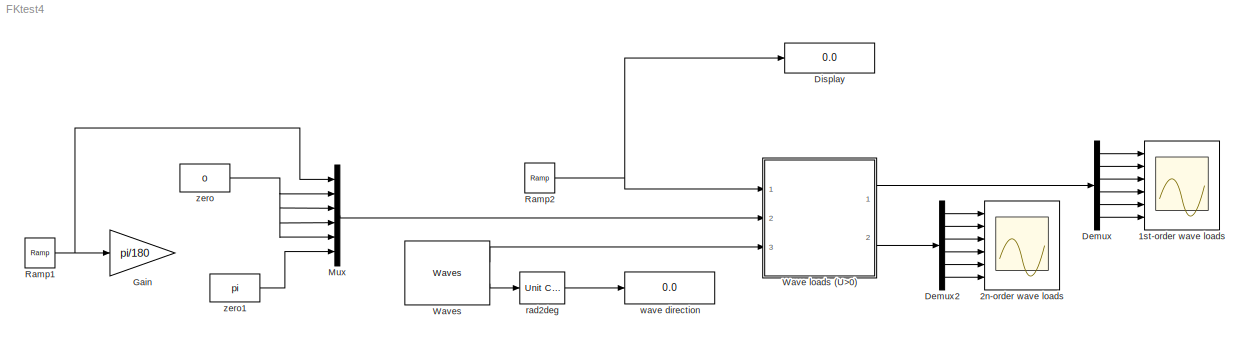
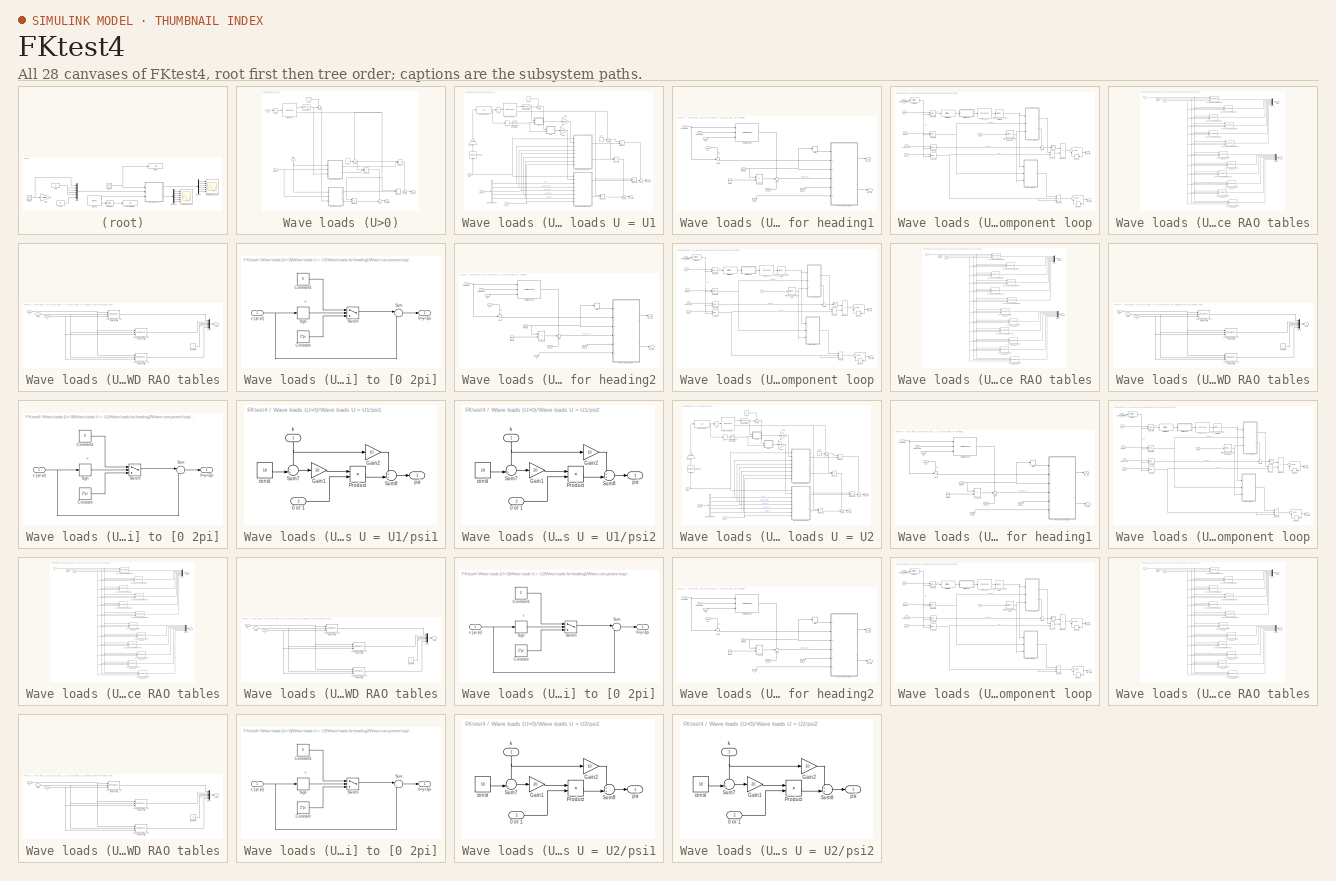
[diagram: thumbnail index - all 28 canvases of the model, root first then tree order]
MODEL FKtest4
KIND model
BLOCK [Scope] 1st-order wave loads 
  DataFormat = StructureWithTime
  Floating = off
  LimitDataPoints = off
  NumInputPorts = 6
  Ports = [6]
  SampleTime = 0
  TimeRange = 1200
  YMax = 5e+006~2.5e+007~7.5e+007~1e+008~1.25e+009~7e+008
  YMin = -5e+006~-2e+007~-7.5e+007~-1e+008~-1.25e+009~-7e+008
  ZoomMode = xonly
BLOCK [Scope] 2n-order wave loads
  DataFormat = StructureWithTime
  Floating = off
  LimitDataPoints = off
  NumInputPorts = 6
  Ports = [6]
  SampleTime = 0
  SaveName = ScopeData1
  TimeRange = 1200
  YMax = -10000~-450000~1~1~1~1.2e+007
  YMin = -65000~-515000~-1~-1~-1~5.5e+006
BLOCK [Demux] Demux
  Outputs = 6
  Ports = [1, 6]
BLOCK [Demux] Demux2
  Outputs = 6
  Ports = [1, 6]
BLOCK [Display] Display
  Decimation = 1
  Lockdown = off
  Ports = [1]
BLOCK [Gain] Gain
  Gain = pi/180
  OutDataTypeMode = Inherit via internal rule
  ParameterDataTypeMode = Inherit via internal rule
  SaturateOnIntegerOverflow = off
BLOCK [Mux] Mux
  DisplayOption = bar
  Inputs = 6
  Ports = [6, 1]
BLOCK [Reference] Ramp1  REF=simulink/Sources/Ramp
  FunctionWithSeparateData = off
  Ports = [0, 1]
  RTWMemSecDataConstants = Inherit from model
  RTWMemSecDataInternal = Inherit from model
  RTWMemSecDataParameters = Inherit from model
  RTWMemSecFuncExecute = Inherit from model
  RTWMemSecFuncInitTerm = Inherit from model
  ShowPortLabels = FromPortIcon
  SourceBlock = simulink/Sources/Ramp
  SourceType = Ramp
  SystemSampleTime = -1
  VectorParams1D = on
  X0 = 0
  slope = 1
  start = 0
BLOCK [Reference] Ramp2  REF=simulink/Sources/Ramp
  FunctionWithSeparateData = off
  Ports = [0, 1]
  RTWMemSecDataConstants = Inherit from model
  RTWMemSecDataInternal = Inherit from model
  RTWMemSecDataParameters = Inherit from model
  RTWMemSecFuncExecute = Inherit from model
  RTWMemSecFuncInitTerm = Inherit from model
  ShowPortLabels = FromPortIcon
  SourceBlock = simulink/Sources/Ramp
  SourceType = Ramp
  SystemSampleTime = -1
  VectorParams1D = on
  X0 = 0
  slope = 0.01
  start = 0
BLOCK [SubSystem] Wave loads (U>0)
  FunctionWithSeparateData = off
  MaskHideContents = off
  MinAlgLoopOccurrences = off
  Ports = [3, 2]
  RTWSystemCode = Auto
BLOCK [Abs] Wave loads (U>0)/Abs
BLOCK [DataTypeConversion] Wave loads (U>0)/Conversion
  OutDataTypeMode = double
  RndMeth = Floor
  SaturateOnIntegerOverflow = off
BLOCK [PreLookup] Wave loads (U>0)/Prelookup
  BeginIndexSearchUsingPreviousIndexResult = on
  BreakpointsData = vessel.velocities
  IndexSearchMethod = Linear search
  Ports = [1, 2]
BLOCK [Product] Wave loads (U>0)/Product
  CollapseMode = All dimensions
  InputSameDT = off
  OutDataTypeMode = Inherit via internal rule
  Ports = [2, 1]
  SaturateOnIntegerOverflow = off
BLOCK [Product] Wave loads (U>0)/Product1
  CollapseMode = All dimensions
  InputSameDT = off
  OutDataTypeMode = Inherit via internal rule
  Ports = [2, 1]
  SaturateOnIntegerOverflow = off
BLOCK [Product] Wave loads (U>0)/Product2
  CollapseMode = All dimensions
  InputSameDT = off
  OutDataTypeMode = Inherit via internal rule
  Ports = [2, 1]
  SaturateOnIntegerOverflow = off
BLOCK [Product] Wave loads (U>0)/Product3
  CollapseMode = All dimensions
  InputSameDT = off
  OutDataTypeMode = Inherit via internal rule
  Ports = [2, 1]
  SaturateOnIntegerOverflow = off
BLOCK [Sum] Wave loads (U>0)/Sum1
  CollapseMode = All dimensions
  IconShape = round
  InputSameDT = off
  Inputs = ++|
  OutDataTypeMode = Inherit via internal rule
  Ports = [2, 1]
  SaturateOnIntegerOverflow = off
BLOCK [Sum] Wave loads (U>0)/Sum2
  CollapseMode = All dimensions
  IconShape = round
  InputSameDT = off
  Inputs = ++|
  OutDataTypeMode = Inherit via internal rule
  Ports = [2, 1]
  SaturateOnIntegerOverflow = off
BLOCK [Sum] Wave loads (U>0)/Sum4
  CollapseMode = All dimensions
  IconShape = round
  InputSameDT = off
  Inputs = -+|
  OutDataTypeMode = Inherit via internal rule
  Ports = [2, 1]
  SaturateOnIntegerOverflow = off
BLOCK [Sum] Wave loads (U>0)/Sum5
  CollapseMode = All dimensions
  IconShape = round
  InputSameDT = off
  Inputs = ++|
  OutDataTypeMode = Inherit via internal rule
  Ports = [2, 1]
  SaturateOnIntegerOverflow = off
BLOCK [Inport] Wave loads (U>0)/U
  IconDisplay = Port number
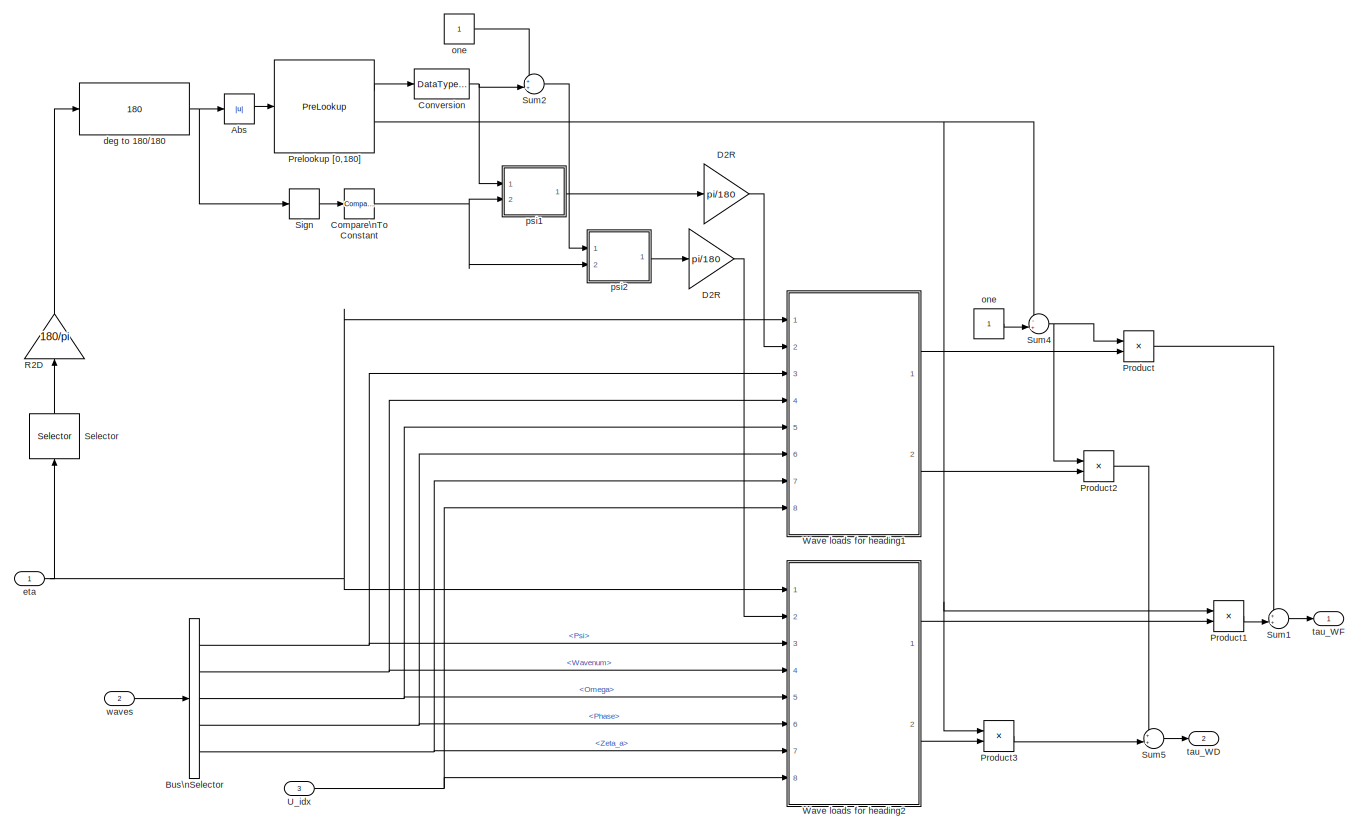
[diagram: Wave loads (U>0)/Wave loads U = U1 - part 1/1, most of the canvas]
BLOCK [SubSystem] Wave loads (U>0)/Wave loads U = U1
  FunctionWithSeparateData = off
  MaskHideContents = off
  MinAlgLoopOccurrences = off
  Ports = [3, 2]
  RTWSystemCode = Auto
BLOCK [Abs] Wave loads (U>0)/Wave loads U = U1/Abs
BLOCK [BusSelector] Wave loads (U>0)/Wave loads U = U1/Bus\nSelector
  OutputSignals = Psi,Wavenum,Omega,Phase,Zeta_a
  Ports = [1, 5]
BLOCK [Reference] Wave loads (U>0)/Wave loads U = U1/Compare\nTo Constant  REF=simulink/Logic and Bit\nOperations/Compare\nTo Constant
  FunctionWithSeparateData = off
  LogicOutDataTypeMode = uint8
  Ports = [1, 1]
  RTWMemSecDataConstants = Inherit from model
  RTWMemSecDataInternal = Inherit from model
  RTWMemSecDataParameters = Inherit from model
  RTWMemSecFuncExecute = Inherit from model
  RTWMemSecFuncInitTerm = Inherit from model
  ShowPortLabels = FromPortIcon
  SourceBlock = simulink/Logic and Bit\nOperations/Compare\nTo Constant
  SourceType = Compare To Constant
  SystemSampleTime = -1
  ZeroCross = off
  const = 0
  relop = <
BLOCK [DataTypeConversion] Wave loads (U>0)/Wave loads U = U1/Conversion
  OutDataTypeMode = double
  RndMeth = Floor
  SaturateOnIntegerOverflow = off
BLOCK [Gain] Wave loads (U>0)/Wave loads U = U1/D2R
  Gain = pi/180
  OutDataTypeMode = Inherit via internal rule
  ParameterDataTypeMode = Inherit via internal rule
  SaturateOnIntegerOverflow = off
BLOCK [Gain] Wave loads (U>0)/Wave loads U = U1/D2R 
  Gain = pi/180
  OutDataTypeMode = Inherit via internal rule
  ParameterDataTypeMode = Inherit via internal rule
  SaturateOnIntegerOverflow = off
BLOCK [PreLookup] Wave loads (U>0)/Wave loads U = U1/Prelookup [0,180]
  BeginIndexSearchUsingPreviousIndexResult = on
  BreakpointsData = [0:10:180]
  IndexSearchMethod = Evenly spaced points
  Ports = [1, 2]
BLOCK [Product] Wave loads (U>0)/Wave loads U = U1/Product
  CollapseMode = All dimensions
  InputSameDT = off
  OutDataTypeMode = Inherit via internal rule
  Ports = [2, 1]
  SaturateOnIntegerOverflow = off
BLOCK [Product] Wave loads (U>0)/Wave loads U = U1/Product1
  CollapseMode = All dimensions
  InputSameDT = off
  OutDataTypeMode = Inherit via internal rule
  Ports = [2, 1]
  SaturateOnIntegerOverflow = off
BLOCK [Product] Wave loads (U>0)/Wave loads U = U1/Product2
  CollapseMode = All dimensions
  InputSameDT = off
  OutDataTypeMode = Inherit via internal rule
  Ports = [2, 1]
  SaturateOnIntegerOverflow = off
BLOCK [Product] Wave loads (U>0)/Wave loads U = U1/Product3
  CollapseMode = All dimensions
  InputSameDT = off
  OutDataTypeMode = Inherit via internal rule
  Ports = [2, 1]
  SaturateOnIntegerOverflow = off
BLOCK [Gain] Wave loads (U>0)/Wave loads U = U1/R2D
  Gain = 180/pi
  OutDataTypeMode = Inherit via internal rule
  ParameterDataTypeMode = Inherit via internal rule
  SaturateOnIntegerOverflow = off
BLOCK [Selector] Wave loads (U>0)/Wave loads U = U1/Selector
  IndexOptions = Index vector (dialog)
  Indices = [6]
  InputPortWidth = 6
  OutputSizes = 1
  Ports = [1, 1]
BLOCK [Signum] Wave loads (U>0)/Wave loads U = U1/Sign
BLOCK [Sum] Wave loads (U>0)/Wave loads U = U1/Sum1
  CollapseMode = All dimensions
  IconShape = round
  InputSameDT = off
  Inputs = ++|
  OutDataTypeMode = Inherit via internal rule
  Ports = [2, 1]
  SaturateOnIntegerOverflow = off
BLOCK [Sum] Wave loads (U>0)/Wave loads U = U1/Sum2
  CollapseMode = All dimensions
  IconShape = round
  InputSameDT = off
  Inputs = ++|
  OutDataTypeMode = Inherit via internal rule
  Ports = [2, 1]
  SaturateOnIntegerOverflow = off
BLOCK [Sum] Wave loads (U>0)/Wave loads U = U1/Sum4
  CollapseMode = All dimensions
  IconShape = round
  InputSameDT = off
  Inputs = -+|
  OutDataTypeMode = Inherit via internal rule
  Ports = [2, 1]
  SaturateOnIntegerOverflow = off
BLOCK [Sum] Wave loads (U>0)/Wave loads U = U1/Sum5
  CollapseMode = All dimensions
  IconShape = round
  InputSameDT = off
  Inputs = ++|
  OutDataTypeMode = Inherit via internal rule
  Ports = [2, 1]
  SaturateOnIntegerOverflow = off
BLOCK [Inport] Wave loads (U>0)/Wave loads U = U1/U_idx
  IconDisplay = Port number
  Port = 3
BLOCK [SubSystem] Wave loads (U>0)/Wave loads U = U1/Wave loads for heading1
  AncestorBlock = marine_gnc/Models/Environmental\nLoads/Force RAO
  FunctionWithSeparateData = off
  MaskCallbackString = |||||||
  MaskDescription = Calculate the 6 degrees-of-freedom (DOF) wave-frequency excitation forces tau_WF for a vessel from its Force Response Amplitude Operators (Force RAOs) and a sea state defined by a set of harmonic waves. The block takes the \"Waves\" bus from the MSS Waves block as input, as well as the vessel low-frequency (LF) motion in terms of the generalized position vector eta and mean surge velocity U. See h...<+77ch>
  MaskEnableString = on,on,on,on,on,on,on,on
  MaskHelp = <b>Part of the Marine Systems Simulator: MSS</b><br>\n<br>\nCalculate the 6 degrees-of-freedom (DOF) wave-frequency excitation forces tau_WF \nfor a vessel from its Force Response Amplitude Operators (Force RAOs) and a sea \nstate defined by a set of harmonic waves. The block takes the &quot;Waves&quot; bus from \nthe MSS Waves block as input, as well as the vessel low-frequency (LF) motion in \nt...<+6973ch>
  MaskHideContents = off
  MaskIconFrame = on
  MaskIconOpaque = on
  MaskIconRotate = none
  MaskIconUnits = autoscale
  MaskInitialization = % use only nonzero increasing velocities, if zero element add eps\nNvel = length(RAO_Vel);\n\nif Nvel == 1\n    RAO_Vel = [0 1e10];   % use one data set for U=0 and one dummy set for u=1e10\n    Nvel = 2;\nend\n\nfor dof = 1:6\n    TempFA{dof}  = ForceRAO_Amp{dof}(:,:,1:Nvel);\n    TempFP{dof}  = ForceRAO_Phase{dof}(:,:,1:Nvel);\nend\n\nfor dof = 1:3\n    TempWA{dof}  = WD_Amp{dof}(:,:,1:Nvel);\ne...<+1426ch>  <repeated x4 — deduplicated; at blocks: Wave loads for heading1, Wave loads for heading2>
  MaskPromptString = Vector of frequencies ForceRAO_Freq (rad/s)|Vector of frequencies WD_Freq (rad/s)|Vector of velocities RAO_Vel (m/s)|6DOF Cell array with tables of Amplitudes ForceRAO_Amp|6DOF Cell array with tables of Phases ForceRAO_Phase (rad)|6DOF Cell array with tables of Amplitudes WD_Amp|Add asymptotic RAO values for omega = 0|Add asymptotic RAO values for omega = inf  <repeated x4 — deduplicated; at blocks: Wave loads for heading1, Wave loads for heading2>
  MaskStyleString = edit,edit,edit,edit,edit,edit,checkbox,checkbox
  MaskTabNameString = ,,,,,,,
  MaskToolTipString = on,on,on,on,on,on,on,on
  MaskTunableValueString = on,on,on,on,on,on,on,on
  MaskType = Force RAO
  MaskValueString = vessel.forceRAO.w|vessel.driftfrc.w|vessel.velocities|vessel.forceRAO.amp|vessel.forceRAO.phase|vessel.driftfrc.amp|on|on
  MaskVarAliasString = ,,,,,,,
  MaskVariables = ForceRAO_Freq=@1;WD_Freq=@2;RAO_Vel=@3;ForceRAO_Amp=@4;ForceRAO_Phase=@5;WD_Amp=@6;RAO_add_omega_0=@7;RAO_add_omega_inf=@8;
  MaskVisibilityString = on,on,on,on,on,on,on,on
  MinAlgLoopOccurrences = off
  Ports = [8, 2]
  RTWSystemCode = Auto
BLOCK [Clock] Wave loads (U>0)/Wave loads U = U1/Wave loads for heading1/Clock
  Decimation = 10
BLOCK [Inport] Wave loads (U>0)/Wave loads U = U1/Wave loads for heading1/Omega
  IconDisplay = Port number
  Port = 5
BLOCK [Inport] Wave loads (U>0)/Wave loads U = U1/Wave loads for heading1/Phase
  IconDisplay = Port number
  Port = 6
BLOCK [Reference] Wave loads (U>0)/Wave loads U = U1/Wave loads for heading1/Position phase  REF=marine_gnc/Models/Environmental\nLoads/Utilities/Position phase  (lib defined in mdl_10d96c221ba8, mdl_45f1105420c6)
  FunctionWithSeparateData = off
  Ports = [3, 1]
  RTWMemSecDataConstants = Inherit from model
  RTWMemSecDataInternal = Inherit from model
  RTWMemSecDataParameters = Inherit from model
  RTWMemSecFuncExecute = Inherit from model
  RTWMemSecFuncInitTerm = Inherit from model
  ShowPortLabels = FromPortIcon
  SourceBlock = marine_gnc/Models/Environmental\nLoads/Utilities/Position phase
  SourceType = Position Phase
  SystemSampleTime = -1
BLOCK [Product] Wave loads (U>0)/Wave loads U = U1/Wave loads for heading1/Product1
  CollapseMode = All dimensions
  InputSameDT = off
  Inputs = **
  Ports = [2, 1]
  RndMeth = Floor
BLOCK [Sum] Wave loads (U>0)/Wave loads U = U1/Wave loads for heading1/Sum
  CollapseMode = All dimensions
  IconShape = round
  InputSameDT = off
  Inputs = -++
  OutDataTypeMode = Inherit via internal rule
  Ports = [3, 1]
BLOCK [Sum] Wave loads (U>0)/Wave loads U = U1/Wave loads for heading1/Sum1
  CollapseMode = All dimensions
  IconShape = round
  InputSameDT = off
  Inputs = -+|
  OutDataTypeMode = Inherit via internal rule
  Ports = [2, 1]
  SaturateOnIntegerOverflow = off
BLOCK [Inport] Wave loads (U>0)/Wave loads U = U1/Wave loads for heading1/U_idx
  IconDisplay = Port number
  Port = 8
BLOCK [SubSystem] Wave loads (U>0)/Wave loads U = U1/Wave loads for heading1/Wave component loop
  FunctionWithSeparateData = off
  MaskHideContents = off
  MinAlgLoopOccurrences = off
  Ports = [6, 2]
  RTWSystemCode = Auto
  TreatAsAtomicUnit = on
BLOCK [Trigonometry] Wave loads (U>0)/Wave loads U = U1/Wave loads for heading1/Wave component loop/                
  Ports = [1, 1]
BLOCK [Reference] Wave loads (U>0)/Wave loads U = U1/Wave loads for heading1/Wave component loop/Direct Lookup\nTable (n-D) Beta  REF=simulink/Lookup\nTables/Direct Lookup\nTable (n-D)
  Ports = [1, 1]
  SourceBlock = simulink/Lookup\nTables/Direct Lookup\nTable (n-D)
  SourceType = LookupNDDirect
  clipFlag = Warning
  explicitNumDims = 1
  maskTabDims = 1
  mxTable = vessel.headings
  outDims = Element
  samptime = -1
  tabIsInput = off
BLOCK [Reference] Wave loads (U>0)/Wave loads U = U1/Wave loads for heading1/Wave component loop/Direct Lookup\nTable (n-D) Velocity  REF=simulink/Lookup\nTables/Direct Lookup\nTable (n-D)
  Ports = [1, 1]
  SourceBlock = simulink/Lookup\nTables/Direct Lookup\nTable (n-D)
  SourceType = LookupNDDirect
  clipFlag = Warning
  explicitNumDims = 1
  maskTabDims = 1
  mxTable = RAO_Vel
  outDims = Element
  samptime = -1
  tabIsInput = off
BLOCK [ForIterator] Wave loads (U>0)/Wave loads U = U1/Wave loads for heading1/Wave component loop/For Iterator
  IterationSource = external
  IterationVariableDataType = double
  Ports = [1, 1]
  ResetStates = reset
BLOCK [SubSystem] Wave loads (U>0)/Wave loads U = U1/Wave loads for heading1/Wave component loop/Force RAO tables
  AncestorBlock = marine_gnc/Models/Environmental\nLoads/Utilities/RAO tables
  FunctionWithSeparateData = off
  MaskDescription = Perform 3D table lookup in 6DOF RAO amplitudes and phases, using the relative wave heading psi_r, wave frequency omega and vessel velocity vel as inputs. See documentation of the Motion RAO block or Force RAO block for details. A warning is issued if the input is outside the range spanned by the RAOs.\n\nAuthor: Oyvind N. Smogeli and Thor I. Fossen, 2005-05-03  <repeated x4 — deduplicated; at blocks: Force RAO tables, WD RAO tables>
  MaskHideContents = off
  MaskIconFrame = on
  MaskIconOpaque = on
  MaskIconRotate = none
  MaskIconUnits = autoscale
  MaskType = RAO table lookup
  MinAlgLoopOccurrences = off
  Ports = [3, 2]
  RTWSystemCode = Auto
BLOCK [Reference] Wave loads (U>0)/Wave loads U = U1/Wave loads for heading1/Wave component loop/Force RAO tables/Lookup\nTable (n-D) Amp1  REF=simulink/Lookup\nTables/Lookup\nTable (n-D)
  Ports = [3, 1]
  SourceBlock = simulink/Lookup\nTables/Lookup\nTable (n-D)
  SourceType = LookupNDInterp
  bp1 = ForceRAO_Freq
  bp2 = vessel.headings
  bp3 = RAO_Vel
  bp4 = [1:3]
  bpcell = { [1:3], [1:3] }
  cacheBpFlag = on
  explicitNumDims = 2
  extrapMethod = None - Clip
  interpMethod = Linear
  numDimsPopupSelect = 3
  rangeErrorMode = Warning
  searchMode = Linear Search
  tableData = ForceRAO_Amp{1}
  vectorInputFlag = off
BLOCK [Reference] Wave loads (U>0)/Wave loads U = U1/Wave loads for heading1/Wave component loop/Force RAO tables/Lookup\nTable (n-D) Amp2  REF=simulink/Lookup\nTables/Lookup\nTable (n-D)
  Ports = [3, 1]
  SourceBlock = simulink/Lookup\nTables/Lookup\nTable (n-D)
  SourceType = LookupNDInterp
  bp1 = ForceRAO_Freq
  bp2 = vessel.headings
  bp3 = RAO_Vel
  bp4 = [1:3]
  bpcell = { [1:3], [1:3] }
  cacheBpFlag = on
  explicitNumDims = 2
  extrapMethod = None - Clip
  interpMethod = Linear
  numDimsPopupSelect = 3
  rangeErrorMode = Warning
  searchMode = Linear Search
  tableData = ForceRAO_Amp{2}
  vectorInputFlag = off
BLOCK [Reference] Wave loads (U>0)/Wave loads U = U1/Wave loads for heading1/Wave component loop/Force RAO tables/Lookup\nTable (n-D) Amp3  REF=simulink/Lookup\nTables/Lookup\nTable (n-D)
  Ports = [3, 1]
  SourceBlock = simulink/Lookup\nTables/Lookup\nTable (n-D)
  SourceType = LookupNDInterp
  bp1 = ForceRAO_Freq
  bp2 = vessel.headings
  bp3 = RAO_Vel
  bp4 = [1:3]
  bpcell = { [1:3], [1:3] }
  cacheBpFlag = on
  explicitNumDims = 2
  extrapMethod = None - Clip
  interpMethod = Linear
  numDimsPopupSelect = 3
  rangeErrorMode = Warning
  searchMode = Linear Search
  tableData = ForceRAO_Amp{3}
  vectorInputFlag = off
BLOCK [Reference] Wave loads (U>0)/Wave loads U = U1/Wave loads for heading1/Wave component loop/Force RAO tables/Lookup\nTable (n-D) Amp4  REF=simulink/Lookup\nTables/Lookup\nTable (n-D)
  Ports = [3, 1]
  SourceBlock = simulink/Lookup\nTables/Lookup\nTable (n-D)
  SourceType = LookupNDInterp
  bp1 = ForceRAO_Freq
  bp2 = vessel.headings
  bp3 = RAO_Vel
  bp4 = [1:3]
  bpcell = { [1:3], [1:3] }
  cacheBpFlag = on
  explicitNumDims = 2
  extrapMethod = None - Clip
  interpMethod = Linear
  numDimsPopupSelect = 3
  rangeErrorMode = Warning
  searchMode = Linear Search
  tableData = ForceRAO_Amp{4}
  vectorInputFlag = off
BLOCK [Reference] Wave loads (U>0)/Wave loads U = U1/Wave loads for heading1/Wave component loop/Force RAO tables/Lookup\nTable (n-D) Amp5  REF=simulink/Lookup\nTables/Lookup\nTable (n-D)
  Ports = [3, 1]
  SourceBlock = simulink/Lookup\nTables/Lookup\nTable (n-D)
  SourceType = LookupNDInterp
  bp1 = ForceRAO_Freq
  bp2 = vessel.headings
  bp3 = RAO_Vel
  bp4 = [1:3]
  bpcell = { [1:3], [1:3] }
  cacheBpFlag = on
  explicitNumDims = 2
  extrapMethod = None - Clip
  interpMethod = Linear
  numDimsPopupSelect = 3
  rangeErrorMode = Warning
  searchMode = Linear Search
  tableData = ForceRAO_Amp{5}
  vectorInputFlag = off
BLOCK [Reference] Wave loads (U>0)/Wave loads U = U1/Wave loads for heading1/Wave component loop/Force RAO tables/Lookup\nTable (n-D) Amp6  REF=simulink/Lookup\nTables/Lookup\nTable (n-D)
  Ports = [3, 1]
  SourceBlock = simulink/Lookup\nTables/Lookup\nTable (n-D)
  SourceType = LookupNDInterp
  bp1 = ForceRAO_Freq
  bp2 = vessel.headings
  bp3 = RAO_Vel
  bp4 = [1:3]
  bpcell = { [1:3], [1:3] }
  cacheBpFlag = on
  explicitNumDims = 2
  extrapMethod = None - Clip
  interpMethod = Linear
  numDimsPopupSelect = 3
  rangeErrorMode = Warning
  searchMode = Linear Search
  tableData = ForceRAO_Amp{6}
  vectorInputFlag = off
BLOCK [Reference] Wave loads (U>0)/Wave loads U = U1/Wave loads for heading1/Wave component loop/Force RAO tables/Lookup\nTable (n-D) Phase  REF=simulink/Lookup\nTables/Lookup\nTable (n-D)
  Ports = [3, 1]
  SourceBlock = simulink/Lookup\nTables/Lookup\nTable (n-D)
  SourceType = LookupNDInterp
  bp1 = ForceRAO_Freq
  bp2 = vessel.headings
  bp3 = RAO_Vel
  bp4 = [1:3]
  bpcell = { [1:3], [1:3] }
  cacheBpFlag = on
  explicitNumDims = 2
  extrapMethod = None - Clip
  interpMethod = Linear
  numDimsPopupSelect = 3
  rangeErrorMode = Warning
  searchMode = Linear Search
  tableData = ForceRAO_Phase{3}
  vectorInputFlag = off
BLOCK [Reference] Wave loads (U>0)/Wave loads U = U1/Wave loads for heading1/Wave component loop/Force RAO tables/Lookup\nTable (n-D) Phase1  REF=simulink/Lookup\nTables/Lookup\nTable (n-D)
  Ports = [3, 1]
  SourceBlock = simulink/Lookup\nTables/Lookup\nTable (n-D)
  SourceType = LookupNDInterp
  bp1 = ForceRAO_Freq
  bp2 = vessel.headings
  bp3 = RAO_Vel
  bp4 = [1:3]
  bpcell = { [1:3], [1:3] }
  cacheBpFlag = on
  explicitNumDims = 2
  extrapMethod = None - Clip
  interpMethod = Linear
  numDimsPopupSelect = 3
  rangeErrorMode = Warning
  searchMode = Linear Search
  tableData = ForceRAO_Phase{1}
  vectorInputFlag = off
BLOCK [Reference] Wave loads (U>0)/Wave loads U = U1/Wave loads for heading1/Wave component loop/Force RAO tables/Lookup\nTable (n-D) Phase2  REF=simulink/Lookup\nTables/Lookup\nTable (n-D)
  Ports = [3, 1]
  SourceBlock = simulink/Lookup\nTables/Lookup\nTable (n-D)
  SourceType = LookupNDInterp
  bp1 = ForceRAO_Freq
  bp2 = vessel.headings
  bp3 = RAO_Vel
  bp4 = [1:3]
  bpcell = { [1:3], [1:3] }
  cacheBpFlag = on
  explicitNumDims = 2
  extrapMethod = None - Clip
  interpMethod = Linear
  numDimsPopupSelect = 3
  rangeErrorMode = Warning
  searchMode = Linear Search
  tableData = ForceRAO_Phase{2}
  vectorInputFlag = off
BLOCK [Reference] Wave loads (U>0)/Wave loads U = U1/Wave loads for heading1/Wave component loop/Force RAO tables/Lookup\nTable (n-D) Phase4  REF=simulink/Lookup\nTables/Lookup\nTable (n-D)
  Ports = [3, 1]
  SourceBlock = simulink/Lookup\nTables/Lookup\nTable (n-D)
  SourceType = LookupNDInterp
  bp1 = ForceRAO_Freq
  bp2 = vessel.headings
  bp3 = RAO_Vel
  bp4 = [1:3]
  bpcell = { [1:3], [1:3] }
  cacheBpFlag = on
  explicitNumDims = 2
  extrapMethod = None - Clip
  interpMethod = Linear
  numDimsPopupSelect = 3
  rangeErrorMode = Warning
  searchMode = Linear Search
  tableData = ForceRAO_Phase{4}
  vectorInputFlag = off
BLOCK [Reference] Wave loads (U>0)/Wave loads U = U1/Wave loads for heading1/Wave component loop/Force RAO tables/Lookup\nTable (n-D) Phase5  REF=simulink/Lookup\nTables/Lookup\nTable (n-D)
  Ports = [3, 1]
  SourceBlock = simulink/Lookup\nTables/Lookup\nTable (n-D)
  SourceType = LookupNDInterp
  bp1 = ForceRAO_Freq
  bp2 = vessel.headings
  bp3 = RAO_Vel
  bp4 = [1:3]
  bpcell = { [1:3], [1:3] }
  cacheBpFlag = on
  explicitNumDims = 2
  extrapMethod = None - Clip
  interpMethod = Linear
  numDimsPopupSelect = 3
  rangeErrorMode = Warning
  searchMode = Linear Search
  tableData = ForceRAO_Phase{5}
  vectorInputFlag = off
BLOCK [Reference] Wave loads (U>0)/Wave loads U = U1/Wave loads for heading1/Wave component loop/Force RAO tables/Lookup\nTable (n-D) Phase6  REF=simulink/Lookup\nTables/Lookup\nTable (n-D)
  Ports = [3, 1]
  SourceBlock = simulink/Lookup\nTables/Lookup\nTable (n-D)
  SourceType = LookupNDInterp
  bp1 = ForceRAO_Freq
  bp2 = vessel.headings
  bp3 = RAO_Vel
  bp4 = [1:3]
  bpcell = { [1:3], [1:3] }
  cacheBpFlag = on
  explicitNumDims = 2
  extrapMethod = None - Clip
  interpMethod = Linear
  numDimsPopupSelect = 3
  rangeErrorMode = Warning
  searchMode = Linear Search
  tableData = ForceRAO_Phase{6}
  vectorInputFlag = off
BLOCK [Mux] Wave loads (U>0)/Wave loads U = U1/Wave loads for heading1/Wave component loop/Force RAO tables/Mux1
  DisplayOption = bar
  Inputs = 6
  Ports = [6, 1]
BLOCK [Mux] Wave loads (U>0)/Wave loads U = U1/Wave loads for heading1/Wave component loop/Force RAO tables/Mux2
  DisplayOption = bar
  Inputs = 6
  Ports = [6, 1]
BLOCK [Inport] Wave loads (U>0)/Wave loads U = U1/Wave loads for heading1/Wave component loop/Force RAO tables/U
  IconDisplay = Port number
  Port = 3
BLOCK [Outport] Wave loads (U>0)/Wave loads U = U1/Wave loads for heading1/Wave component loop/Force RAO tables/amp
  BusOutputAsStruct = off
  IconDisplay = Port number
BLOCK [Inport] Wave loads (U>0)/Wave loads U = U1/Wave loads for heading1/Wave component loop/Force RAO tables/beta
  IconDisplay = Port number
BLOCK [Outport] Wave loads (U>0)/Wave loads U = U1/Wave loads for heading1/Wave component loop/Force RAO tables/phase
  BusOutputAsStruct = off
  IconDisplay = Port number
  Port = 2
BLOCK [Inport] Wave loads (U>0)/Wave loads U = U1/Wave loads for heading1/Wave component loop/Force RAO tables/w
  IconDisplay = Port number
  Port = 2
BLOCK [Memory] Wave loads (U>0)/Wave loads U = U1/Wave loads for heading1/Wave component loop/Memory1
  InheritSampleTime = on
  X0 = [0 0 0 0 0 0]'
BLOCK [Memory] Wave loads (U>0)/Wave loads U = U1/Wave loads for heading1/Wave component loop/Memory2
  InheritSampleTime = on
  X0 = [0 0 0 0 0 0]'
BLOCK [Inport] Wave loads (U>0)/Wave loads U = U1/Wave loads for heading1/Wave component loop/Omega
  IconDisplay = Port number
  Port = 3
BLOCK [Inport] Wave loads (U>0)/Wave loads U = U1/Wave loads for heading1/Wave component loop/Phase_tot
  IconDisplay = Port number
  Port = 4
BLOCK [PreLookup] Wave loads (U>0)/Wave loads U = U1/Wave loads for heading1/Wave component loop/Prelookup1
  BeginIndexSearchUsingPreviousIndexResult = on
  BreakpointsData = vessel.headings
  IndexSearchMethod = Evenly spaced points
  OutputOnlyTheIndex = on
  Ports = [1, 1]
BLOCK [Product] Wave loads (U>0)/Wave loads U = U1/Wave loads for heading1/Wave component loop/Product1
  CollapseMode = All dimensions
  InputSameDT = off
  Ports = [2, 1]
  RndMeth = Floor
BLOCK [Product] Wave loads (U>0)/Wave loads U = U1/Wave loads for heading1/Wave component loop/Product3
  CollapseMode = All dimensions
  InputSameDT = off
  Inputs = 3
  Ports = [3, 1]
  RndMeth = Floor
BLOCK [Product] Wave loads (U>0)/Wave loads U = U1/Wave loads for heading1/Wave component loop/Product4
  CollapseMode = All dimensions
  InputSameDT = off
  Ports = [2, 1]
  RndMeth = Floor
BLOCK [Inport] Wave loads (U>0)/Wave loads U = U1/Wave loads for heading1/Wave component loop/Psi_r
  IconDisplay = Port number
  Port = 2
BLOCK [Selector] Wave loads (U>0)/Wave loads U = U1/Wave loads for heading1/Wave component loop/Selector2
  IndexOptions = Index vector (port)
  Indices = [1 3]
  OutputSizes = 1
  Ports = [2, 1]
BLOCK [Selector] Wave loads (U>0)/Wave loads U = U1/Wave loads for heading1/Wave component loop/Selector3
  IndexOptions = Index vector (port)
  Indices = [1 3]
  OutputSizes = 1
  Ports = [2, 1]
BLOCK [Selector] Wave loads (U>0)/Wave loads U = U1/Wave loads for heading1/Wave component loop/Selector4
  IndexOptions = Index vector (port)
  Indices = [1 3]
  OutputSizes = 1
  Ports = [2, 1]
BLOCK [Selector] Wave loads (U>0)/Wave loads U = U1/Wave loads for heading1/Wave component loop/Selector5
  IndexOptions = Index vector (port)
  Indices = [1 3]
  OutputSizes = 1
  Ports = [2, 1]
BLOCK [Sum] Wave loads (U>0)/Wave loads U = U1/Wave loads for heading1/Wave component loop/Sum1
  CollapseMode = All dimensions
  IconShape = round
  InputSameDT = off
  Inputs = ++|
  OutDataTypeMode = Inherit via internal rule
  Ports = [2, 1]
BLOCK [Sum] Wave loads (U>0)/Wave loads U = U1/Wave loads for heading1/Wave component loop/Sum4
  CollapseMode = All dimensions
  IconShape = round
  InputSameDT = off
  Inputs = ++|
  OutDataTypeMode = Inherit via internal rule
  Ports = [2, 1]
BLOCK [Sum] Wave loads (U>0)/Wave loads U = U1/Wave loads for heading1/Wave component loop/Sum5
  CollapseMode = All dimensions
  IconShape = round
  InputSameDT = off
  Inputs = ++|
  OutDataTypeMode = Inherit via internal rule
  Ports = [2, 1]
BLOCK [Inport] Wave loads (U>0)/Wave loads U = U1/Wave loads for heading1/Wave component loop/U_idx
  IconDisplay = Port number
  Port = 6
BLOCK [SubSystem] Wave loads (U>0)/Wave loads U = U1/Wave loads for heading1/Wave component loop/WD RAO tables
  AncestorBlock = marine_gnc/Models/Environmental\nLoads/Utilities/RAO tables
  FunctionWithSeparateData = off
  MaskHideContents = off
  MaskIconFrame = on
  MaskIconOpaque = on
  MaskIconRotate = none
  MaskIconUnits = autoscale
  MaskType = RAO table lookup
  MinAlgLoopOccurrences = off
  Ports = [3, 1]
  RTWSystemCode = Auto
BLOCK [Constant] Wave loads (U>0)/Wave loads U = U1/Wave loads for heading1/Wave component loop/WD RAO tables/Constant
  Value = 0
BLOCK [Reference] Wave loads (U>0)/Wave loads U = U1/Wave loads for heading1/Wave component loop/WD RAO tables/Lookup\nTable (n-D) \nWavedrift 1  REF=simulink/Lookup\nTables/Lookup\nTable (n-D)
  Ports = [3, 1]
  SourceBlock = simulink/Lookup\nTables/Lookup\nTable (n-D)
  SourceType = LookupNDInterp
  bp1 = WD_Freq
  bp2 = vessel.headings
  bp3 = RAO_Vel
  bp4 = [1:3]
  bpcell = { [1:3], [1:3] }
  cacheBpFlag = on
  explicitNumDims = 2
  extrapMethod = None - Clip
  interpMethod = Linear
  numDimsPopupSelect = 3
  rangeErrorMode = Warning
  searchMode = Linear Search
  tableData = WD_Amp{1}
  vectorInputFlag = off
BLOCK [Reference] Wave loads (U>0)/Wave loads U = U1/Wave loads for heading1/Wave component loop/WD RAO tables/Lookup\nTable (n-D) \nWavedrift 2  REF=simulink/Lookup\nTables/Lookup\nTable (n-D)
  Ports = [3, 1]
  SourceBlock = simulink/Lookup\nTables/Lookup\nTable (n-D)
  SourceType = LookupNDInterp
  bp1 = WD_Freq
  bp2 = vessel.headings
  bp3 = RAO_Vel
  bp4 = [1:3]
  bpcell = { [1:3], [1:3] }
  cacheBpFlag = on
  explicitNumDims = 2
  extrapMethod = None - Clip
  interpMethod = Linear
  numDimsPopupSelect = 3
  rangeErrorMode = Warning
  searchMode = Linear Search
  tableData = WD_Amp{2}
  vectorInputFlag = off
BLOCK [Reference] Wave loads (U>0)/Wave loads U = U1/Wave loads for heading1/Wave component loop/WD RAO tables/Lookup\nTable (n-D) \nWavedrift 3  REF=simulink/Lookup\nTables/Lookup\nTable (n-D)
  Ports = [3, 1]
  SourceBlock = simulink/Lookup\nTables/Lookup\nTable (n-D)
  SourceType = LookupNDInterp
  bp1 = WD_Freq
  bp2 = vessel.headings
  bp3 = RAO_Vel
  bp4 = [1:3]
  bpcell = { [1:3], [1:3] }
  cacheBpFlag = on
  explicitNumDims = 2
  extrapMethod = None - Clip
  interpMethod = Linear
  numDimsPopupSelect = 3
  rangeErrorMode = Warning
  searchMode = Linear Search
  tableData = WD_Amp{3}
  vectorInputFlag = off
BLOCK [Mux] Wave loads (U>0)/Wave loads U = U1/Wave loads for heading1/Wave component loop/WD RAO tables/Mux1
  DisplayOption = bar
  Inputs = 6
  Ports = [6, 1]
BLOCK [Inport] Wave loads (U>0)/Wave loads U = U1/Wave loads for heading1/Wave component loop/WD RAO tables/U
  IconDisplay = Port number
  Port = 3
BLOCK [Outport] Wave loads (U>0)/Wave loads U = U1/Wave loads for heading1/Wave component loop/WD RAO tables/amp
  BusOutputAsStruct = off
  IconDisplay = Port number
BLOCK [Inport] Wave loads (U>0)/Wave loads U = U1/Wave loads for heading1/Wave component loop/WD RAO tables/beta
  IconDisplay = Port number
BLOCK [Inport] Wave loads (U>0)/Wave loads U = U1/Wave loads for heading1/Wave component loop/WD RAO tables/w
  IconDisplay = Port number
  Port = 2
BLOCK [Inport] Wave loads (U>0)/Wave loads U = U1/Wave loads for heading1/Wave component loop/Zeta_a
  IconDisplay = Port number
  Port = 5
BLOCK [Reference] Wave loads (U>0)/Wave loads U = U1/Wave loads for heading1/Wave component loop/[-inf inf] to [-pi pi]  REF=marine_gnc/Utilities/Math Operations/[-inf inf] to [-pi pi]  (lib defined in mdl_10d96c221ba8, mdl_45f1105420c6)
  FunctionWithSeparateData = off
  Ports = [1, 1]
  RTWMemSecDataConstants = Inherit from model
  RTWMemSecDataInternal = Inherit from model
  RTWMemSecDataParameters = Inherit from model
  RTWMemSecFuncExecute = Inherit from model
  RTWMemSecFuncInitTerm = Inherit from model
  ShowPortLabels = FromPortIcon
  SourceBlock = marine_gnc/Utilities/Math Operations/[-inf inf] to [-pi pi]
  SourceType = [-inf inf] to [-pi pi]
  SystemSampleTime = -1
BLOCK [SubSystem] Wave loads (U>0)/Wave loads U = U1/Wave loads for heading1/Wave component loop/[-pi pi] to [0 2pi]
  FunctionWithSeparateData = off
  MaskDescription = Converts an angle in rad to (-pi pi)
  MaskHideContents = off
  MaskIconFrame = on
  MaskIconOpaque = on
  MaskIconRotate = none
  MaskIconUnits = autoscale
  MaskType = [-inf inf] to [-pi pi]
  MinAlgLoopOccurrences = off
  Ports = [1, 1]
  RTWSystemCode = Auto
BLOCK [Outport] Wave loads (U>0)/Wave loads U = U1/Wave loads for heading1/Wave component loop/[-pi pi] to [0 2pi]/0<y<2pi
  BusOutputAsStruct = off
  IconDisplay = Port number
BLOCK [Constant] Wave loads (U>0)/Wave loads U = U1/Wave loads for heading1/Wave component loop/[-pi pi] to [0 2pi]/Constant
  Value = 2*pi
BLOCK [Constant] Wave loads (U>0)/Wave loads U = U1/Wave loads for heading1/Wave component loop/[-pi pi] to [0 2pi]/Constant1
  Value = 0
BLOCK [Signum] Wave loads (U>0)/Wave loads U = U1/Wave loads for heading1/Wave component loop/[-pi pi] to [0 2pi]/Sign
BLOCK [Sum] Wave loads (U>0)/Wave loads U = U1/Wave loads for heading1/Wave component loop/[-pi pi] to [0 2pi]/Sum
  CollapseMode = All dimensions
  IconShape = round
  InputSameDT = off
  Inputs = |++
  OutDataTypeMode = Inherit via internal rule
  Ports = [2, 1]
BLOCK [Switch] Wave loads (U>0)/Wave loads U = U1/Wave loads for heading1/Wave component loop/[-pi pi] to [0 2pi]/Switch
  InputSameDT = off
  SaturateOnIntegerOverflow = off
BLOCK [Inport] Wave loads (U>0)/Wave loads U = U1/Wave loads for heading1/Wave component loop/[-pi pi] to [0 2pi]/x [-pi pi]
  IconDisplay = Port number
BLOCK [Inport] Wave loads (U>0)/Wave loads U = U1/Wave loads for heading1/Wave component loop/number of \niterations
  IconDisplay = Port number
BLOCK [Outport] Wave loads (U>0)/Wave loads U = U1/Wave loads for heading1/Wave component loop/tau_WD
  BusOutputAsStruct = off
  IconDisplay = Port number
  Port = 2
BLOCK [Outport] Wave loads (U>0)/Wave loads U = U1/Wave loads for heading1/Wave component loop/tau_WF
  BusOutputAsStruct = off
  IconDisplay = Port number
BLOCK [Width] Wave loads (U>0)/Wave loads U = U1/Wave loads for heading1/Width
  DataType = int32
BLOCK [Inport] Wave loads (U>0)/Wave loads U = U1/Wave loads for heading1/Zeta_a
  IconDisplay = Port number
  Port = 7
BLOCK [Inport] Wave loads (U>0)/Wave loads U = U1/Wave loads for heading1/eta
  IconDisplay = Port number
BLOCK [Inport] Wave loads (U>0)/Wave loads U = U1/Wave loads for heading1/psi
  IconDisplay = Port number
  Port = 2
BLOCK [Inport] Wave loads (U>0)/Wave loads U = U1/Wave loads for heading1/psi_wave
  IconDisplay = Port number
  Port = 3
BLOCK [Outport] Wave loads (U>0)/Wave loads U = U1/Wave loads for heading1/tau_WD
  BusOutputAsStruct = off
  IconDisplay = Port number
  Port = 2
BLOCK [Outport] Wave loads (U>0)/Wave loads U = U1/Wave loads for heading1/tau_WF
  BusOutputAsStruct = off
  IconDisplay = Port number
BLOCK [Inport] Wave loads (U>0)/Wave loads U = U1/Wave loads for heading1/wavenum
  IconDisplay = Port number
  Port = 4
BLOCK [SubSystem] Wave loads (U>0)/Wave loads U = U1/Wave loads for heading2
  AncestorBlock = marine_gnc/Models/Environmental\nLoads/Force RAO
  FunctionWithSeparateData = off
  MaskCallbackString = |||||||
  MaskDescription = Calculate the 6 degrees-of-freedom (DOF) wave-frequency excitation forces Tau_WF for a vessel from its Force Response Amplitude Operators (Force RAOs) and a sea state defined by a set of harmonic waves. The block takes the \"Waves\" bus from the MSS Waves block as input, as well as the vessel low-frequency (LF) motion in terms of the generalized position vector eta_LF and mean surge velocity U. Se...<+85ch>
  MaskEnableString = on,on,on,on,on,on,on,on
  MaskHelp = <b>Part of the Marine Systems Simulator: MSS</b><br>\n<br>\nCalculate the 6 degrees-of-freedom (DOF) wave-frequency excitation forces Tau_WF \nfor a vessel from its Force Response Amplitude Operators (Force RAOs) and a sea \nstate defined by a set of harmonic waves. The block takes the &quot;Waves&quot; bus from \nthe MSS Waves block as input, as well as the vessel low-frequency (LF) motion in \nt...<+6976ch>
  MaskHideContents = off
  MaskIconFrame = on
  MaskIconOpaque = on
  MaskIconRotate = none
  MaskIconUnits = autoscale
  MaskStyleString = edit,edit,edit,edit,edit,edit,checkbox,checkbox
  MaskTabNameString = ,,,,,,,
  MaskToolTipString = on,on,on,on,on,on,on,on
  MaskTunableValueString = on,on,on,on,on,on,on,on
  MaskType = Force RAO
  MaskValueString = vessel.forceRAO.w|vessel.driftfrc.w|vessel.velocities|vessel.forceRAO.amp|vessel.forceRAO.phase|vessel.driftfrc.amp|on|on
  MaskVarAliasString = ,,,,,,,
  MaskVariables = ForceRAO_Freq=@1;WD_Freq=@2;RAO_Vel=@3;ForceRAO_Amp=@4;ForceRAO_Phase=@5;WD_Amp=@6;RAO_add_omega_0=@7;RAO_add_omega_inf=@8;
  MaskVisibilityString = on,on,on,on,on,on,on,on
  MinAlgLoopOccurrences = off
  Ports = [8, 2]
  RTWSystemCode = Auto
BLOCK [Clock] Wave loads (U>0)/Wave loads U = U1/Wave loads for heading2/Clock
  Decimation = 10
BLOCK [Inport] Wave loads (U>0)/Wave loads U = U1/Wave loads for heading2/Omega
  IconDisplay = Port number
  Port = 5
BLOCK [Inport] Wave loads (U>0)/Wave loads U = U1/Wave loads for heading2/Phase
  IconDisplay = Port number
  Port = 6
BLOCK [Reference] Wave loads (U>0)/Wave loads U = U1/Wave loads for heading2/Position phase  REF=marine_gnc/Models/Environmental\nLoads/Utilities/Position phase  (lib defined in mdl_10d96c221ba8, mdl_45f1105420c6)
  FunctionWithSeparateData = off
  Ports = [3, 1]
  RTWMemSecDataConstants = Inherit from model
  RTWMemSecDataInternal = Inherit from model
  RTWMemSecDataParameters = Inherit from model
  RTWMemSecFuncExecute = Inherit from model
  RTWMemSecFuncInitTerm = Inherit from model
  ShowPortLabels = FromPortIcon
  SourceBlock = marine_gnc/Models/Environmental\nLoads/Utilities/Position phase
  SourceType = Position Phase
  SystemSampleTime = -1
BLOCK [Product] Wave loads (U>0)/Wave loads U = U1/Wave loads for heading2/Product1
  CollapseMode = All dimensions
  InputSameDT = off
  Inputs = **
  Ports = [2, 1]
  RndMeth = Floor
BLOCK [Sum] Wave loads (U>0)/Wave loads U = U1/Wave loads for heading2/Sum
  CollapseMode = All dimensions
  IconShape = round
  InputSameDT = off
  Inputs = -++
  OutDataTypeMode = Inherit via internal rule
  Ports = [3, 1]
BLOCK [Sum] Wave loads (U>0)/Wave loads U = U1/Wave loads for heading2/Sum1
  CollapseMode = All dimensions
  IconShape = round
  InputSameDT = off
  Inputs = -+|
  OutDataTypeMode = Inherit via internal rule
  Ports = [2, 1]
  SaturateOnIntegerOverflow = off
BLOCK [Inport] Wave loads (U>0)/Wave loads U = U1/Wave loads for heading2/U
  IconDisplay = Port number
  Port = 8
BLOCK [SubSystem] Wave loads (U>0)/Wave loads U = U1/Wave loads for heading2/Wave component loop
  FunctionWithSeparateData = off
  MaskHideContents = off
  MinAlgLoopOccurrences = off
  Ports = [6, 2]
  RTWSystemCode = Auto
  TreatAsAtomicUnit = on
BLOCK [Trigonometry] Wave loads (U>0)/Wave loads U = U1/Wave loads for heading2/Wave component loop/                
  Ports = [1, 1]
BLOCK [Reference] Wave loads (U>0)/Wave loads U = U1/Wave loads for heading2/Wave component loop/Direct Lookup\nTable (n-D)  REF=simulink/Lookup\nTables/Direct Lookup\nTable (n-D)
  Ports = [1, 1]
  SourceBlock = simulink/Lookup\nTables/Direct Lookup\nTable (n-D)
  SourceType = LookupNDDirect
  clipFlag = Warning
  explicitNumDims = 1
  maskTabDims = 1
  mxTable = vessel.headings
  outDims = Element
  samptime = -1
  tabIsInput = off
BLOCK [Reference] Wave loads (U>0)/Wave loads U = U1/Wave loads for heading2/Wave component loop/Direct Lookup\nTable (n-D)1  REF=simulink/Lookup\nTables/Direct Lookup\nTable (n-D)
  Ports = [1, 1]
  SourceBlock = simulink/Lookup\nTables/Direct Lookup\nTable (n-D)
  SourceType = LookupNDDirect
  clipFlag = Warning
  explicitNumDims = 1
  maskTabDims = 1
  mxTable = RAO_Vel
  outDims = Element
  samptime = -1
  tabIsInput = off
BLOCK [ForIterator] Wave loads (U>0)/Wave loads U = U1/Wave loads for heading2/Wave component loop/For Iterator
  IterationSource = external
  IterationVariableDataType = double
  Ports = [1, 1]
  ResetStates = reset
BLOCK [SubSystem] Wave loads (U>0)/Wave loads U = U1/Wave loads for heading2/Wave component loop/Force RAO tables
  AncestorBlock = marine_gnc/Models/Environmental\nLoads/Utilities/RAO tables
  FunctionWithSeparateData = off
  MaskDescription = Perform 3D table lookup in 6DOF RAO amplitudes and phases, using the relative wave heading psi_r, wave frequency omega and vessel velocity vel as inputs. See documentation of the Motion RAO block or Force RAO block for details. A warning is issued if the input is outside the range spanned by the RAOs.\n\nCopyright (C) NTNU 2005\n\nAuthor: Oyvind N. Smogeli, 2005-05-03  <repeated x4 — deduplicated; at blocks: Force RAO tables, WD RAO tables>
  MaskHideContents = off
  MaskIconFrame = on
  MaskIconOpaque = on
  MaskIconRotate = none
  MaskIconUnits = autoscale
  MaskType = RAO table lookup
  MinAlgLoopOccurrences = off
  Ports = [3, 2]
  RTWSystemCode = Auto
BLOCK [Reference] Wave loads (U>0)/Wave loads U = U1/Wave loads for heading2/Wave component loop/Force RAO tables/Lookup\nTable (n-D) Amp1  REF=simulink/Lookup\nTables/Lookup\nTable (n-D)
  Ports = [3, 1]
  SourceBlock = simulink/Lookup\nTables/Lookup\nTable (n-D)
  SourceType = LookupNDInterp
  bp1 = ForceRAO_Freq
  bp2 = vessel.headings
  bp3 = RAO_Vel
  bp4 = [1:3]
  bpcell = { [1:3], [1:3] }
  cacheBpFlag = on
  explicitNumDims = 2
  extrapMethod = None - Clip
  interpMethod = Linear
  numDimsPopupSelect = 3
  rangeErrorMode = Warning
  searchMode = Linear Search
  tableData = ForceRAO_Amp{1}
  vectorInputFlag = off
BLOCK [Reference] Wave loads (U>0)/Wave loads U = U1/Wave loads for heading2/Wave component loop/Force RAO tables/Lookup\nTable (n-D) Amp2  REF=simulink/Lookup\nTables/Lookup\nTable (n-D)
  Ports = [3, 1]
  SourceBlock = simulink/Lookup\nTables/Lookup\nTable (n-D)
  SourceType = LookupNDInterp
  bp1 = ForceRAO_Freq
  bp2 = vessel.headings
  bp3 = RAO_Vel
  bp4 = [1:3]
  bpcell = { [1:3], [1:3] }
  cacheBpFlag = on
  explicitNumDims = 2
  extrapMethod = None - Clip
  interpMethod = Linear
  numDimsPopupSelect = 3
  rangeErrorMode = Warning
  searchMode = Linear Search
  tableData = ForceRAO_Amp{2}
  vectorInputFlag = off
BLOCK [Reference] Wave loads (U>0)/Wave loads U = U1/Wave loads for heading2/Wave component loop/Force RAO tables/Lookup\nTable (n-D) Amp3  REF=simulink/Lookup\nTables/Lookup\nTable (n-D)
  Ports = [3, 1]
  SourceBlock = simulink/Lookup\nTables/Lookup\nTable (n-D)
  SourceType = LookupNDInterp
  bp1 = ForceRAO_Freq
  bp2 = vessel.headings
  bp3 = RAO_Vel
  bp4 = [1:3]
  bpcell = { [1:3], [1:3] }
  cacheBpFlag = on
  explicitNumDims = 2
  extrapMethod = None - Clip
  interpMethod = Linear
  numDimsPopupSelect = 3
  rangeErrorMode = Warning
  searchMode = Linear Search
  tableData = ForceRAO_Amp{3}
  vectorInputFlag = off
BLOCK [Reference] Wave loads (U>0)/Wave loads U = U1/Wave loads for heading2/Wave component loop/Force RAO tables/Lookup\nTable (n-D) Amp4  REF=simulink/Lookup\nTables/Lookup\nTable (n-D)
  Ports = [3, 1]
  SourceBlock = simulink/Lookup\nTables/Lookup\nTable (n-D)
  SourceType = LookupNDInterp
  bp1 = ForceRAO_Freq
  bp2 = vessel.headings
  bp3 = RAO_Vel
  bp4 = [1:3]
  bpcell = { [1:3], [1:3] }
  cacheBpFlag = on
  explicitNumDims = 2
  extrapMethod = None - Clip
  interpMethod = Linear
  numDimsPopupSelect = 3
  rangeErrorMode = Warning
  searchMode = Linear Search
  tableData = ForceRAO_Amp{4}
  vectorInputFlag = off
BLOCK [Reference] Wave loads (U>0)/Wave loads U = U1/Wave loads for heading2/Wave component loop/Force RAO tables/Lookup\nTable (n-D) Amp5  REF=simulink/Lookup\nTables/Lookup\nTable (n-D)
  Ports = [3, 1]
  SourceBlock = simulink/Lookup\nTables/Lookup\nTable (n-D)
  SourceType = LookupNDInterp
  bp1 = ForceRAO_Freq
  bp2 = vessel.headings
  bp3 = RAO_Vel
  bp4 = [1:3]
  bpcell = { [1:3], [1:3] }
  cacheBpFlag = on
  explicitNumDims = 2
  extrapMethod = None - Clip
  interpMethod = Linear
  numDimsPopupSelect = 3
  rangeErrorMode = Warning
  searchMode = Linear Search
  tableData = ForceRAO_Amp{5}
  vectorInputFlag = off
BLOCK [Reference] Wave loads (U>0)/Wave loads U = U1/Wave loads for heading2/Wave component loop/Force RAO tables/Lookup\nTable (n-D) Amp6  REF=simulink/Lookup\nTables/Lookup\nTable (n-D)
  Ports = [3, 1]
  SourceBlock = simulink/Lookup\nTables/Lookup\nTable (n-D)
  SourceType = LookupNDInterp
  bp1 = ForceRAO_Freq
  bp2 = vessel.headings
  bp3 = RAO_Vel
  bp4 = [1:3]
  bpcell = { [1:3], [1:3] }
  cacheBpFlag = on
  explicitNumDims = 2
  extrapMethod = None - Clip
  interpMethod = Linear
  numDimsPopupSelect = 3
  rangeErrorMode = Warning
  searchMode = Linear Search
  tableData = ForceRAO_Amp{6}
  vectorInputFlag = off
BLOCK [Reference] Wave loads (U>0)/Wave loads U = U1/Wave loads for heading2/Wave component loop/Force RAO tables/Lookup\nTable (n-D) Phase  REF=simulink/Lookup\nTables/Lookup\nTable (n-D)
  Ports = [3, 1]
  SourceBlock = simulink/Lookup\nTables/Lookup\nTable (n-D)
  SourceType = LookupNDInterp
  bp1 = ForceRAO_Freq
  bp2 = vessel.headings
  bp3 = RAO_Vel
  bp4 = [1:3]
  bpcell = { [1:3], [1:3] }
  cacheBpFlag = on
  explicitNumDims = 2
  extrapMethod = None - Clip
  interpMethod = Linear
  numDimsPopupSelect = 3
  rangeErrorMode = Warning
  searchMode = Linear Search
  tableData = ForceRAO_Phase{3}
  vectorInputFlag = off
BLOCK [Reference] Wave loads (U>0)/Wave loads U = U1/Wave loads for heading2/Wave component loop/Force RAO tables/Lookup\nTable (n-D) Phase1  REF=simulink/Lookup\nTables/Lookup\nTable (n-D)
  Ports = [3, 1]
  SourceBlock = simulink/Lookup\nTables/Lookup\nTable (n-D)
  SourceType = LookupNDInterp
  bp1 = ForceRAO_Freq
  bp2 = vessel.headings
  bp3 = RAO_Vel
  bp4 = [1:3]
  bpcell = { [1:3], [1:3] }
  cacheBpFlag = on
  explicitNumDims = 2
  extrapMethod = None - Clip
  interpMethod = Linear
  numDimsPopupSelect = 3
  rangeErrorMode = Warning
  searchMode = Linear Search
  tableData = ForceRAO_Phase{1}
  vectorInputFlag = off
BLOCK [Reference] Wave loads (U>0)/Wave loads U = U1/Wave loads for heading2/Wave component loop/Force RAO tables/Lookup\nTable (n-D) Phase2  REF=simulink/Lookup\nTables/Lookup\nTable (n-D)
  Ports = [3, 1]
  SourceBlock = simulink/Lookup\nTables/Lookup\nTable (n-D)
  SourceType = LookupNDInterp
  bp1 = ForceRAO_Freq
  bp2 = vessel.headings
  bp3 = RAO_Vel
  bp4 = [1:3]
  bpcell = { [1:3], [1:3] }
  cacheBpFlag = on
  explicitNumDims = 2
  extrapMethod = None - Clip
  interpMethod = Linear
  numDimsPopupSelect = 3
  rangeErrorMode = Warning
  searchMode = Linear Search
  tableData = ForceRAO_Phase{2}
  vectorInputFlag = off
BLOCK [Reference] Wave loads (U>0)/Wave loads U = U1/Wave loads for heading2/Wave component loop/Force RAO tables/Lookup\nTable (n-D) Phase4  REF=simulink/Lookup\nTables/Lookup\nTable (n-D)
  Ports = [3, 1]
  SourceBlock = simulink/Lookup\nTables/Lookup\nTable (n-D)
  SourceType = LookupNDInterp
  bp1 = ForceRAO_Freq
  bp2 = vessel.headings
  bp3 = RAO_Vel
  bp4 = [1:3]
  bpcell = { [1:3], [1:3] }
  cacheBpFlag = on
  explicitNumDims = 2
  extrapMethod = None - Clip
  interpMethod = Linear
  numDimsPopupSelect = 3
  rangeErrorMode = Warning
  searchMode = Linear Search
  tableData = ForceRAO_Phase{4}
  vectorInputFlag = off
BLOCK [Reference] Wave loads (U>0)/Wave loads U = U1/Wave loads for heading2/Wave component loop/Force RAO tables/Lookup\nTable (n-D) Phase5  REF=simulink/Lookup\nTables/Lookup\nTable (n-D)
  Ports = [3, 1]
  SourceBlock = simulink/Lookup\nTables/Lookup\nTable (n-D)
  SourceType = LookupNDInterp
  bp1 = ForceRAO_Freq
  bp2 = vessel.headings
  bp3 = RAO_Vel
  bp4 = [1:3]
  bpcell = { [1:3], [1:3] }
  cacheBpFlag = on
  explicitNumDims = 2
  extrapMethod = None - Clip
  interpMethod = Linear
  numDimsPopupSelect = 3
  rangeErrorMode = Warning
  searchMode = Linear Search
  tableData = ForceRAO_Phase{5}
  vectorInputFlag = off
BLOCK [Reference] Wave loads (U>0)/Wave loads U = U1/Wave loads for heading2/Wave component loop/Force RAO tables/Lookup\nTable (n-D) Phase6  REF=simulink/Lookup\nTables/Lookup\nTable (n-D)
  Ports = [3, 1]
  SourceBlock = simulink/Lookup\nTables/Lookup\nTable (n-D)
  SourceType = LookupNDInterp
  bp1 = ForceRAO_Freq
  bp2 = vessel.headings
  bp3 = RAO_Vel
  bp4 = [1:3]
  bpcell = { [1:3], [1:3] }
  cacheBpFlag = on
  explicitNumDims = 2
  extrapMethod = None - Clip
  interpMethod = Linear
  numDimsPopupSelect = 3
  rangeErrorMode = Warning
  searchMode = Linear Search
  tableData = ForceRAO_Phase{6}
  vectorInputFlag = off
BLOCK [Mux] Wave loads (U>0)/Wave loads U = U1/Wave loads for heading2/Wave component loop/Force RAO tables/Mux1
  DisplayOption = bar
  Inputs = 6
  Ports = [6, 1]
BLOCK [Mux] Wave loads (U>0)/Wave loads U = U1/Wave loads for heading2/Wave component loop/Force RAO tables/Mux2
  DisplayOption = bar
  Inputs = 6
  Ports = [6, 1]
BLOCK [Inport] Wave loads (U>0)/Wave loads U = U1/Wave loads for heading2/Wave component loop/Force RAO tables/U
  IconDisplay = Port number
  Port = 3
BLOCK [Outport] Wave loads (U>0)/Wave loads U = U1/Wave loads for heading2/Wave component loop/Force RAO tables/amp
  BusOutputAsStruct = off
  IconDisplay = Port number
BLOCK [Inport] Wave loads (U>0)/Wave loads U = U1/Wave loads for heading2/Wave component loop/Force RAO tables/beta
  IconDisplay = Port number
BLOCK [Outport] Wave loads (U>0)/Wave loads U = U1/Wave loads for heading2/Wave component loop/Force RAO tables/phase
  BusOutputAsStruct = off
  IconDisplay = Port number
  Port = 2
BLOCK [Inport] Wave loads (U>0)/Wave loads U = U1/Wave loads for heading2/Wave component loop/Force RAO tables/w
  IconDisplay = Port number
  Port = 2
BLOCK [Memory] Wave loads (U>0)/Wave loads U = U1/Wave loads for heading2/Wave component loop/Memory1
  InheritSampleTime = on
  X0 = [0 0 0 0 0 0]'
BLOCK [Memory] Wave loads (U>0)/Wave loads U = U1/Wave loads for heading2/Wave component loop/Memory2
  InheritSampleTime = on
  X0 = [0 0 0 0 0 0]'
BLOCK [Inport] Wave loads (U>0)/Wave loads U = U1/Wave loads for heading2/Wave component loop/Omega
  IconDisplay = Port number
  Port = 3
BLOCK [Inport] Wave loads (U>0)/Wave loads U = U1/Wave loads for heading2/Wave component loop/Phase_tot
  IconDisplay = Port number
  Port = 4
BLOCK [PreLookup] Wave loads (U>0)/Wave loads U = U1/Wave loads for heading2/Wave component loop/Prelookup
  BeginIndexSearchUsingPreviousIndexResult = on
  BreakpointsData = vessel.headings
  IndexSearchMethod = Evenly spaced points
  OutputOnlyTheIndex = on
  Ports = [1, 1]
BLOCK [Product] Wave loads (U>0)/Wave loads U = U1/Wave loads for heading2/Wave component loop/Product1
  CollapseMode = All dimensions
  InputSameDT = off
  Ports = [2, 1]
  RndMeth = Floor
BLOCK [Product] Wave loads (U>0)/Wave loads U = U1/Wave loads for heading2/Wave component loop/Product3
  CollapseMode = All dimensions
  InputSameDT = off
  Inputs = 3
  Ports = [3, 1]
  RndMeth = Floor
BLOCK [Product] Wave loads (U>0)/Wave loads U = U1/Wave loads for heading2/Wave component loop/Product4
  CollapseMode = All dimensions
  InputSameDT = off
  Ports = [2, 1]
  RndMeth = Floor
BLOCK [Inport] Wave loads (U>0)/Wave loads U = U1/Wave loads for heading2/Wave component loop/Psi_r
  IconDisplay = Port number
  Port = 2
BLOCK [Selector] Wave loads (U>0)/Wave loads U = U1/Wave loads for heading2/Wave component loop/Selector2
  IndexOptions = Index vector (port)
  Indices = [1 3]
  OutputSizes = 1
  Ports = [2, 1]
BLOCK [Selector] Wave loads (U>0)/Wave loads U = U1/Wave loads for heading2/Wave component loop/Selector3
  IndexOptions = Index vector (port)
  Indices = [1 3]
  OutputSizes = 1
  Ports = [2, 1]
BLOCK [Selector] Wave loads (U>0)/Wave loads U = U1/Wave loads for heading2/Wave component loop/Selector4
  IndexOptions = Index vector (port)
  Indices = [1 3]
  OutputSizes = 1
  Ports = [2, 1]
BLOCK [Selector] Wave loads (U>0)/Wave loads U = U1/Wave loads for heading2/Wave component loop/Selector5
  IndexOptions = Index vector (port)
  Indices = [1 3]
  OutputSizes = 1
  Ports = [2, 1]
BLOCK [Sum] Wave loads (U>0)/Wave loads U = U1/Wave loads for heading2/Wave component loop/Sum1
  CollapseMode = All dimensions
  IconShape = round
  InputSameDT = off
  Inputs = ++|
  OutDataTypeMode = Inherit via internal rule
  Ports = [2, 1]
BLOCK [Sum] Wave loads (U>0)/Wave loads U = U1/Wave loads for heading2/Wave component loop/Sum4
  CollapseMode = All dimensions
  IconShape = round
  InputSameDT = off
  Inputs = ++|
  OutDataTypeMode = Inherit via internal rule
  Ports = [2, 1]
BLOCK [Sum] Wave loads (U>0)/Wave loads U = U1/Wave loads for heading2/Wave component loop/Sum5
  CollapseMode = All dimensions
  IconShape = round
  InputSameDT = off
  Inputs = ++|
  OutDataTypeMode = Inherit via internal rule
  Ports = [2, 1]
BLOCK [Inport] Wave loads (U>0)/Wave loads U = U1/Wave loads for heading2/Wave component loop/U
  IconDisplay = Port number
  Port = 6
BLOCK [SubSystem] Wave loads (U>0)/Wave loads U = U1/Wave loads for heading2/Wave component loop/WD RAO tables
  AncestorBlock = marine_gnc/Models/Environmental\nLoads/Utilities/RAO tables
  FunctionWithSeparateData = off
  MaskHideContents = off
  MaskIconFrame = on
  MaskIconOpaque = on
  MaskIconRotate = none
  MaskIconUnits = autoscale
  MaskType = RAO table lookup
  MinAlgLoopOccurrences = off
  Ports = [3, 1]
  RTWSystemCode = Auto
BLOCK [Constant] Wave loads (U>0)/Wave loads U = U1/Wave loads for heading2/Wave component loop/WD RAO tables/Constant
  Value = 0
BLOCK [Reference] Wave loads (U>0)/Wave loads U = U1/Wave loads for heading2/Wave component loop/WD RAO tables/Lookup\nTable (n-D) \nWavedrift 1  REF=simulink/Lookup\nTables/Lookup\nTable (n-D)
  Ports = [3, 1]
  SourceBlock = simulink/Lookup\nTables/Lookup\nTable (n-D)
  SourceType = LookupNDInterp
  bp1 = WD_Freq
  bp2 = vessel.headings
  bp3 = RAO_Vel
  bp4 = [1:3]
  bpcell = { [1:3], [1:3] }
  cacheBpFlag = on
  explicitNumDims = 2
  extrapMethod = None - Clip
  interpMethod = Linear
  numDimsPopupSelect = 3
  rangeErrorMode = Warning
  searchMode = Linear Search
  tableData = WD_Amp{1}
  vectorInputFlag = off
BLOCK [Reference] Wave loads (U>0)/Wave loads U = U1/Wave loads for heading2/Wave component loop/WD RAO tables/Lookup\nTable (n-D) \nWavedrift 2  REF=simulink/Lookup\nTables/Lookup\nTable (n-D)
  Ports = [3, 1]
  SourceBlock = simulink/Lookup\nTables/Lookup\nTable (n-D)
  SourceType = LookupNDInterp
  bp1 = WD_Freq
  bp2 = vessel.headings
  bp3 = RAO_Vel
  bp4 = [1:3]
  bpcell = { [1:3], [1:3] }
  cacheBpFlag = on
  explicitNumDims = 2
  extrapMethod = None - Clip
  interpMethod = Linear
  numDimsPopupSelect = 3
  rangeErrorMode = Warning
  searchMode = Linear Search
  tableData = WD_Amp{2}
  vectorInputFlag = off
BLOCK [Reference] Wave loads (U>0)/Wave loads U = U1/Wave loads for heading2/Wave component loop/WD RAO tables/Lookup\nTable (n-D) \nWavedrift 3  REF=simulink/Lookup\nTables/Lookup\nTable (n-D)
  Ports = [3, 1]
  SourceBlock = simulink/Lookup\nTables/Lookup\nTable (n-D)
  SourceType = LookupNDInterp
  bp1 = WD_Freq
  bp2 = vessel.headings
  bp3 = RAO_Vel
  bp4 = [1:3]
  bpcell = { [1:3], [1:3] }
  cacheBpFlag = on
  explicitNumDims = 2
  extrapMethod = None - Clip
  interpMethod = Linear
  numDimsPopupSelect = 3
  rangeErrorMode = Warning
  searchMode = Linear Search
  tableData = WD_Amp{3}
  vectorInputFlag = off
BLOCK [Mux] Wave loads (U>0)/Wave loads U = U1/Wave loads for heading2/Wave component loop/WD RAO tables/Mux1
  DisplayOption = bar
  Inputs = 6
  Ports = [6, 1]
BLOCK [Inport] Wave loads (U>0)/Wave loads U = U1/Wave loads for heading2/Wave component loop/WD RAO tables/U
  IconDisplay = Port number
  Port = 3
BLOCK [Outport] Wave loads (U>0)/Wave loads U = U1/Wave loads for heading2/Wave component loop/WD RAO tables/amp
  BusOutputAsStruct = off
  IconDisplay = Port number
BLOCK [Inport] Wave loads (U>0)/Wave loads U = U1/Wave loads for heading2/Wave component loop/WD RAO tables/beta
  IconDisplay = Port number
BLOCK [Inport] Wave loads (U>0)/Wave loads U = U1/Wave loads for heading2/Wave component loop/WD RAO tables/w
  IconDisplay = Port number
  Port = 2
BLOCK [Inport] Wave loads (U>0)/Wave loads U = U1/Wave loads for heading2/Wave component loop/Zeta_a
  IconDisplay = Port number
  Port = 5
BLOCK [Reference] Wave loads (U>0)/Wave loads U = U1/Wave loads for heading2/Wave component loop/[-inf inf] to [-pi pi]  REF=marine_gnc/Utilities/Math Operations/[-inf inf] to [-pi pi]  (lib defined in mdl_10d96c221ba8, mdl_45f1105420c6)
  FunctionWithSeparateData = off
  Ports = [1, 1]
  RTWMemSecDataConstants = Inherit from model
  RTWMemSecDataInternal = Inherit from model
  RTWMemSecDataParameters = Inherit from model
  RTWMemSecFuncExecute = Inherit from model
  RTWMemSecFuncInitTerm = Inherit from model
  ShowPortLabels = FromPortIcon
  SourceBlock = marine_gnc/Utilities/Math Operations/[-inf inf] to [-pi pi]
  SourceType = [-inf inf] to [-pi pi]
  SystemSampleTime = -1
BLOCK [SubSystem] Wave loads (U>0)/Wave loads U = U1/Wave loads for heading2/Wave component loop/[-pi pi] to [0 2pi]
  FunctionWithSeparateData = off
  MaskDescription = Converts an angle in rad to (-pi pi)
  MaskHideContents = off
  MaskIconFrame = on
  MaskIconOpaque = on
  MaskIconRotate = none
  MaskIconUnits = autoscale
  MaskType = [-inf inf] to [-pi pi]
  MinAlgLoopOccurrences = off
  Ports = [1, 1]
  RTWSystemCode = Auto
BLOCK [Outport] Wave loads (U>0)/Wave loads U = U1/Wave loads for heading2/Wave component loop/[-pi pi] to [0 2pi]/0<y<2pi
  BusOutputAsStruct = off
  IconDisplay = Port number
BLOCK [Constant] Wave loads (U>0)/Wave loads U = U1/Wave loads for heading2/Wave component loop/[-pi pi] to [0 2pi]/Constant
  Value = 2*pi
BLOCK [Constant] Wave loads (U>0)/Wave loads U = U1/Wave loads for heading2/Wave component loop/[-pi pi] to [0 2pi]/Constant1
  Value = 0
BLOCK [Signum] Wave loads (U>0)/Wave loads U = U1/Wave loads for heading2/Wave component loop/[-pi pi] to [0 2pi]/Sign
BLOCK [Sum] Wave loads (U>0)/Wave loads U = U1/Wave loads for heading2/Wave component loop/[-pi pi] to [0 2pi]/Sum
  CollapseMode = All dimensions
  IconShape = round
  InputSameDT = off
  Inputs = |++
  OutDataTypeMode = Inherit via internal rule
  Ports = [2, 1]
BLOCK [Switch] Wave loads (U>0)/Wave loads U = U1/Wave loads for heading2/Wave component loop/[-pi pi] to [0 2pi]/Switch
  InputSameDT = off
  SaturateOnIntegerOverflow = off
BLOCK [Inport] Wave loads (U>0)/Wave loads U = U1/Wave loads for heading2/Wave component loop/[-pi pi] to [0 2pi]/x [-pi pi]
  IconDisplay = Port number
BLOCK [Inport] Wave loads (U>0)/Wave loads U = U1/Wave loads for heading2/Wave component loop/number of \niterations
  IconDisplay = Port number
BLOCK [Outport] Wave loads (U>0)/Wave loads U = U1/Wave loads for heading2/Wave component loop/tau_WD
  BusOutputAsStruct = off
  IconDisplay = Port number
  Port = 2
BLOCK [Outport] Wave loads (U>0)/Wave loads U = U1/Wave loads for heading2/Wave component loop/tau_WF
  BusOutputAsStruct = off
  IconDisplay = Port number
BLOCK [Width] Wave loads (U>0)/Wave loads U = U1/Wave loads for heading2/Width
  DataType = int32
BLOCK [Inport] Wave loads (U>0)/Wave loads U = U1/Wave loads for heading2/Zeta_a
  IconDisplay = Port number
  Port = 7
BLOCK [Inport] Wave loads (U>0)/Wave loads U = U1/Wave loads for heading2/eta
  IconDisplay = Port number
BLOCK [Inport] Wave loads (U>0)/Wave loads U = U1/Wave loads for heading2/psi
  IconDisplay = Port number
  Port = 2
BLOCK [Inport] Wave loads (U>0)/Wave loads U = U1/Wave loads for heading2/psi_wave
  IconDisplay = Port number
  Port = 3
BLOCK [Outport] Wave loads (U>0)/Wave loads U = U1/Wave loads for heading2/tau_WD
  BusOutputAsStruct = off
  IconDisplay = Port number
  Port = 2
BLOCK [Outport] Wave loads (U>0)/Wave loads U = U1/Wave loads for heading2/tau_WF
  BusOutputAsStruct = off
  IconDisplay = Port number
BLOCK [Inport] Wave loads (U>0)/Wave loads U = U1/Wave loads for heading2/wavenum
  IconDisplay = Port number
  Port = 4
BLOCK [Reference] Wave loads (U>0)/Wave loads U = U1/deg to 180//180  REF=marine_gnc/Utilities/Math Operations/deg to 180//180  (lib defined in mdl_10d96c221ba8, mdl_45f1105420c6)
  FunctionWithSeparateData = off
  Ports = [1, 1]
  RTWMemSecDataConstants = Inherit from model
  RTWMemSecDataInternal = Inherit from model
  RTWMemSecDataParameters = Inherit from model
  RTWMemSecFuncExecute = Inherit from model
  RTWMemSecFuncInitTerm = Inherit from model
  ShowPortLabels = FromPortIcon
  SourceBlock = marine_gnc/Utilities/Math Operations/deg to 180//180
  SourceType = deg to 180/180
  SystemSampleTime = -1
BLOCK [Inport] Wave loads (U>0)/Wave loads U = U1/eta
  IconDisplay = Port number
BLOCK [Constant] Wave loads (U>0)/Wave loads U = U1/one
BLOCK [Constant] Wave loads (U>0)/Wave loads U = U1/one 
BLOCK [SubSystem] Wave loads (U>0)/Wave loads U = U1/psi1
  FunctionWithSeparateData = off
  MaskHideContents = off
  MinAlgLoopOccurrences = off
  Ports = [2, 1]
  RTWSystemCode = Auto
BLOCK [Inport] Wave loads (U>0)/Wave loads U = U1/psi1/0 or 1
  IconDisplay = Port number
  Port = 2
BLOCK [Gain] Wave loads (U>0)/Wave loads U = U1/psi1/Gain1
  Gain = 20
  OutDataTypeMode = Inherit via internal rule
  ParameterDataTypeMode = Inherit via internal rule
  SaturateOnIntegerOverflow = off
BLOCK [Gain] Wave loads (U>0)/Wave loads U = U1/psi1/Gain2
  Gain = 10
  OutDataTypeMode = Inherit via internal rule
  ParameterDataTypeMode = Inherit via internal rule
  SaturateOnIntegerOverflow = off
BLOCK [Product] Wave loads (U>0)/Wave loads U = U1/psi1/Product
  CollapseMode = All dimensions
  InputSameDT = off
  OutDataTypeMode = Inherit via internal rule
  Ports = [2, 1]
  SaturateOnIntegerOverflow = off
BLOCK [Sum] Wave loads (U>0)/Wave loads U = U1/psi1/Sum7
  CollapseMode = All dimensions
  IconShape = round
  InputSameDT = off
  Inputs = -+|
  OutDataTypeMode = Inherit via internal rule
  Ports = [2, 1]
  SaturateOnIntegerOverflow = off
BLOCK [Sum] Wave loads (U>0)/Wave loads U = U1/psi1/Sum8
  CollapseMode = All dimensions
  IconShape = round
  InputSameDT = off
  Inputs = ++|
  OutDataTypeMode = Inherit via internal rule
  Ports = [2, 1]
  SaturateOnIntegerOverflow = off
BLOCK [Constant] Wave loads (U>0)/Wave loads U = U1/psi1/const
  Value = 18
BLOCK [Inport] Wave loads (U>0)/Wave loads U = U1/psi1/k
  IconDisplay = Port number
BLOCK [Outport] Wave loads (U>0)/Wave loads U = U1/psi1/psi
  BusOutputAsStruct = off
  IconDisplay = Port number
BLOCK [SubSystem] Wave loads (U>0)/Wave loads U = U1/psi2
  FunctionWithSeparateData = off
  MaskHideContents = off
  MinAlgLoopOccurrences = off
  Ports = [2, 1]
  RTWSystemCode = Auto
BLOCK [Inport] Wave loads (U>0)/Wave loads U = U1/psi2/0 or 1
  IconDisplay = Port number
  Port = 2
BLOCK [Gain] Wave loads (U>0)/Wave loads U = U1/psi2/Gain1
  Gain = 20
  OutDataTypeMode = Inherit via internal rule
  ParameterDataTypeMode = Inherit via internal rule
  SaturateOnIntegerOverflow = off
BLOCK [Gain] Wave loads (U>0)/Wave loads U = U1/psi2/Gain2
  Gain = 10
  OutDataTypeMode = Inherit via internal rule
  ParameterDataTypeMode = Inherit via internal rule
  SaturateOnIntegerOverflow = off
BLOCK [Product] Wave loads (U>0)/Wave loads U = U1/psi2/Product
  CollapseMode = All dimensions
  InputSameDT = off
  OutDataTypeMode = Inherit via internal rule
  Ports = [2, 1]
  SaturateOnIntegerOverflow = off
BLOCK [Sum] Wave loads (U>0)/Wave loads U = U1/psi2/Sum7
  CollapseMode = All dimensions
  IconShape = round
  InputSameDT = off
  Inputs = -+|
  OutDataTypeMode = Inherit via internal rule
  Ports = [2, 1]
  SaturateOnIntegerOverflow = off
BLOCK [Sum] Wave loads (U>0)/Wave loads U = U1/psi2/Sum8
  CollapseMode = All dimensions
  IconShape = round
  InputSameDT = off
  Inputs = ++|
  OutDataTypeMode = Inherit via internal rule
  Ports = [2, 1]
  SaturateOnIntegerOverflow = off
BLOCK [Constant] Wave loads (U>0)/Wave loads U = U1/psi2/const
  Value = 18
BLOCK [Inport] Wave loads (U>0)/Wave loads U = U1/psi2/k
  IconDisplay = Port number
BLOCK [Outport] Wave loads (U>0)/Wave loads U = U1/psi2/psi
  BusOutputAsStruct = off
  IconDisplay = Port number
BLOCK [Outport] Wave loads (U>0)/Wave loads U = U1/tau_WD
  BusOutputAsStruct = off
  IconDisplay = Port number
  Port = 2
BLOCK [Outport] Wave loads (U>0)/Wave loads U = U1/tau_WF
  BusOutputAsStruct = off
  IconDisplay = Port number
BLOCK [Inport] Wave loads (U>0)/Wave loads U = U1/waves
  IconDisplay = Port number
  Port = 2
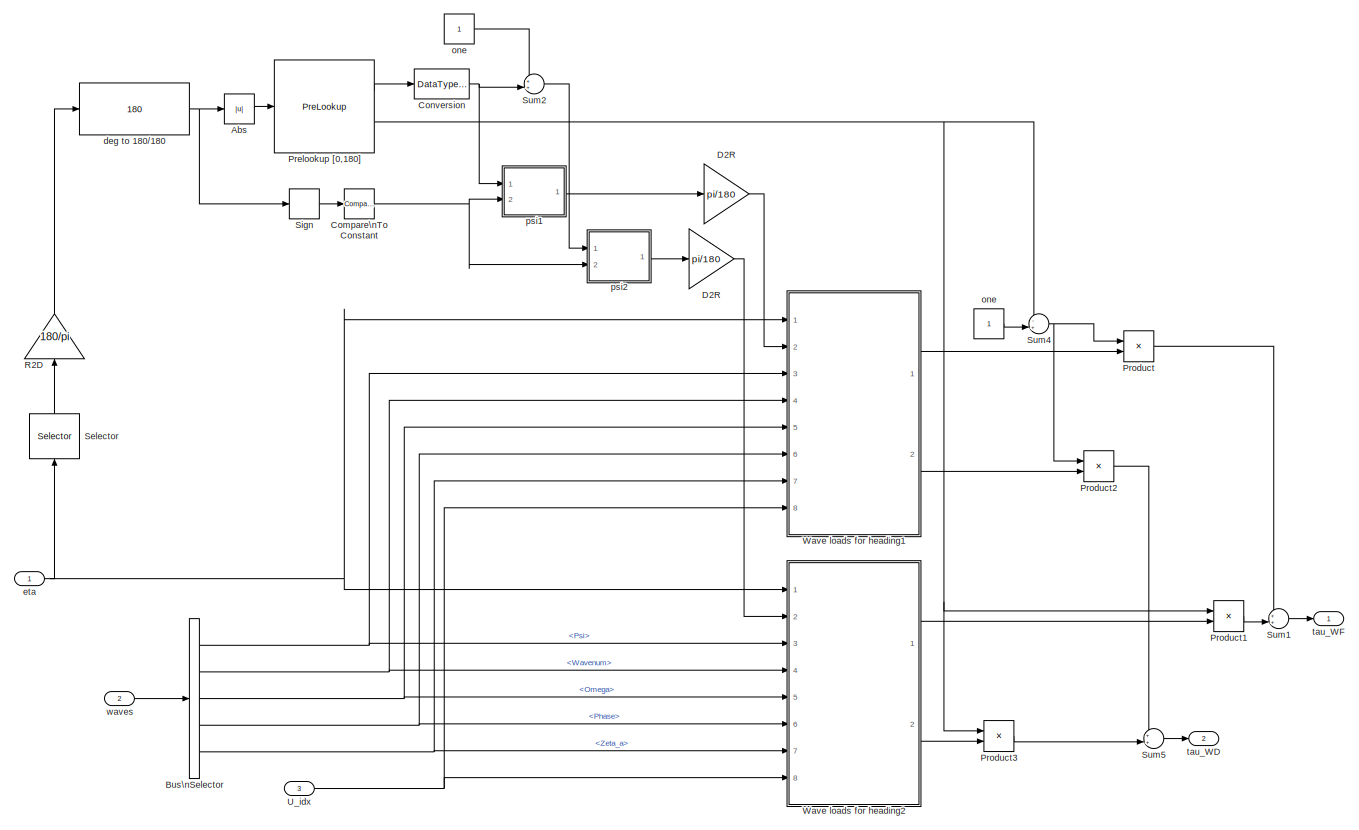
[diagram: Wave loads (U>0)/Wave loads U = U2 - part 1/1, most of the canvas]
BLOCK [SubSystem] Wave loads (U>0)/Wave loads U = U2
  FunctionWithSeparateData = off
  MaskHideContents = off
  MinAlgLoopOccurrences = off
  Ports = [3, 2]
  RTWSystemCode = Auto
BLOCK [Abs] Wave loads (U>0)/Wave loads U = U2/Abs
BLOCK [BusSelector] Wave loads (U>0)/Wave loads U = U2/Bus\nSelector
  OutputSignals = Psi,Wavenum,Omega,Phase,Zeta_a
  Ports = [1, 5]
BLOCK [Reference] Wave loads (U>0)/Wave loads U = U2/Compare\nTo Constant  REF=simulink/Logic and Bit\nOperations/Compare\nTo Constant
  FunctionWithSeparateData = off
  LogicOutDataTypeMode = uint8
  Ports = [1, 1]
  RTWMemSecDataConstants = Inherit from model
  RTWMemSecDataInternal = Inherit from model
  RTWMemSecDataParameters = Inherit from model
  RTWMemSecFuncExecute = Inherit from model
  RTWMemSecFuncInitTerm = Inherit from model
  ShowPortLabels = FromPortIcon
  SourceBlock = simulink/Logic and Bit\nOperations/Compare\nTo Constant
  SourceType = Compare To Constant
  SystemSampleTime = -1
  ZeroCross = off
  const = 0
  relop = <
BLOCK [DataTypeConversion] Wave loads (U>0)/Wave loads U = U2/Conversion
  OutDataTypeMode = double
  RndMeth = Floor
  SaturateOnIntegerOverflow = off
BLOCK [Gain] Wave loads (U>0)/Wave loads U = U2/D2R
  Gain = pi/180
  OutDataTypeMode = Inherit via internal rule
  ParameterDataTypeMode = Inherit via internal rule
  SaturateOnIntegerOverflow = off
BLOCK [Gain] Wave loads (U>0)/Wave loads U = U2/D2R 
  Gain = pi/180
  OutDataTypeMode = Inherit via internal rule
  ParameterDataTypeMode = Inherit via internal rule
  SaturateOnIntegerOverflow = off
BLOCK [PreLookup] Wave loads (U>0)/Wave loads U = U2/Prelookup [0,180]
  BeginIndexSearchUsingPreviousIndexResult = on
  BreakpointsData = [0:10:180]
  IndexSearchMethod = Evenly spaced points
  Ports = [1, 2]
BLOCK [Product] Wave loads (U>0)/Wave loads U = U2/Product
  CollapseMode = All dimensions
  InputSameDT = off
  OutDataTypeMode = Inherit via internal rule
  Ports = [2, 1]
  SaturateOnIntegerOverflow = off
BLOCK [Product] Wave loads (U>0)/Wave loads U = U2/Product1
  CollapseMode = All dimensions
  InputSameDT = off
  OutDataTypeMode = Inherit via internal rule
  Ports = [2, 1]
  SaturateOnIntegerOverflow = off
BLOCK [Product] Wave loads (U>0)/Wave loads U = U2/Product2
  CollapseMode = All dimensions
  InputSameDT = off
  OutDataTypeMode = Inherit via internal rule
  Ports = [2, 1]
  SaturateOnIntegerOverflow = off
BLOCK [Product] Wave loads (U>0)/Wave loads U = U2/Product3
  CollapseMode = All dimensions
  InputSameDT = off
  OutDataTypeMode = Inherit via internal rule
  Ports = [2, 1]
  SaturateOnIntegerOverflow = off
BLOCK [Gain] Wave loads (U>0)/Wave loads U = U2/R2D
  Gain = 180/pi
  OutDataTypeMode = Inherit via internal rule
  ParameterDataTypeMode = Inherit via internal rule
  SaturateOnIntegerOverflow = off
BLOCK [Selector] Wave loads (U>0)/Wave loads U = U2/Selector
  IndexOptions = Index vector (dialog)
  Indices = [6]
  InputPortWidth = 6
  OutputSizes = 1
  Ports = [1, 1]
BLOCK [Signum] Wave loads (U>0)/Wave loads U = U2/Sign
BLOCK [Sum] Wave loads (U>0)/Wave loads U = U2/Sum1
  CollapseMode = All dimensions
  IconShape = round
  InputSameDT = off
  Inputs = ++|
  OutDataTypeMode = Inherit via internal rule
  Ports = [2, 1]
  SaturateOnIntegerOverflow = off
BLOCK [Sum] Wave loads (U>0)/Wave loads U = U2/Sum2
  CollapseMode = All dimensions
  IconShape = round
  InputSameDT = off
  Inputs = ++|
  OutDataTypeMode = Inherit via internal rule
  Ports = [2, 1]
  SaturateOnIntegerOverflow = off
BLOCK [Sum] Wave loads (U>0)/Wave loads U = U2/Sum4
  CollapseMode = All dimensions
  IconShape = round
  InputSameDT = off
  Inputs = -+|
  OutDataTypeMode = Inherit via internal rule
  Ports = [2, 1]
  SaturateOnIntegerOverflow = off
BLOCK [Sum] Wave loads (U>0)/Wave loads U = U2/Sum5
  CollapseMode = All dimensions
  IconShape = round
  InputSameDT = off
  Inputs = ++|
  OutDataTypeMode = Inherit via internal rule
  Ports = [2, 1]
  SaturateOnIntegerOverflow = off
BLOCK [Inport] Wave loads (U>0)/Wave loads U = U2/U_idx
  IconDisplay = Port number
  Port = 3
BLOCK [SubSystem] Wave loads (U>0)/Wave loads U = U2/Wave loads for heading1
  AncestorBlock = marine_gnc/Models/Environmental\nLoads/Force RAO
  FunctionWithSeparateData = off
  MaskCallbackString = |||||||
  MaskDescription = Calculate the 6 degrees-of-freedom (DOF) wave-frequency excitation forces tau_WF for a vessel from its Force Response Amplitude Operators (Force RAOs) and a sea state defined by a set of harmonic waves. The block takes the \"Waves\" bus from the MSS Waves block as input, as well as the vessel low-frequency (LF) motion in terms of the generalized position vector eta and mean surge velocity U. See h...<+77ch>
  MaskEnableString = on,on,on,on,on,on,on,on
  MaskHelp = <b>Part of the Marine Systems Simulator: MSS</b><br>\n<br>\nCalculate the 6 degrees-of-freedom (DOF) wave-frequency excitation forces tau_WF \nfor a vessel from its Force Response Amplitude Operators (Force RAOs) and a sea \nstate defined by a set of harmonic waves. The block takes the &quot;Waves&quot; bus from \nthe MSS Waves block as input, as well as the vessel low-frequency (LF) motion in \nt...<+6973ch>
  MaskHideContents = off
  MaskIconFrame = on
  MaskIconOpaque = on
  MaskIconRotate = none
  MaskIconUnits = autoscale
  MaskStyleString = edit,edit,edit,edit,edit,edit,checkbox,checkbox
  MaskTabNameString = ,,,,,,,
  MaskToolTipString = on,on,on,on,on,on,on,on
  MaskTunableValueString = on,on,on,on,on,on,on,on
  MaskType = Force RAO
  MaskValueString = vessel.forceRAO.w|vessel.driftfrc.w|vessel.velocities|vessel.forceRAO.amp|vessel.forceRAO.phase|vessel.driftfrc.amp|on|on
  MaskVarAliasString = ,,,,,,,
  MaskVariables = ForceRAO_Freq=@1;WD_Freq=@2;RAO_Vel=@3;ForceRAO_Amp=@4;ForceRAO_Phase=@5;WD_Amp=@6;RAO_add_omega_0=@7;RAO_add_omega_inf=@8;
  MaskVisibilityString = on,on,on,on,on,on,on,on
  MinAlgLoopOccurrences = off
  Ports = [8, 2]
  RTWSystemCode = Auto
BLOCK [Clock] Wave loads (U>0)/Wave loads U = U2/Wave loads for heading1/Clock
  Decimation = 10
BLOCK [Inport] Wave loads (U>0)/Wave loads U = U2/Wave loads for heading1/Omega
  IconDisplay = Port number
  Port = 5
BLOCK [Inport] Wave loads (U>0)/Wave loads U = U2/Wave loads for heading1/Phase
  IconDisplay = Port number
  Port = 6
BLOCK [Reference] Wave loads (U>0)/Wave loads U = U2/Wave loads for heading1/Position phase  REF=marine_gnc/Models/Environmental\nLoads/Utilities/Position phase  (lib defined in mdl_10d96c221ba8, mdl_45f1105420c6)
  FunctionWithSeparateData = off
  Ports = [3, 1]
  RTWMemSecDataConstants = Inherit from model
  RTWMemSecDataInternal = Inherit from model
  RTWMemSecDataParameters = Inherit from model
  RTWMemSecFuncExecute = Inherit from model
  RTWMemSecFuncInitTerm = Inherit from model
  ShowPortLabels = FromPortIcon
  SourceBlock = marine_gnc/Models/Environmental\nLoads/Utilities/Position phase
  SourceType = Position Phase
  SystemSampleTime = -1
BLOCK [Product] Wave loads (U>0)/Wave loads U = U2/Wave loads for heading1/Product1
  CollapseMode = All dimensions
  InputSameDT = off
  Inputs = **
  Ports = [2, 1]
  RndMeth = Floor
BLOCK [Sum] Wave loads (U>0)/Wave loads U = U2/Wave loads for heading1/Sum
  CollapseMode = All dimensions
  IconShape = round
  InputSameDT = off
  Inputs = -++
  OutDataTypeMode = Inherit via internal rule
  Ports = [3, 1]
BLOCK [Sum] Wave loads (U>0)/Wave loads U = U2/Wave loads for heading1/Sum1
  CollapseMode = All dimensions
  IconShape = round
  InputSameDT = off
  Inputs = -+|
  OutDataTypeMode = Inherit via internal rule
  Ports = [2, 1]
  SaturateOnIntegerOverflow = off
BLOCK [Inport] Wave loads (U>0)/Wave loads U = U2/Wave loads for heading1/U_idx
  IconDisplay = Port number
  Port = 8
BLOCK [SubSystem] Wave loads (U>0)/Wave loads U = U2/Wave loads for heading1/Wave component loop
  FunctionWithSeparateData = off
  MaskHideContents = off
  MinAlgLoopOccurrences = off
  Ports = [6, 2]
  RTWSystemCode = Auto
  TreatAsAtomicUnit = on
BLOCK [Trigonometry] Wave loads (U>0)/Wave loads U = U2/Wave loads for heading1/Wave component loop/                
  Ports = [1, 1]
BLOCK [Reference] Wave loads (U>0)/Wave loads U = U2/Wave loads for heading1/Wave component loop/Direct Lookup\nTable (n-D) Beta  REF=simulink/Lookup\nTables/Direct Lookup\nTable (n-D)
  Ports = [1, 1]
  SourceBlock = simulink/Lookup\nTables/Direct Lookup\nTable (n-D)
  SourceType = LookupNDDirect
  clipFlag = Warning
  explicitNumDims = 1
  maskTabDims = 1
  mxTable = vessel.headings
  outDims = Element
  samptime = -1
  tabIsInput = off
BLOCK [Reference] Wave loads (U>0)/Wave loads U = U2/Wave loads for heading1/Wave component loop/Direct Lookup\nTable (n-D) Velocity  REF=simulink/Lookup\nTables/Direct Lookup\nTable (n-D)
  Ports = [1, 1]
  SourceBlock = simulink/Lookup\nTables/Direct Lookup\nTable (n-D)
  SourceType = LookupNDDirect
  clipFlag = Warning
  explicitNumDims = 1
  maskTabDims = 1
  mxTable = RAO_Vel
  outDims = Element
  samptime = -1
  tabIsInput = off
BLOCK [ForIterator] Wave loads (U>0)/Wave loads U = U2/Wave loads for heading1/Wave component loop/For Iterator
  IterationSource = external
  IterationVariableDataType = double
  Ports = [1, 1]
  ResetStates = reset
BLOCK [SubSystem] Wave loads (U>0)/Wave loads U = U2/Wave loads for heading1/Wave component loop/Force RAO tables
  AncestorBlock = marine_gnc/Models/Environmental\nLoads/Utilities/RAO tables
  FunctionWithSeparateData = off
  MaskHideContents = off
  MaskIconFrame = on
  MaskIconOpaque = on
  MaskIconRotate = none
  MaskIconUnits = autoscale
  MaskType = RAO table lookup
  MinAlgLoopOccurrences = off
  Ports = [3, 2]
  RTWSystemCode = Auto
BLOCK [Reference] Wave loads (U>0)/Wave loads U = U2/Wave loads for heading1/Wave component loop/Force RAO tables/Lookup\nTable (n-D) Amp1  REF=simulink/Lookup\nTables/Lookup\nTable (n-D)
  Ports = [3, 1]
  SourceBlock = simulink/Lookup\nTables/Lookup\nTable (n-D)
  SourceType = LookupNDInterp
  bp1 = ForceRAO_Freq
  bp2 = vessel.headings
  bp3 = RAO_Vel
  bp4 = [1:3]
  bpcell = { [1:3], [1:3] }
  cacheBpFlag = on
  explicitNumDims = 2
  extrapMethod = None - Clip
  interpMethod = Linear
  numDimsPopupSelect = 3
  rangeErrorMode = Warning
  searchMode = Linear Search
  tableData = ForceRAO_Amp{1}
  vectorInputFlag = off
BLOCK [Reference] Wave loads (U>0)/Wave loads U = U2/Wave loads for heading1/Wave component loop/Force RAO tables/Lookup\nTable (n-D) Amp2  REF=simulink/Lookup\nTables/Lookup\nTable (n-D)
  Ports = [3, 1]
  SourceBlock = simulink/Lookup\nTables/Lookup\nTable (n-D)
  SourceType = LookupNDInterp
  bp1 = ForceRAO_Freq
  bp2 = vessel.headings
  bp3 = RAO_Vel
  bp4 = [1:3]
  bpcell = { [1:3], [1:3] }
  cacheBpFlag = on
  explicitNumDims = 2
  extrapMethod = None - Clip
  interpMethod = Linear
  numDimsPopupSelect = 3
  rangeErrorMode = Warning
  searchMode = Linear Search
  tableData = ForceRAO_Amp{2}
  vectorInputFlag = off
BLOCK [Reference] Wave loads (U>0)/Wave loads U = U2/Wave loads for heading1/Wave component loop/Force RAO tables/Lookup\nTable (n-D) Amp3  REF=simulink/Lookup\nTables/Lookup\nTable (n-D)
  Ports = [3, 1]
  SourceBlock = simulink/Lookup\nTables/Lookup\nTable (n-D)
  SourceType = LookupNDInterp
  bp1 = ForceRAO_Freq
  bp2 = vessel.headings
  bp3 = RAO_Vel
  bp4 = [1:3]
  bpcell = { [1:3], [1:3] }
  cacheBpFlag = on
  explicitNumDims = 2
  extrapMethod = None - Clip
  interpMethod = Linear
  numDimsPopupSelect = 3
  rangeErrorMode = Warning
  searchMode = Linear Search
  tableData = ForceRAO_Amp{3}
  vectorInputFlag = off
BLOCK [Reference] Wave loads (U>0)/Wave loads U = U2/Wave loads for heading1/Wave component loop/Force RAO tables/Lookup\nTable (n-D) Amp4  REF=simulink/Lookup\nTables/Lookup\nTable (n-D)
  Ports = [3, 1]
  SourceBlock = simulink/Lookup\nTables/Lookup\nTable (n-D)
  SourceType = LookupNDInterp
  bp1 = ForceRAO_Freq
  bp2 = vessel.headings
  bp3 = RAO_Vel
  bp4 = [1:3]
  bpcell = { [1:3], [1:3] }
  cacheBpFlag = on
  explicitNumDims = 2
  extrapMethod = None - Clip
  interpMethod = Linear
  numDimsPopupSelect = 3
  rangeErrorMode = Warning
  searchMode = Linear Search
  tableData = ForceRAO_Amp{4}
  vectorInputFlag = off
BLOCK [Reference] Wave loads (U>0)/Wave loads U = U2/Wave loads for heading1/Wave component loop/Force RAO tables/Lookup\nTable (n-D) Amp5  REF=simulink/Lookup\nTables/Lookup\nTable (n-D)
  Ports = [3, 1]
  SourceBlock = simulink/Lookup\nTables/Lookup\nTable (n-D)
  SourceType = LookupNDInterp
  bp1 = ForceRAO_Freq
  bp2 = vessel.headings
  bp3 = RAO_Vel
  bp4 = [1:3]
  bpcell = { [1:3], [1:3] }
  cacheBpFlag = on
  explicitNumDims = 2
  extrapMethod = None - Clip
  interpMethod = Linear
  numDimsPopupSelect = 3
  rangeErrorMode = Warning
  searchMode = Linear Search
  tableData = ForceRAO_Amp{5}
  vectorInputFlag = off
BLOCK [Reference] Wave loads (U>0)/Wave loads U = U2/Wave loads for heading1/Wave component loop/Force RAO tables/Lookup\nTable (n-D) Amp6  REF=simulink/Lookup\nTables/Lookup\nTable (n-D)
  Ports = [3, 1]
  SourceBlock = simulink/Lookup\nTables/Lookup\nTable (n-D)
  SourceType = LookupNDInterp
  bp1 = ForceRAO_Freq
  bp2 = vessel.headings
  bp3 = RAO_Vel
  bp4 = [1:3]
  bpcell = { [1:3], [1:3] }
  cacheBpFlag = on
  explicitNumDims = 2
  extrapMethod = None - Clip
  interpMethod = Linear
  numDimsPopupSelect = 3
  rangeErrorMode = Warning
  searchMode = Linear Search
  tableData = ForceRAO_Amp{6}
  vectorInputFlag = off
BLOCK [Reference] Wave loads (U>0)/Wave loads U = U2/Wave loads for heading1/Wave component loop/Force RAO tables/Lookup\nTable (n-D) Phase  REF=simulink/Lookup\nTables/Lookup\nTable (n-D)
  Ports = [3, 1]
  SourceBlock = simulink/Lookup\nTables/Lookup\nTable (n-D)
  SourceType = LookupNDInterp
  bp1 = ForceRAO_Freq
  bp2 = vessel.headings
  bp3 = RAO_Vel
  bp4 = [1:3]
  bpcell = { [1:3], [1:3] }
  cacheBpFlag = on
  explicitNumDims = 2
  extrapMethod = None - Clip
  interpMethod = Linear
  numDimsPopupSelect = 3
  rangeErrorMode = Warning
  searchMode = Linear Search
  tableData = ForceRAO_Phase{3}
  vectorInputFlag = off
BLOCK [Reference] Wave loads (U>0)/Wave loads U = U2/Wave loads for heading1/Wave component loop/Force RAO tables/Lookup\nTable (n-D) Phase1  REF=simulink/Lookup\nTables/Lookup\nTable (n-D)
  Ports = [3, 1]
  SourceBlock = simulink/Lookup\nTables/Lookup\nTable (n-D)
  SourceType = LookupNDInterp
  bp1 = ForceRAO_Freq
  bp2 = vessel.headings
  bp3 = RAO_Vel
  bp4 = [1:3]
  bpcell = { [1:3], [1:3] }
  cacheBpFlag = on
  explicitNumDims = 2
  extrapMethod = None - Clip
  interpMethod = Linear
  numDimsPopupSelect = 3
  rangeErrorMode = Warning
  searchMode = Linear Search
  tableData = ForceRAO_Phase{1}
  vectorInputFlag = off
BLOCK [Reference] Wave loads (U>0)/Wave loads U = U2/Wave loads for heading1/Wave component loop/Force RAO tables/Lookup\nTable (n-D) Phase2  REF=simulink/Lookup\nTables/Lookup\nTable (n-D)
  Ports = [3, 1]
  SourceBlock = simulink/Lookup\nTables/Lookup\nTable (n-D)
  SourceType = LookupNDInterp
  bp1 = ForceRAO_Freq
  bp2 = vessel.headings
  bp3 = RAO_Vel
  bp4 = [1:3]
  bpcell = { [1:3], [1:3] }
  cacheBpFlag = on
  explicitNumDims = 2
  extrapMethod = None - Clip
  interpMethod = Linear
  numDimsPopupSelect = 3
  rangeErrorMode = Warning
  searchMode = Linear Search
  tableData = ForceRAO_Phase{2}
  vectorInputFlag = off
BLOCK [Reference] Wave loads (U>0)/Wave loads U = U2/Wave loads for heading1/Wave component loop/Force RAO tables/Lookup\nTable (n-D) Phase4  REF=simulink/Lookup\nTables/Lookup\nTable (n-D)
  Ports = [3, 1]
  SourceBlock = simulink/Lookup\nTables/Lookup\nTable (n-D)
  SourceType = LookupNDInterp
  bp1 = ForceRAO_Freq
  bp2 = vessel.headings
  bp3 = RAO_Vel
  bp4 = [1:3]
  bpcell = { [1:3], [1:3] }
  cacheBpFlag = on
  explicitNumDims = 2
  extrapMethod = None - Clip
  interpMethod = Linear
  numDimsPopupSelect = 3
  rangeErrorMode = Warning
  searchMode = Linear Search
  tableData = ForceRAO_Phase{4}
  vectorInputFlag = off
BLOCK [Reference] Wave loads (U>0)/Wave loads U = U2/Wave loads for heading1/Wave component loop/Force RAO tables/Lookup\nTable (n-D) Phase5  REF=simulink/Lookup\nTables/Lookup\nTable (n-D)
  Ports = [3, 1]
  SourceBlock = simulink/Lookup\nTables/Lookup\nTable (n-D)
  SourceType = LookupNDInterp
  bp1 = ForceRAO_Freq
  bp2 = vessel.headings
  bp3 = RAO_Vel
  bp4 = [1:3]
  bpcell = { [1:3], [1:3] }
  cacheBpFlag = on
  explicitNumDims = 2
  extrapMethod = None - Clip
  interpMethod = Linear
  numDimsPopupSelect = 3
  rangeErrorMode = Warning
  searchMode = Linear Search
  tableData = ForceRAO_Phase{5}
  vectorInputFlag = off
BLOCK [Reference] Wave loads (U>0)/Wave loads U = U2/Wave loads for heading1/Wave component loop/Force RAO tables/Lookup\nTable (n-D) Phase6  REF=simulink/Lookup\nTables/Lookup\nTable (n-D)
  Ports = [3, 1]
  SourceBlock = simulink/Lookup\nTables/Lookup\nTable (n-D)
  SourceType = LookupNDInterp
  bp1 = ForceRAO_Freq
  bp2 = vessel.headings
  bp3 = RAO_Vel
  bp4 = [1:3]
  bpcell = { [1:3], [1:3] }
  cacheBpFlag = on
  explicitNumDims = 2
  extrapMethod = None - Clip
  interpMethod = Linear
  numDimsPopupSelect = 3
  rangeErrorMode = Warning
  searchMode = Linear Search
  tableData = ForceRAO_Phase{6}
  vectorInputFlag = off
BLOCK [Mux] Wave loads (U>0)/Wave loads U = U2/Wave loads for heading1/Wave component loop/Force RAO tables/Mux1
  DisplayOption = bar
  Inputs = 6
  Ports = [6, 1]
BLOCK [Mux] Wave loads (U>0)/Wave loads U = U2/Wave loads for heading1/Wave component loop/Force RAO tables/Mux2
  DisplayOption = bar
  Inputs = 6
  Ports = [6, 1]
BLOCK [Inport] Wave loads (U>0)/Wave loads U = U2/Wave loads for heading1/Wave component loop/Force RAO tables/U
  IconDisplay = Port number
  Port = 3
BLOCK [Outport] Wave loads (U>0)/Wave loads U = U2/Wave loads for heading1/Wave component loop/Force RAO tables/amp
  BusOutputAsStruct = off
  IconDisplay = Port number
BLOCK [Inport] Wave loads (U>0)/Wave loads U = U2/Wave loads for heading1/Wave component loop/Force RAO tables/beta
  IconDisplay = Port number
BLOCK [Outport] Wave loads (U>0)/Wave loads U = U2/Wave loads for heading1/Wave component loop/Force RAO tables/phase
  BusOutputAsStruct = off
  IconDisplay = Port number
  Port = 2
BLOCK [Inport] Wave loads (U>0)/Wave loads U = U2/Wave loads for heading1/Wave component loop/Force RAO tables/w
  IconDisplay = Port number
  Port = 2
BLOCK [Memory] Wave loads (U>0)/Wave loads U = U2/Wave loads for heading1/Wave component loop/Memory1
  InheritSampleTime = on
  X0 = [0 0 0 0 0 0]'
BLOCK [Memory] Wave loads (U>0)/Wave loads U = U2/Wave loads for heading1/Wave component loop/Memory2
  InheritSampleTime = on
  X0 = [0 0 0 0 0 0]'
BLOCK [Inport] Wave loads (U>0)/Wave loads U = U2/Wave loads for heading1/Wave component loop/Omega
  IconDisplay = Port number
  Port = 3
BLOCK [Inport] Wave loads (U>0)/Wave loads U = U2/Wave loads for heading1/Wave component loop/Phase_tot
  IconDisplay = Port number
  Port = 4
BLOCK [PreLookup] Wave loads (U>0)/Wave loads U = U2/Wave loads for heading1/Wave component loop/Prelookup1
  BeginIndexSearchUsingPreviousIndexResult = on
  BreakpointsData = vessel.headings
  IndexSearchMethod = Evenly spaced points
  OutputOnlyTheIndex = on
  Ports = [1, 1]
BLOCK [Product] Wave loads (U>0)/Wave loads U = U2/Wave loads for heading1/Wave component loop/Product1
  CollapseMode = All dimensions
  InputSameDT = off
  Ports = [2, 1]
  RndMeth = Floor
BLOCK [Product] Wave loads (U>0)/Wave loads U = U2/Wave loads for heading1/Wave component loop/Product3
  CollapseMode = All dimensions
  InputSameDT = off
  Inputs = 3
  Ports = [3, 1]
  RndMeth = Floor
BLOCK [Product] Wave loads (U>0)/Wave loads U = U2/Wave loads for heading1/Wave component loop/Product4
  CollapseMode = All dimensions
  InputSameDT = off
  Ports = [2, 1]
  RndMeth = Floor
BLOCK [Inport] Wave loads (U>0)/Wave loads U = U2/Wave loads for heading1/Wave component loop/Psi_r
  IconDisplay = Port number
  Port = 2
BLOCK [Selector] Wave loads (U>0)/Wave loads U = U2/Wave loads for heading1/Wave component loop/Selector2
  IndexOptions = Index vector (port)
  Indices = [1 3]
  OutputSizes = 1
  Ports = [2, 1]
BLOCK [Selector] Wave loads (U>0)/Wave loads U = U2/Wave loads for heading1/Wave component loop/Selector3
  IndexOptions = Index vector (port)
  Indices = [1 3]
  OutputSizes = 1
  Ports = [2, 1]
BLOCK [Selector] Wave loads (U>0)/Wave loads U = U2/Wave loads for heading1/Wave component loop/Selector4
  IndexOptions = Index vector (port)
  Indices = [1 3]
  OutputSizes = 1
  Ports = [2, 1]
BLOCK [Selector] Wave loads (U>0)/Wave loads U = U2/Wave loads for heading1/Wave component loop/Selector5
  IndexOptions = Index vector (port)
  Indices = [1 3]
  OutputSizes = 1
  Ports = [2, 1]
BLOCK [Sum] Wave loads (U>0)/Wave loads U = U2/Wave loads for heading1/Wave component loop/Sum1
  CollapseMode = All dimensions
  IconShape = round
  InputSameDT = off
  Inputs = ++|
  OutDataTypeMode = Inherit via internal rule
  Ports = [2, 1]
BLOCK [Sum] Wave loads (U>0)/Wave loads U = U2/Wave loads for heading1/Wave component loop/Sum4
  CollapseMode = All dimensions
  IconShape = round
  InputSameDT = off
  Inputs = ++|
  OutDataTypeMode = Inherit via internal rule
  Ports = [2, 1]
BLOCK [Sum] Wave loads (U>0)/Wave loads U = U2/Wave loads for heading1/Wave component loop/Sum5
  CollapseMode = All dimensions
  IconShape = round
  InputSameDT = off
  Inputs = ++|
  OutDataTypeMode = Inherit via internal rule
  Ports = [2, 1]
BLOCK [Inport] Wave loads (U>0)/Wave loads U = U2/Wave loads for heading1/Wave component loop/U_idx
  IconDisplay = Port number
  Port = 6
BLOCK [SubSystem] Wave loads (U>0)/Wave loads U = U2/Wave loads for heading1/Wave component loop/WD RAO tables
  AncestorBlock = marine_gnc/Models/Environmental\nLoads/Utilities/RAO tables
  FunctionWithSeparateData = off
  MaskHideContents = off
  MaskIconFrame = on
  MaskIconOpaque = on
  MaskIconRotate = none
  MaskIconUnits = autoscale
  MaskType = RAO table lookup
  MinAlgLoopOccurrences = off
  Ports = [3, 1]
  RTWSystemCode = Auto
BLOCK [Constant] Wave loads (U>0)/Wave loads U = U2/Wave loads for heading1/Wave component loop/WD RAO tables/Constant
  Value = 0
BLOCK [Reference] Wave loads (U>0)/Wave loads U = U2/Wave loads for heading1/Wave component loop/WD RAO tables/Lookup\nTable (n-D) \nWavedrift 1  REF=simulink/Lookup\nTables/Lookup\nTable (n-D)
  Ports = [3, 1]
  SourceBlock = simulink/Lookup\nTables/Lookup\nTable (n-D)
  SourceType = LookupNDInterp
  bp1 = WD_Freq
  bp2 = vessel.headings
  bp3 = RAO_Vel
  bp4 = [1:3]
  bpcell = { [1:3], [1:3] }
  cacheBpFlag = on
  explicitNumDims = 2
  extrapMethod = None - Clip
  interpMethod = Linear
  numDimsPopupSelect = 3
  rangeErrorMode = Warning
  searchMode = Linear Search
  tableData = WD_Amp{1}
  vectorInputFlag = off
BLOCK [Reference] Wave loads (U>0)/Wave loads U = U2/Wave loads for heading1/Wave component loop/WD RAO tables/Lookup\nTable (n-D) \nWavedrift 2  REF=simulink/Lookup\nTables/Lookup\nTable (n-D)
  Ports = [3, 1]
  SourceBlock = simulink/Lookup\nTables/Lookup\nTable (n-D)
  SourceType = LookupNDInterp
  bp1 = WD_Freq
  bp2 = vessel.headings
  bp3 = RAO_Vel
  bp4 = [1:3]
  bpcell = { [1:3], [1:3] }
  cacheBpFlag = on
  explicitNumDims = 2
  extrapMethod = None - Clip
  interpMethod = Linear
  numDimsPopupSelect = 3
  rangeErrorMode = Warning
  searchMode = Linear Search
  tableData = WD_Amp{2}
  vectorInputFlag = off
BLOCK [Reference] Wave loads (U>0)/Wave loads U = U2/Wave loads for heading1/Wave component loop/WD RAO tables/Lookup\nTable (n-D) \nWavedrift 3  REF=simulink/Lookup\nTables/Lookup\nTable (n-D)
  Ports = [3, 1]
  SourceBlock = simulink/Lookup\nTables/Lookup\nTable (n-D)
  SourceType = LookupNDInterp
  bp1 = WD_Freq
  bp2 = vessel.headings
  bp3 = RAO_Vel
  bp4 = [1:3]
  bpcell = { [1:3], [1:3] }
  cacheBpFlag = on
  explicitNumDims = 2
  extrapMethod = None - Clip
  interpMethod = Linear
  numDimsPopupSelect = 3
  rangeErrorMode = Warning
  searchMode = Linear Search
  tableData = WD_Amp{3}
  vectorInputFlag = off
BLOCK [Mux] Wave loads (U>0)/Wave loads U = U2/Wave loads for heading1/Wave component loop/WD RAO tables/Mux1
  DisplayOption = bar
  Inputs = 6
  Ports = [6, 1]
BLOCK [Inport] Wave loads (U>0)/Wave loads U = U2/Wave loads for heading1/Wave component loop/WD RAO tables/U
  IconDisplay = Port number
  Port = 3
BLOCK [Outport] Wave loads (U>0)/Wave loads U = U2/Wave loads for heading1/Wave component loop/WD RAO tables/amp
  BusOutputAsStruct = off
  IconDisplay = Port number
BLOCK [Inport] Wave loads (U>0)/Wave loads U = U2/Wave loads for heading1/Wave component loop/WD RAO tables/beta
  IconDisplay = Port number
BLOCK [Inport] Wave loads (U>0)/Wave loads U = U2/Wave loads for heading1/Wave component loop/WD RAO tables/w
  IconDisplay = Port number
  Port = 2
BLOCK [Inport] Wave loads (U>0)/Wave loads U = U2/Wave loads for heading1/Wave component loop/Zeta_a
  IconDisplay = Port number
  Port = 5
BLOCK [Reference] Wave loads (U>0)/Wave loads U = U2/Wave loads for heading1/Wave component loop/[-inf inf] to [-pi pi]  REF=marine_gnc/Utilities/Math Operations/[-inf inf] to [-pi pi]  (lib defined in mdl_10d96c221ba8, mdl_45f1105420c6)
  FunctionWithSeparateData = off
  Ports = [1, 1]
  RTWMemSecDataConstants = Inherit from model
  RTWMemSecDataInternal = Inherit from model
  RTWMemSecDataParameters = Inherit from model
  RTWMemSecFuncExecute = Inherit from model
  RTWMemSecFuncInitTerm = Inherit from model
  ShowPortLabels = FromPortIcon
  SourceBlock = marine_gnc/Utilities/Math Operations/[-inf inf] to [-pi pi]
  SourceType = [-inf inf] to [-pi pi]
  SystemSampleTime = -1
BLOCK [SubSystem] Wave loads (U>0)/Wave loads U = U2/Wave loads for heading1/Wave component loop/[-pi pi] to [0 2pi]
  FunctionWithSeparateData = off
  MaskDescription = Converts an angle in rad to (-pi pi)
  MaskHideContents = off
  MaskIconFrame = on
  MaskIconOpaque = on
  MaskIconRotate = none
  MaskIconUnits = autoscale
  MaskType = [-inf inf] to [-pi pi]
  MinAlgLoopOccurrences = off
  Ports = [1, 1]
  RTWSystemCode = Auto
BLOCK [Outport] Wave loads (U>0)/Wave loads U = U2/Wave loads for heading1/Wave component loop/[-pi pi] to [0 2pi]/0<y<2pi
  BusOutputAsStruct = off
  IconDisplay = Port number
BLOCK [Constant] Wave loads (U>0)/Wave loads U = U2/Wave loads for heading1/Wave component loop/[-pi pi] to [0 2pi]/Constant
  Value = 2*pi
BLOCK [Constant] Wave loads (U>0)/Wave loads U = U2/Wave loads for heading1/Wave component loop/[-pi pi] to [0 2pi]/Constant1
  Value = 0
BLOCK [Signum] Wave loads (U>0)/Wave loads U = U2/Wave loads for heading1/Wave component loop/[-pi pi] to [0 2pi]/Sign
BLOCK [Sum] Wave loads (U>0)/Wave loads U = U2/Wave loads for heading1/Wave component loop/[-pi pi] to [0 2pi]/Sum
  CollapseMode = All dimensions
  IconShape = round
  InputSameDT = off
  Inputs = |++
  OutDataTypeMode = Inherit via internal rule
  Ports = [2, 1]
BLOCK [Switch] Wave loads (U>0)/Wave loads U = U2/Wave loads for heading1/Wave component loop/[-pi pi] to [0 2pi]/Switch
  InputSameDT = off
  SaturateOnIntegerOverflow = off
BLOCK [Inport] Wave loads (U>0)/Wave loads U = U2/Wave loads for heading1/Wave component loop/[-pi pi] to [0 2pi]/x [-pi pi]
  IconDisplay = Port number
BLOCK [Inport] Wave loads (U>0)/Wave loads U = U2/Wave loads for heading1/Wave component loop/number of \niterations
  IconDisplay = Port number
BLOCK [Outport] Wave loads (U>0)/Wave loads U = U2/Wave loads for heading1/Wave component loop/tau_WD
  BusOutputAsStruct = off
  IconDisplay = Port number
  Port = 2
BLOCK [Outport] Wave loads (U>0)/Wave loads U = U2/Wave loads for heading1/Wave component loop/tau_WF
  BusOutputAsStruct = off
  IconDisplay = Port number
BLOCK [Width] Wave loads (U>0)/Wave loads U = U2/Wave loads for heading1/Width
  DataType = int32
BLOCK [Inport] Wave loads (U>0)/Wave loads U = U2/Wave loads for heading1/Zeta_a
  IconDisplay = Port number
  Port = 7
BLOCK [Inport] Wave loads (U>0)/Wave loads U = U2/Wave loads for heading1/eta
  IconDisplay = Port number
BLOCK [Inport] Wave loads (U>0)/Wave loads U = U2/Wave loads for heading1/psi
  IconDisplay = Port number
  Port = 2
BLOCK [Inport] Wave loads (U>0)/Wave loads U = U2/Wave loads for heading1/psi_wave
  IconDisplay = Port number
  Port = 3
BLOCK [Outport] Wave loads (U>0)/Wave loads U = U2/Wave loads for heading1/tau_WD
  BusOutputAsStruct = off
  IconDisplay = Port number
  Port = 2
BLOCK [Outport] Wave loads (U>0)/Wave loads U = U2/Wave loads for heading1/tau_WF
  BusOutputAsStruct = off
  IconDisplay = Port number
BLOCK [Inport] Wave loads (U>0)/Wave loads U = U2/Wave loads for heading1/wavenum
  IconDisplay = Port number
  Port = 4
BLOCK [SubSystem] Wave loads (U>0)/Wave loads U = U2/Wave loads for heading2
  AncestorBlock = marine_gnc/Models/Environmental\nLoads/Force RAO
  FunctionWithSeparateData = off
  MaskCallbackString = |||||||
  MaskDescription = Calculate the 6 degrees-of-freedom (DOF) wave-frequency excitation forces Tau_WF for a vessel from its Force Response Amplitude Operators (Force RAOs) and a sea state defined by a set of harmonic waves. The block takes the \"Waves\" bus from the MSS Waves block as input, as well as the vessel low-frequency (LF) motion in terms of the generalized position vector eta_LF and mean surge velocity U. Se...<+85ch>
  MaskEnableString = on,on,on,on,on,on,on,on
  MaskHelp = <b>Part of the Marine Systems Simulator: MSS</b><br>\n<br>\nCalculate the 6 degrees-of-freedom (DOF) wave-frequency excitation forces Tau_WF \nfor a vessel from its Force Response Amplitude Operators (Force RAOs) and a sea \nstate defined by a set of harmonic waves. The block takes the &quot;Waves&quot; bus from \nthe MSS Waves block as input, as well as the vessel low-frequency (LF) motion in \nt...<+6976ch>
  MaskHideContents = off
  MaskIconFrame = on
  MaskIconOpaque = on
  MaskIconRotate = none
  MaskIconUnits = autoscale
  MaskStyleString = edit,edit,edit,edit,edit,edit,checkbox,checkbox
  MaskTabNameString = ,,,,,,,
  MaskToolTipString = on,on,on,on,on,on,on,on
  MaskTunableValueString = on,on,on,on,on,on,on,on
  MaskType = Force RAO
  MaskValueString = vessel.forceRAO.w|vessel.driftfrc.w|vessel.velocities|vessel.forceRAO.amp|vessel.forceRAO.phase|vessel.driftfrc.amp|on|on
  MaskVarAliasString = ,,,,,,,
  MaskVariables = ForceRAO_Freq=@1;WD_Freq=@2;RAO_Vel=@3;ForceRAO_Amp=@4;ForceRAO_Phase=@5;WD_Amp=@6;RAO_add_omega_0=@7;RAO_add_omega_inf=@8;
  MaskVisibilityString = on,on,on,on,on,on,on,on
  MinAlgLoopOccurrences = off
  Ports = [8, 2]
  RTWSystemCode = Auto
BLOCK [Clock] Wave loads (U>0)/Wave loads U = U2/Wave loads for heading2/Clock
  Decimation = 10
BLOCK [Inport] Wave loads (U>0)/Wave loads U = U2/Wave loads for heading2/Omega
  IconDisplay = Port number
  Port = 5
BLOCK [Inport] Wave loads (U>0)/Wave loads U = U2/Wave loads for heading2/Phase
  IconDisplay = Port number
  Port = 6
BLOCK [Reference] Wave loads (U>0)/Wave loads U = U2/Wave loads for heading2/Position phase  REF=marine_gnc/Models/Environmental\nLoads/Utilities/Position phase  (lib defined in mdl_10d96c221ba8, mdl_45f1105420c6)
  FunctionWithSeparateData = off
  Ports = [3, 1]
  RTWMemSecDataConstants = Inherit from model
  RTWMemSecDataInternal = Inherit from model
  RTWMemSecDataParameters = Inherit from model
  RTWMemSecFuncExecute = Inherit from model
  RTWMemSecFuncInitTerm = Inherit from model
  ShowPortLabels = FromPortIcon
  SourceBlock = marine_gnc/Models/Environmental\nLoads/Utilities/Position phase
  SourceType = Position Phase
  SystemSampleTime = -1
BLOCK [Product] Wave loads (U>0)/Wave loads U = U2/Wave loads for heading2/Product1
  CollapseMode = All dimensions
  InputSameDT = off
  Inputs = **
  Ports = [2, 1]
  RndMeth = Floor
BLOCK [Sum] Wave loads (U>0)/Wave loads U = U2/Wave loads for heading2/Sum
  CollapseMode = All dimensions
  IconShape = round
  InputSameDT = off
  Inputs = -++
  OutDataTypeMode = Inherit via internal rule
  Ports = [3, 1]
BLOCK [Sum] Wave loads (U>0)/Wave loads U = U2/Wave loads for heading2/Sum1
  CollapseMode = All dimensions
  IconShape = round
  InputSameDT = off
  Inputs = -+|
  OutDataTypeMode = Inherit via internal rule
  Ports = [2, 1]
  SaturateOnIntegerOverflow = off
BLOCK [Inport] Wave loads (U>0)/Wave loads U = U2/Wave loads for heading2/U
  IconDisplay = Port number
  Port = 8
BLOCK [SubSystem] Wave loads (U>0)/Wave loads U = U2/Wave loads for heading2/Wave component loop
  FunctionWithSeparateData = off
  MaskHideContents = off
  MinAlgLoopOccurrences = off
  Ports = [6, 2]
  RTWSystemCode = Auto
  TreatAsAtomicUnit = on
BLOCK [Trigonometry] Wave loads (U>0)/Wave loads U = U2/Wave loads for heading2/Wave component loop/                
  Ports = [1, 1]
BLOCK [Reference] Wave loads (U>0)/Wave loads U = U2/Wave loads for heading2/Wave component loop/Direct Lookup\nTable (n-D)  REF=simulink/Lookup\nTables/Direct Lookup\nTable (n-D)
  Ports = [1, 1]
  SourceBlock = simulink/Lookup\nTables/Direct Lookup\nTable (n-D)
  SourceType = LookupNDDirect
  clipFlag = Warning
  explicitNumDims = 1
  maskTabDims = 1
  mxTable = vessel.headings
  outDims = Element
  samptime = -1
  tabIsInput = off
BLOCK [Reference] Wave loads (U>0)/Wave loads U = U2/Wave loads for heading2/Wave component loop/Direct Lookup\nTable (n-D)1  REF=simulink/Lookup\nTables/Direct Lookup\nTable (n-D)
  Ports = [1, 1]
  SourceBlock = simulink/Lookup\nTables/Direct Lookup\nTable (n-D)
  SourceType = LookupNDDirect
  clipFlag = Warning
  explicitNumDims = 1
  maskTabDims = 1
  mxTable = RAO_Vel
  outDims = Element
  samptime = -1
  tabIsInput = off
BLOCK [ForIterator] Wave loads (U>0)/Wave loads U = U2/Wave loads for heading2/Wave component loop/For Iterator
  IterationSource = external
  IterationVariableDataType = double
  Ports = [1, 1]
  ResetStates = reset
BLOCK [SubSystem] Wave loads (U>0)/Wave loads U = U2/Wave loads for heading2/Wave component loop/Force RAO tables
  AncestorBlock = marine_gnc/Models/Environmental\nLoads/Utilities/RAO tables
  FunctionWithSeparateData = off
  MaskHideContents = off
  MaskIconFrame = on
  MaskIconOpaque = on
  MaskIconRotate = none
  MaskIconUnits = autoscale
  MaskType = RAO table lookup
  MinAlgLoopOccurrences = off
  Ports = [3, 2]
  RTWSystemCode = Auto
BLOCK [Reference] Wave loads (U>0)/Wave loads U = U2/Wave loads for heading2/Wave component loop/Force RAO tables/Lookup\nTable (n-D) Amp1  REF=simulink/Lookup\nTables/Lookup\nTable (n-D)
  Ports = [3, 1]
  SourceBlock = simulink/Lookup\nTables/Lookup\nTable (n-D)
  SourceType = LookupNDInterp
  bp1 = ForceRAO_Freq
  bp2 = vessel.headings
  bp3 = RAO_Vel
  bp4 = [1:3]
  bpcell = { [1:3], [1:3] }
  cacheBpFlag = on
  explicitNumDims = 2
  extrapMethod = None - Clip
  interpMethod = Linear
  numDimsPopupSelect = 3
  rangeErrorMode = Warning
  searchMode = Linear Search
  tableData = ForceRAO_Amp{1}
  vectorInputFlag = off
BLOCK [Reference] Wave loads (U>0)/Wave loads U = U2/Wave loads for heading2/Wave component loop/Force RAO tables/Lookup\nTable (n-D) Amp2  REF=simulink/Lookup\nTables/Lookup\nTable (n-D)
  Ports = [3, 1]
  SourceBlock = simulink/Lookup\nTables/Lookup\nTable (n-D)
  SourceType = LookupNDInterp
  bp1 = ForceRAO_Freq
  bp2 = vessel.headings
  bp3 = RAO_Vel
  bp4 = [1:3]
  bpcell = { [1:3], [1:3] }
  cacheBpFlag = on
  explicitNumDims = 2
  extrapMethod = None - Clip
  interpMethod = Linear
  numDimsPopupSelect = 3
  rangeErrorMode = Warning
  searchMode = Linear Search
  tableData = ForceRAO_Amp{2}
  vectorInputFlag = off
BLOCK [Reference] Wave loads (U>0)/Wave loads U = U2/Wave loads for heading2/Wave component loop/Force RAO tables/Lookup\nTable (n-D) Amp3  REF=simulink/Lookup\nTables/Lookup\nTable (n-D)
  Ports = [3, 1]
  SourceBlock = simulink/Lookup\nTables/Lookup\nTable (n-D)
  SourceType = LookupNDInterp
  bp1 = ForceRAO_Freq
  bp2 = vessel.headings
  bp3 = RAO_Vel
  bp4 = [1:3]
  bpcell = { [1:3], [1:3] }
  cacheBpFlag = on
  explicitNumDims = 2
  extrapMethod = None - Clip
  interpMethod = Linear
  numDimsPopupSelect = 3
  rangeErrorMode = Warning
  searchMode = Linear Search
  tableData = ForceRAO_Amp{3}
  vectorInputFlag = off
BLOCK [Reference] Wave loads (U>0)/Wave loads U = U2/Wave loads for heading2/Wave component loop/Force RAO tables/Lookup\nTable (n-D) Amp4  REF=simulink/Lookup\nTables/Lookup\nTable (n-D)
  Ports = [3, 1]
  SourceBlock = simulink/Lookup\nTables/Lookup\nTable (n-D)
  SourceType = LookupNDInterp
  bp1 = ForceRAO_Freq
  bp2 = vessel.headings
  bp3 = RAO_Vel
  bp4 = [1:3]
  bpcell = { [1:3], [1:3] }
  cacheBpFlag = on
  explicitNumDims = 2
  extrapMethod = None - Clip
  interpMethod = Linear
  numDimsPopupSelect = 3
  rangeErrorMode = Warning
  searchMode = Linear Search
  tableData = ForceRAO_Amp{4}
  vectorInputFlag = off
BLOCK [Reference] Wave loads (U>0)/Wave loads U = U2/Wave loads for heading2/Wave component loop/Force RAO tables/Lookup\nTable (n-D) Amp5  REF=simulink/Lookup\nTables/Lookup\nTable (n-D)
  Ports = [3, 1]
  SourceBlock = simulink/Lookup\nTables/Lookup\nTable (n-D)
  SourceType = LookupNDInterp
  bp1 = ForceRAO_Freq
  bp2 = vessel.headings
  bp3 = RAO_Vel
  bp4 = [1:3]
  bpcell = { [1:3], [1:3] }
  cacheBpFlag = on
  explicitNumDims = 2
  extrapMethod = None - Clip
  interpMethod = Linear
  numDimsPopupSelect = 3
  rangeErrorMode = Warning
  searchMode = Linear Search
  tableData = ForceRAO_Amp{5}
  vectorInputFlag = off
BLOCK [Reference] Wave loads (U>0)/Wave loads U = U2/Wave loads for heading2/Wave component loop/Force RAO tables/Lookup\nTable (n-D) Amp6  REF=simulink/Lookup\nTables/Lookup\nTable (n-D)
  Ports = [3, 1]
  SourceBlock = simulink/Lookup\nTables/Lookup\nTable (n-D)
  SourceType = LookupNDInterp
  bp1 = ForceRAO_Freq
  bp2 = vessel.headings
  bp3 = RAO_Vel
  bp4 = [1:3]
  bpcell = { [1:3], [1:3] }
  cacheBpFlag = on
  explicitNumDims = 2
  extrapMethod = None - Clip
  interpMethod = Linear
  numDimsPopupSelect = 3
  rangeErrorMode = Warning
  searchMode = Linear Search
  tableData = ForceRAO_Amp{6}
  vectorInputFlag = off
BLOCK [Reference] Wave loads (U>0)/Wave loads U = U2/Wave loads for heading2/Wave component loop/Force RAO tables/Lookup\nTable (n-D) Phase  REF=simulink/Lookup\nTables/Lookup\nTable (n-D)
  Ports = [3, 1]
  SourceBlock = simulink/Lookup\nTables/Lookup\nTable (n-D)
  SourceType = LookupNDInterp
  bp1 = ForceRAO_Freq
  bp2 = vessel.headings
  bp3 = RAO_Vel
  bp4 = [1:3]
  bpcell = { [1:3], [1:3] }
  cacheBpFlag = on
  explicitNumDims = 2
  extrapMethod = None - Clip
  interpMethod = Linear
  numDimsPopupSelect = 3
  rangeErrorMode = Warning
  searchMode = Linear Search
  tableData = ForceRAO_Phase{3}
  vectorInputFlag = off
BLOCK [Reference] Wave loads (U>0)/Wave loads U = U2/Wave loads for heading2/Wave component loop/Force RAO tables/Lookup\nTable (n-D) Phase1  REF=simulink/Lookup\nTables/Lookup\nTable (n-D)
  Ports = [3, 1]
  SourceBlock = simulink/Lookup\nTables/Lookup\nTable (n-D)
  SourceType = LookupNDInterp
  bp1 = ForceRAO_Freq
  bp2 = vessel.headings
  bp3 = RAO_Vel
  bp4 = [1:3]
  bpcell = { [1:3], [1:3] }
  cacheBpFlag = on
  explicitNumDims = 2
  extrapMethod = None - Clip
  interpMethod = Linear
  numDimsPopupSelect = 3
  rangeErrorMode = Warning
  searchMode = Linear Search
  tableData = ForceRAO_Phase{1}
  vectorInputFlag = off
BLOCK [Reference] Wave loads (U>0)/Wave loads U = U2/Wave loads for heading2/Wave component loop/Force RAO tables/Lookup\nTable (n-D) Phase2  REF=simulink/Lookup\nTables/Lookup\nTable (n-D)
  Ports = [3, 1]
  SourceBlock = simulink/Lookup\nTables/Lookup\nTable (n-D)
  SourceType = LookupNDInterp
  bp1 = ForceRAO_Freq
  bp2 = vessel.headings
  bp3 = RAO_Vel
  bp4 = [1:3]
  bpcell = { [1:3], [1:3] }
  cacheBpFlag = on
  explicitNumDims = 2
  extrapMethod = None - Clip
  interpMethod = Linear
  numDimsPopupSelect = 3
  rangeErrorMode = Warning
  searchMode = Linear Search
  tableData = ForceRAO_Phase{2}
  vectorInputFlag = off
BLOCK [Reference] Wave loads (U>0)/Wave loads U = U2/Wave loads for heading2/Wave component loop/Force RAO tables/Lookup\nTable (n-D) Phase4  REF=simulink/Lookup\nTables/Lookup\nTable (n-D)
  Ports = [3, 1]
  SourceBlock = simulink/Lookup\nTables/Lookup\nTable (n-D)
  SourceType = LookupNDInterp
  bp1 = ForceRAO_Freq
  bp2 = vessel.headings
  bp3 = RAO_Vel
  bp4 = [1:3]
  bpcell = { [1:3], [1:3] }
  cacheBpFlag = on
  explicitNumDims = 2
  extrapMethod = None - Clip
  interpMethod = Linear
  numDimsPopupSelect = 3
  rangeErrorMode = Warning
  searchMode = Linear Search
  tableData = ForceRAO_Phase{4}
  vectorInputFlag = off
BLOCK [Reference] Wave loads (U>0)/Wave loads U = U2/Wave loads for heading2/Wave component loop/Force RAO tables/Lookup\nTable (n-D) Phase5  REF=simulink/Lookup\nTables/Lookup\nTable (n-D)
  Ports = [3, 1]
  SourceBlock = simulink/Lookup\nTables/Lookup\nTable (n-D)
  SourceType = LookupNDInterp
  bp1 = ForceRAO_Freq
  bp2 = vessel.headings
  bp3 = RAO_Vel
  bp4 = [1:3]
  bpcell = { [1:3], [1:3] }
  cacheBpFlag = on
  explicitNumDims = 2
  extrapMethod = None - Clip
  interpMethod = Linear
  numDimsPopupSelect = 3
  rangeErrorMode = Warning
  searchMode = Linear Search
  tableData = ForceRAO_Phase{5}
  vectorInputFlag = off
BLOCK [Reference] Wave loads (U>0)/Wave loads U = U2/Wave loads for heading2/Wave component loop/Force RAO tables/Lookup\nTable (n-D) Phase6  REF=simulink/Lookup\nTables/Lookup\nTable (n-D)
  Ports = [3, 1]
  SourceBlock = simulink/Lookup\nTables/Lookup\nTable (n-D)
  SourceType = LookupNDInterp
  bp1 = ForceRAO_Freq
  bp2 = vessel.headings
  bp3 = RAO_Vel
  bp4 = [1:3]
  bpcell = { [1:3], [1:3] }
  cacheBpFlag = on
  explicitNumDims = 2
  extrapMethod = None - Clip
  interpMethod = Linear
  numDimsPopupSelect = 3
  rangeErrorMode = Warning
  searchMode = Linear Search
  tableData = ForceRAO_Phase{6}
  vectorInputFlag = off
BLOCK [Mux] Wave loads (U>0)/Wave loads U = U2/Wave loads for heading2/Wave component loop/Force RAO tables/Mux1
  DisplayOption = bar
  Inputs = 6
  Ports = [6, 1]
BLOCK [Mux] Wave loads (U>0)/Wave loads U = U2/Wave loads for heading2/Wave component loop/Force RAO tables/Mux2
  DisplayOption = bar
  Inputs = 6
  Ports = [6, 1]
BLOCK [Inport] Wave loads (U>0)/Wave loads U = U2/Wave loads for heading2/Wave component loop/Force RAO tables/U
  IconDisplay = Port number
  Port = 3
BLOCK [Outport] Wave loads (U>0)/Wave loads U = U2/Wave loads for heading2/Wave component loop/Force RAO tables/amp
  BusOutputAsStruct = off
  IconDisplay = Port number
BLOCK [Inport] Wave loads (U>0)/Wave loads U = U2/Wave loads for heading2/Wave component loop/Force RAO tables/beta
  IconDisplay = Port number
BLOCK [Outport] Wave loads (U>0)/Wave loads U = U2/Wave loads for heading2/Wave component loop/Force RAO tables/phase
  BusOutputAsStruct = off
  IconDisplay = Port number
  Port = 2
BLOCK [Inport] Wave loads (U>0)/Wave loads U = U2/Wave loads for heading2/Wave component loop/Force RAO tables/w
  IconDisplay = Port number
  Port = 2
BLOCK [Memory] Wave loads (U>0)/Wave loads U = U2/Wave loads for heading2/Wave component loop/Memory1
  InheritSampleTime = on
  X0 = [0 0 0 0 0 0]'
BLOCK [Memory] Wave loads (U>0)/Wave loads U = U2/Wave loads for heading2/Wave component loop/Memory2
  InheritSampleTime = on
  X0 = [0 0 0 0 0 0]'
BLOCK [Inport] Wave loads (U>0)/Wave loads U = U2/Wave loads for heading2/Wave component loop/Omega
  IconDisplay = Port number
  Port = 3
BLOCK [Inport] Wave loads (U>0)/Wave loads U = U2/Wave loads for heading2/Wave component loop/Phase_tot
  IconDisplay = Port number
  Port = 4
BLOCK [PreLookup] Wave loads (U>0)/Wave loads U = U2/Wave loads for heading2/Wave component loop/Prelookup
  BeginIndexSearchUsingPreviousIndexResult = on
  BreakpointsData = vessel.headings
  IndexSearchMethod = Evenly spaced points
  OutputOnlyTheIndex = on
  Ports = [1, 1]
BLOCK [Product] Wave loads (U>0)/Wave loads U = U2/Wave loads for heading2/Wave component loop/Product1
  CollapseMode = All dimensions
  InputSameDT = off
  Ports = [2, 1]
  RndMeth = Floor
BLOCK [Product] Wave loads (U>0)/Wave loads U = U2/Wave loads for heading2/Wave component loop/Product3
  CollapseMode = All dimensions
  InputSameDT = off
  Inputs = 3
  Ports = [3, 1]
  RndMeth = Floor
BLOCK [Product] Wave loads (U>0)/Wave loads U = U2/Wave loads for heading2/Wave component loop/Product4
  CollapseMode = All dimensions
  InputSameDT = off
  Ports = [2, 1]
  RndMeth = Floor
BLOCK [Inport] Wave loads (U>0)/Wave loads U = U2/Wave loads for heading2/Wave component loop/Psi_r
  IconDisplay = Port number
  Port = 2
BLOCK [Selector] Wave loads (U>0)/Wave loads U = U2/Wave loads for heading2/Wave component loop/Selector2
  IndexOptions = Index vector (port)
  Indices = [1 3]
  OutputSizes = 1
  Ports = [2, 1]
BLOCK [Selector] Wave loads (U>0)/Wave loads U = U2/Wave loads for heading2/Wave component loop/Selector3
  IndexOptions = Index vector (port)
  Indices = [1 3]
  OutputSizes = 1
  Ports = [2, 1]
BLOCK [Selector] Wave loads (U>0)/Wave loads U = U2/Wave loads for heading2/Wave component loop/Selector4
  IndexOptions = Index vector (port)
  Indices = [1 3]
  OutputSizes = 1
  Ports = [2, 1]
BLOCK [Selector] Wave loads (U>0)/Wave loads U = U2/Wave loads for heading2/Wave component loop/Selector5
  IndexOptions = Index vector (port)
  Indices = [1 3]
  OutputSizes = 1
  Ports = [2, 1]
BLOCK [Sum] Wave loads (U>0)/Wave loads U = U2/Wave loads for heading2/Wave component loop/Sum1
  CollapseMode = All dimensions
  IconShape = round
  InputSameDT = off
  Inputs = ++|
  OutDataTypeMode = Inherit via internal rule
  Ports = [2, 1]
BLOCK [Sum] Wave loads (U>0)/Wave loads U = U2/Wave loads for heading2/Wave component loop/Sum4
  CollapseMode = All dimensions
  IconShape = round
  InputSameDT = off
  Inputs = ++|
  OutDataTypeMode = Inherit via internal rule
  Ports = [2, 1]
BLOCK [Sum] Wave loads (U>0)/Wave loads U = U2/Wave loads for heading2/Wave component loop/Sum5
  CollapseMode = All dimensions
  IconShape = round
  InputSameDT = off
  Inputs = ++|
  OutDataTypeMode = Inherit via internal rule
  Ports = [2, 1]
BLOCK [Inport] Wave loads (U>0)/Wave loads U = U2/Wave loads for heading2/Wave component loop/U
  IconDisplay = Port number
  Port = 6
BLOCK [SubSystem] Wave loads (U>0)/Wave loads U = U2/Wave loads for heading2/Wave component loop/WD RAO tables
  AncestorBlock = marine_gnc/Models/Environmental\nLoads/Utilities/RAO tables
  FunctionWithSeparateData = off
  MaskHideContents = off
  MaskIconFrame = on
  MaskIconOpaque = on
  MaskIconRotate = none
  MaskIconUnits = autoscale
  MaskType = RAO table lookup
  MinAlgLoopOccurrences = off
  Ports = [3, 1]
  RTWSystemCode = Auto
BLOCK [Constant] Wave loads (U>0)/Wave loads U = U2/Wave loads for heading2/Wave component loop/WD RAO tables/Constant
  Value = 0
BLOCK [Reference] Wave loads (U>0)/Wave loads U = U2/Wave loads for heading2/Wave component loop/WD RAO tables/Lookup\nTable (n-D) \nWavedrift 1  REF=simulink/Lookup\nTables/Lookup\nTable (n-D)
  Ports = [3, 1]
  SourceBlock = simulink/Lookup\nTables/Lookup\nTable (n-D)
  SourceType = LookupNDInterp
  bp1 = WD_Freq
  bp2 = vessel.headings
  bp3 = RAO_Vel
  bp4 = [1:3]
  bpcell = { [1:3], [1:3] }
  cacheBpFlag = on
  explicitNumDims = 2
  extrapMethod = None - Clip
  interpMethod = Linear
  numDimsPopupSelect = 3
  rangeErrorMode = Warning
  searchMode = Linear Search
  tableData = WD_Amp{1}
  vectorInputFlag = off
BLOCK [Reference] Wave loads (U>0)/Wave loads U = U2/Wave loads for heading2/Wave component loop/WD RAO tables/Lookup\nTable (n-D) \nWavedrift 2  REF=simulink/Lookup\nTables/Lookup\nTable (n-D)
  Ports = [3, 1]
  SourceBlock = simulink/Lookup\nTables/Lookup\nTable (n-D)
  SourceType = LookupNDInterp
  bp1 = WD_Freq
  bp2 = vessel.headings
  bp3 = RAO_Vel
  bp4 = [1:3]
  bpcell = { [1:3], [1:3] }
  cacheBpFlag = on
  explicitNumDims = 2
  extrapMethod = None - Clip
  interpMethod = Linear
  numDimsPopupSelect = 3
  rangeErrorMode = Warning
  searchMode = Linear Search
  tableData = WD_Amp{2}
  vectorInputFlag = off
BLOCK [Reference] Wave loads (U>0)/Wave loads U = U2/Wave loads for heading2/Wave component loop/WD RAO tables/Lookup\nTable (n-D) \nWavedrift 3  REF=simulink/Lookup\nTables/Lookup\nTable (n-D)
  Ports = [3, 1]
  SourceBlock = simulink/Lookup\nTables/Lookup\nTable (n-D)
  SourceType = LookupNDInterp
  bp1 = WD_Freq
  bp2 = vessel.headings
  bp3 = RAO_Vel
  bp4 = [1:3]
  bpcell = { [1:3], [1:3] }
  cacheBpFlag = on
  explicitNumDims = 2
  extrapMethod = None - Clip
  interpMethod = Linear
  numDimsPopupSelect = 3
  rangeErrorMode = Warning
  searchMode = Linear Search
  tableData = WD_Amp{3}
  vectorInputFlag = off
BLOCK [Mux] Wave loads (U>0)/Wave loads U = U2/Wave loads for heading2/Wave component loop/WD RAO tables/Mux1
  DisplayOption = bar
  Inputs = 6
  Ports = [6, 1]
BLOCK [Inport] Wave loads (U>0)/Wave loads U = U2/Wave loads for heading2/Wave component loop/WD RAO tables/U
  IconDisplay = Port number
  Port = 3
BLOCK [Outport] Wave loads (U>0)/Wave loads U = U2/Wave loads for heading2/Wave component loop/WD RAO tables/amp
  BusOutputAsStruct = off
  IconDisplay = Port number
BLOCK [Inport] Wave loads (U>0)/Wave loads U = U2/Wave loads for heading2/Wave component loop/WD RAO tables/beta
  IconDisplay = Port number
BLOCK [Inport] Wave loads (U>0)/Wave loads U = U2/Wave loads for heading2/Wave component loop/WD RAO tables/w
  IconDisplay = Port number
  Port = 2
BLOCK [Inport] Wave loads (U>0)/Wave loads U = U2/Wave loads for heading2/Wave component loop/Zeta_a
  IconDisplay = Port number
  Port = 5
BLOCK [Reference] Wave loads (U>0)/Wave loads U = U2/Wave loads for heading2/Wave component loop/[-inf inf] to [-pi pi]  REF=marine_gnc/Utilities/Math Operations/[-inf inf] to [-pi pi]  (lib defined in mdl_10d96c221ba8, mdl_45f1105420c6)
  FunctionWithSeparateData = off
  Ports = [1, 1]
  RTWMemSecDataConstants = Inherit from model
  RTWMemSecDataInternal = Inherit from model
  RTWMemSecDataParameters = Inherit from model
  RTWMemSecFuncExecute = Inherit from model
  RTWMemSecFuncInitTerm = Inherit from model
  ShowPortLabels = FromPortIcon
  SourceBlock = marine_gnc/Utilities/Math Operations/[-inf inf] to [-pi pi]
  SourceType = [-inf inf] to [-pi pi]
  SystemSampleTime = -1
BLOCK [SubSystem] Wave loads (U>0)/Wave loads U = U2/Wave loads for heading2/Wave component loop/[-pi pi] to [0 2pi]
  FunctionWithSeparateData = off
  MaskDescription = Converts an angle in rad to (-pi pi)
  MaskHideContents = off
  MaskIconFrame = on
  MaskIconOpaque = on
  MaskIconRotate = none
  MaskIconUnits = autoscale
  MaskType = [-inf inf] to [-pi pi]
  MinAlgLoopOccurrences = off
  Ports = [1, 1]
  RTWSystemCode = Auto
BLOCK [Outport] Wave loads (U>0)/Wave loads U = U2/Wave loads for heading2/Wave component loop/[-pi pi] to [0 2pi]/0<y<2pi
  BusOutputAsStruct = off
  IconDisplay = Port number
BLOCK [Constant] Wave loads (U>0)/Wave loads U = U2/Wave loads for heading2/Wave component loop/[-pi pi] to [0 2pi]/Constant
  Value = 2*pi
BLOCK [Constant] Wave loads (U>0)/Wave loads U = U2/Wave loads for heading2/Wave component loop/[-pi pi] to [0 2pi]/Constant1
  Value = 0
BLOCK [Signum] Wave loads (U>0)/Wave loads U = U2/Wave loads for heading2/Wave component loop/[-pi pi] to [0 2pi]/Sign
BLOCK [Sum] Wave loads (U>0)/Wave loads U = U2/Wave loads for heading2/Wave component loop/[-pi pi] to [0 2pi]/Sum
  CollapseMode = All dimensions
  IconShape = round
  InputSameDT = off
  Inputs = |++
  OutDataTypeMode = Inherit via internal rule
  Ports = [2, 1]
BLOCK [Switch] Wave loads (U>0)/Wave loads U = U2/Wave loads for heading2/Wave component loop/[-pi pi] to [0 2pi]/Switch
  InputSameDT = off
  SaturateOnIntegerOverflow = off
BLOCK [Inport] Wave loads (U>0)/Wave loads U = U2/Wave loads for heading2/Wave component loop/[-pi pi] to [0 2pi]/x [-pi pi]
  IconDisplay = Port number
BLOCK [Inport] Wave loads (U>0)/Wave loads U = U2/Wave loads for heading2/Wave component loop/number of \niterations
  IconDisplay = Port number
BLOCK [Outport] Wave loads (U>0)/Wave loads U = U2/Wave loads for heading2/Wave component loop/tau_WD
  BusOutputAsStruct = off
  IconDisplay = Port number
  Port = 2
BLOCK [Outport] Wave loads (U>0)/Wave loads U = U2/Wave loads for heading2/Wave component loop/tau_WF
  BusOutputAsStruct = off
  IconDisplay = Port number
BLOCK [Width] Wave loads (U>0)/Wave loads U = U2/Wave loads for heading2/Width
  DataType = int32
BLOCK [Inport] Wave loads (U>0)/Wave loads U = U2/Wave loads for heading2/Zeta_a
  IconDisplay = Port number
  Port = 7
BLOCK [Inport] Wave loads (U>0)/Wave loads U = U2/Wave loads for heading2/eta
  IconDisplay = Port number
BLOCK [Inport] Wave loads (U>0)/Wave loads U = U2/Wave loads for heading2/psi
  IconDisplay = Port number
  Port = 2
BLOCK [Inport] Wave loads (U>0)/Wave loads U = U2/Wave loads for heading2/psi_wave
  IconDisplay = Port number
  Port = 3
BLOCK [Outport] Wave loads (U>0)/Wave loads U = U2/Wave loads for heading2/tau_WD
  BusOutputAsStruct = off
  IconDisplay = Port number
  Port = 2
BLOCK [Outport] Wave loads (U>0)/Wave loads U = U2/Wave loads for heading2/tau_WF
  BusOutputAsStruct = off
  IconDisplay = Port number
BLOCK [Inport] Wave loads (U>0)/Wave loads U = U2/Wave loads for heading2/wavenum
  IconDisplay = Port number
  Port = 4
BLOCK [Reference] Wave loads (U>0)/Wave loads U = U2/deg to 180//180  REF=marine_gnc/Utilities/Math Operations/deg to 180//180  (lib defined in mdl_10d96c221ba8, mdl_45f1105420c6)
  FunctionWithSeparateData = off
  Ports = [1, 1]
  RTWMemSecDataConstants = Inherit from model
  RTWMemSecDataInternal = Inherit from model
  RTWMemSecDataParameters = Inherit from model
  RTWMemSecFuncExecute = Inherit from model
  RTWMemSecFuncInitTerm = Inherit from model
  ShowPortLabels = FromPortIcon
  SourceBlock = marine_gnc/Utilities/Math Operations/deg to 180//180
  SourceType = deg to 180/180
  SystemSampleTime = -1
BLOCK [Inport] Wave loads (U>0)/Wave loads U = U2/eta
  IconDisplay = Port number
BLOCK [Constant] Wave loads (U>0)/Wave loads U = U2/one
BLOCK [Constant] Wave loads (U>0)/Wave loads U = U2/one 
BLOCK [SubSystem] Wave loads (U>0)/Wave loads U = U2/psi1
  FunctionWithSeparateData = off
  MaskHideContents = off
  MinAlgLoopOccurrences = off
  Ports = [2, 1]
  RTWSystemCode = Auto
BLOCK [Inport] Wave loads (U>0)/Wave loads U = U2/psi1/0 or 1
  IconDisplay = Port number
  Port = 2
BLOCK [Gain] Wave loads (U>0)/Wave loads U = U2/psi1/Gain1
  Gain = 20
  OutDataTypeMode = Inherit via internal rule
  ParameterDataTypeMode = Inherit via internal rule
  SaturateOnIntegerOverflow = off
BLOCK [Gain] Wave loads (U>0)/Wave loads U = U2/psi1/Gain2
  Gain = 10
  OutDataTypeMode = Inherit via internal rule
  ParameterDataTypeMode = Inherit via internal rule
  SaturateOnIntegerOverflow = off
BLOCK [Product] Wave loads (U>0)/Wave loads U = U2/psi1/Product
  CollapseMode = All dimensions
  InputSameDT = off
  OutDataTypeMode = Inherit via internal rule
  Ports = [2, 1]
  SaturateOnIntegerOverflow = off
BLOCK [Sum] Wave loads (U>0)/Wave loads U = U2/psi1/Sum7
  CollapseMode = All dimensions
  IconShape = round
  InputSameDT = off
  Inputs = -+|
  OutDataTypeMode = Inherit via internal rule
  Ports = [2, 1]
  SaturateOnIntegerOverflow = off
BLOCK [Sum] Wave loads (U>0)/Wave loads U = U2/psi1/Sum8
  CollapseMode = All dimensions
  IconShape = round
  InputSameDT = off
  Inputs = ++|
  OutDataTypeMode = Inherit via internal rule
  Ports = [2, 1]
  SaturateOnIntegerOverflow = off
BLOCK [Constant] Wave loads (U>0)/Wave loads U = U2/psi1/const
  Value = 18
BLOCK [Inport] Wave loads (U>0)/Wave loads U = U2/psi1/k
  IconDisplay = Port number
BLOCK [Outport] Wave loads (U>0)/Wave loads U = U2/psi1/psi
  BusOutputAsStruct = off
  IconDisplay = Port number
BLOCK [SubSystem] Wave loads (U>0)/Wave loads U = U2/psi2
  FunctionWithSeparateData = off
  MaskHideContents = off
  MinAlgLoopOccurrences = off
  Ports = [2, 1]
  RTWSystemCode = Auto
BLOCK [Inport] Wave loads (U>0)/Wave loads U = U2/psi2/0 or 1
  IconDisplay = Port number
  Port = 2
BLOCK [Gain] Wave loads (U>0)/Wave loads U = U2/psi2/Gain1
  Gain = 20
  OutDataTypeMode = Inherit via internal rule
  ParameterDataTypeMode = Inherit via internal rule
  SaturateOnIntegerOverflow = off
BLOCK [Gain] Wave loads (U>0)/Wave loads U = U2/psi2/Gain2
  Gain = 10
  OutDataTypeMode = Inherit via internal rule
  ParameterDataTypeMode = Inherit via internal rule
  SaturateOnIntegerOverflow = off
BLOCK [Product] Wave loads (U>0)/Wave loads U = U2/psi2/Product
  CollapseMode = All dimensions
  InputSameDT = off
  OutDataTypeMode = Inherit via internal rule
  Ports = [2, 1]
  SaturateOnIntegerOverflow = off
BLOCK [Sum] Wave loads (U>0)/Wave loads U = U2/psi2/Sum7
  CollapseMode = All dimensions
  IconShape = round
  InputSameDT = off
  Inputs = -+|
  OutDataTypeMode = Inherit via internal rule
  Ports = [2, 1]
  SaturateOnIntegerOverflow = off
BLOCK [Sum] Wave loads (U>0)/Wave loads U = U2/psi2/Sum8
  CollapseMode = All dimensions
  IconShape = round
  InputSameDT = off
  Inputs = ++|
  OutDataTypeMode = Inherit via internal rule
  Ports = [2, 1]
  SaturateOnIntegerOverflow = off
BLOCK [Constant] Wave loads (U>0)/Wave loads U = U2/psi2/const
  Value = 18
BLOCK [Inport] Wave loads (U>0)/Wave loads U = U2/psi2/k
  IconDisplay = Port number
BLOCK [Outport] Wave loads (U>0)/Wave loads U = U2/psi2/psi
  BusOutputAsStruct = off
  IconDisplay = Port number
BLOCK [Outport] Wave loads (U>0)/Wave loads U = U2/tau_WD
  BusOutputAsStruct = off
  IconDisplay = Port number
  Port = 2
BLOCK [Outport] Wave loads (U>0)/Wave loads U = U2/tau_WF
  BusOutputAsStruct = off
  IconDisplay = Port number
BLOCK [Inport] Wave loads (U>0)/Wave loads U = U2/waves
  IconDisplay = Port number
  Port = 2
BLOCK [Inport] Wave loads (U>0)/eta
  IconDisplay = Port number
  Port = 2
BLOCK [Constant] Wave loads (U>0)/one
BLOCK [Constant] Wave loads (U>0)/one 
BLOCK [Outport] Wave loads (U>0)/tau_WD
  BusOutputAsStruct = off
  IconDisplay = Port number
  Port = 2
BLOCK [Outport] Wave loads (U>0)/tau_WF
  BusOutputAsStruct = off
  IconDisplay = Port number
BLOCK [Inport] Wave loads (U>0)/waves
  IconDisplay = Port number
  Port = 3
BLOCK [Reference] Waves  REF=marine_gnc/Environment/Waves/Waves  (lib defined in mdl_10d96c221ba8, mdl_45f1105420c6)
  FunctionWithSeparateData = off
  Omega = 0.8
  Phase = 0
  Ports = [0, 2]
  Psi = 0
  RTWMemSecDataConstants = Inherit from model
  RTWMemSecDataInternal = Inherit from model
  RTWMemSecDataParameters = Inherit from model
  RTWMemSecFuncExecute = Inherit from model
  RTWMemSecFuncInitTerm = Inherit from model
  ShowPortLabels = FromPortIcon
  SourceBlock = marine_gnc/Environment/Waves/Waves
  SourceType = Waves
  SystemSampleTime = -1
  Wavenum = 0.8*0.8/9.81
  Zeta_a = 3
  depth = inf
  dir_cutoff = 0
  disp_flag = off
  energylim = 0.005
  freq_cutoff = 3
  gamma = -1
  hs = 5
  ndir = 10
  nfreq = 20
  omega_peak = -1
  plot_realization = off
  plot_spectrum = off
  psi_mean = 0/(180/pi)
  rand_dir = on
  rand_freq = on
  rand_seed = 0
  spectrum_type = Predefined waves
  spread = 2
BLOCK [Reference] rad2deg  REF=marine_gnc/Utilities/Math Operations/Unit Conversion  (lib defined in mdl_10d96c221ba8, mdl_45f1105420c6)
  FunctionWithSeparateData = off
  Ports = [1, 1]
  RTWMemSecDataConstants = Inherit from model
  RTWMemSecDataInternal = Inherit from model
  RTWMemSecDataParameters = Inherit from model
  RTWMemSecFuncExecute = Inherit from model
  RTWMemSecFuncInitTerm = Inherit from model
  ShowPortLabels = FromPortIcon
  SourceBlock = marine_gnc/Utilities/Math Operations/Unit Conversion
  SourceType = Unit Conversion
  SystemSampleTime = -1
  in = rad2deg
BLOCK [Display] wave direction
  Decimation = 1
  Lockdown = off
  Ports = [1]
BLOCK [Constant] zero
  Value = 0
BLOCK [Constant] zero1
  Value = pi
ANNOTATION Wave loads (U>0)/Wave loads U = U1/Wave loads for heading1/Wave component loop/[-pi pi] to [0 2pi]: x
ANNOTATION Wave loads (U>0)/Wave loads U = U1/Wave loads for heading2/Wave component loop/[-pi pi] to [0 2pi]: x
ANNOTATION Wave loads (U>0)/Wave loads U = U2/Wave loads for heading1/Wave component loop/[-pi pi] to [0 2pi]: x
ANNOTATION Wave loads (U>0)/Wave loads U = U2/Wave loads for heading2/Wave component loop/[-pi pi] to [0 2pi]: x
LINE Demux2:1 -> 2n-order wave loads:1
LINE Demux2:2 -> 2n-order wave loads:2
LINE Demux2:3 -> 2n-order wave loads:3
LINE Demux2:4 -> 2n-order wave loads:4
LINE Demux2:5 -> 2n-order wave loads:5
LINE Demux2:6 -> 2n-order wave loads:6
LINE Demux:1 -> 1st-order wave loads :1
LINE Demux:2 -> 1st-order wave loads :2
LINE Demux:3 -> 1st-order wave loads :3
LINE Demux:4 -> 1st-order wave loads :4
LINE Demux:5 -> 1st-order wave loads :5
LINE Demux:6 -> 1st-order wave loads :6
LINE Mux:1 -> Wave loads (U>0):2
NET Ramp1:1 -> Gain:1, Mux:1
NET Ramp2:1 -> Display:1, Wave loads (U>0):1
LINE Wave loads (U>0)/Abs:1 -> Wave loads (U>0)/Prelookup:1
NET Wave loads (U>0)/Conversion:1 -> Wave loads (U>0)/Sum2:2, Wave loads (U>0)/Wave loads U = U1:3
LINE Wave loads (U>0)/Prelookup:1 -> Wave loads (U>0)/Conversion:1
NET Wave loads (U>0)/Prelookup:2 -> Wave loads (U>0)/Product1:1, Wave loads (U>0)/Product3:1, Wave loads (U>0)/Sum4:1
LINE Wave loads (U>0)/Product1:1 -> Wave loads (U>0)/Sum1:2
LINE Wave loads (U>0)/Product2:1 -> Wave loads (U>0)/Sum5:1
LINE Wave loads (U>0)/Product3:1 -> Wave loads (U>0)/Sum5:2
LINE Wave loads (U>0)/Product:1 -> Wave loads (U>0)/Sum1:1
LINE Wave loads (U>0)/Sum1:1 -> Wave loads (U>0)/tau_WF:1
LINE Wave loads (U>0)/Sum2:1 -> Wave loads (U>0)/Wave loads U = U2:3
NET Wave loads (U>0)/Sum4:1 -> Wave loads (U>0)/Product2:1, Wave loads (U>0)/Product:1
LINE Wave loads (U>0)/Sum5:1 -> Wave loads (U>0)/tau_WD:1
LINE Wave loads (U>0)/U:1 -> Wave loads (U>0)/Abs:1
LINE Wave loads (U>0)/Wave loads U = U1/Abs:1 -> Wave loads (U>0)/Wave loads U = U1/Prelookup [0,180]:1
NET Wave loads (U>0)/Wave loads U = U1/Bus\nSelector:1 -> Wave loads (U>0)/Wave loads U = U1/Wave loads for heading1:3, Wave loads (U>0)/Wave loads U = U1/Wave loads for heading2:3
NET Wave loads (U>0)/Wave loads U = U1/Bus\nSelector:2 -> Wave loads (U>0)/Wave loads U = U1/Wave loads for heading1:4, Wave loads (U>0)/Wave loads U = U1/Wave loads for heading2:4
NET Wave loads (U>0)/Wave loads U = U1/Bus\nSelector:3 -> Wave loads (U>0)/Wave loads U = U1/Wave loads for heading1:5, Wave loads (U>0)/Wave loads U = U1/Wave loads for heading2:5
NET Wave loads (U>0)/Wave loads U = U1/Bus\nSelector:4 -> Wave loads (U>0)/Wave loads U = U1/Wave loads for heading1:6, Wave loads (U>0)/Wave loads U = U1/Wave loads for heading2:6
NET Wave loads (U>0)/Wave loads U = U1/Bus\nSelector:5 -> Wave loads (U>0)/Wave loads U = U1/Wave loads for heading1:7, Wave loads (U>0)/Wave loads U = U1/Wave loads for heading2:7
NET Wave loads (U>0)/Wave loads U = U1/Compare\nTo Constant:1 -> Wave loads (U>0)/Wave loads U = U1/psi1:2, Wave loads (U>0)/Wave loads U = U1/psi2:2
NET Wave loads (U>0)/Wave loads U = U1/Conversion:1 -> Wave loads (U>0)/Wave loads U = U1/Sum2:2, Wave loads (U>0)/Wave loads U = U1/psi1:1
LINE Wave loads (U>0)/Wave loads U = U1/D2R :1 -> Wave loads (U>0)/Wave loads U = U1/Wave loads for heading2:2
LINE Wave loads (U>0)/Wave loads U = U1/D2R:1 -> Wave loads (U>0)/Wave loads U = U1/Wave loads for heading1:2
LINE Wave loads (U>0)/Wave loads U = U1/Prelookup [0,180]:1 -> Wave loads (U>0)/Wave loads U = U1/Conversion:1
NET Wave loads (U>0)/Wave loads U = U1/Prelookup [0,180]:2 -> Wave loads (U>0)/Wave loads U = U1/Product1:1, Wave loads (U>0)/Wave loads U = U1/Product3:1, Wave loads (U>0)/Wave loads U = U1/Sum4:1
LINE Wave loads (U>0)/Wave loads U = U1/Product1:1 -> Wave loads (U>0)/Wave loads U = U1/Sum1:2
LINE Wave loads (U>0)/Wave loads U = U1/Product2:1 -> Wave loads (U>0)/Wave loads U = U1/Sum5:1
LINE Wave loads (U>0)/Wave loads U = U1/Product3:1 -> Wave loads (U>0)/Wave loads U = U1/Sum5:2
LINE Wave loads (U>0)/Wave loads U = U1/Product:1 -> Wave loads (U>0)/Wave loads U = U1/Sum1:1
LINE Wave loads (U>0)/Wave loads U = U1/R2D:1 -> Wave loads (U>0)/Wave loads U = U1/deg to 180//180:1
LINE Wave loads (U>0)/Wave loads U = U1/Selector:1 -> Wave loads (U>0)/Wave loads U = U1/R2D:1
LINE Wave loads (U>0)/Wave loads U = U1/Sign:1 -> Wave loads (U>0)/Wave loads U = U1/Compare\nTo Constant:1
LINE Wave loads (U>0)/Wave loads U = U1/Sum1:1 -> Wave loads (U>0)/Wave loads U = U1/tau_WF:1
LINE Wave loads (U>0)/Wave loads U = U1/Sum2:1 -> Wave loads (U>0)/Wave loads U = U1/psi2:1
NET Wave loads (U>0)/Wave loads U = U1/Sum4:1 -> Wave loads (U>0)/Wave loads U = U1/Product2:1, Wave loads (U>0)/Wave loads U = U1/Product:1
LINE Wave loads (U>0)/Wave loads U = U1/Sum5:1 -> Wave loads (U>0)/Wave loads U = U1/tau_WD:1
NET Wave loads (U>0)/Wave loads U = U1/U_idx:1 -> Wave loads (U>0)/Wave loads U = U1/Wave loads for heading1:8, Wave loads (U>0)/Wave loads U = U1/Wave loads for heading2:8
LINE Wave loads (U>0)/Wave loads U = U1/Wave loads for heading1/Clock:1 -> Wave loads (U>0)/Wave loads U = U1/Wave loads for heading1/Product1:2
NET Wave loads (U>0)/Wave loads U = U1/Wave loads for heading1/Omega:1 -> Wave loads (U>0)/Wave loads U = U1/Wave loads for heading1/Product1:1, Wave loads (U>0)/Wave loads U = U1/Wave loads for heading1/Wave component loop:3, Wave loads (U>0)/Wave loads U = U1/Wave loads for heading1/Width:1
LINE Wave loads (U>0)/Wave loads U = U1/Wave loads for heading1/Phase:1 -> Wave loads (U>0)/Wave loads U = U1/Wave loads for heading1/Sum:3
LINE Wave loads (U>0)/Wave loads U = U1/Wave loads for heading1/Position phase:1 -> Wave loads (U>0)/Wave loads U = U1/Wave loads for heading1/Sum:1
LINE Wave loads (U>0)/Wave loads U = U1/Wave loads for heading1/Product1:1 -> Wave loads (U>0)/Wave loads U = U1/Wave loads for heading1/Sum:2
LINE Wave loads (U>0)/Wave loads U = U1/Wave loads for heading1/Sum1:1 -> Wave loads (U>0)/Wave loads U = U1/Wave loads for heading1/Wave component loop:2
LINE Wave loads (U>0)/Wave loads U = U1/Wave loads for heading1/Sum:1 -> Wave loads (U>0)/Wave loads U = U1/Wave loads for heading1/Wave component loop:4
LINE Wave loads (U>0)/Wave loads U = U1/Wave loads for heading1/U_idx:1 -> Wave loads (U>0)/Wave loads U = U1/Wave loads for heading1/Wave component loop:6
LINE Wave loads (U>0)/Wave loads U = U1/Wave loads for heading1/Wave component loop/                :1 -> Wave loads (U>0)/Wave loads U = U1/Wave loads for heading1/Wave component loop/Product1:1
NET Wave loads (U>0)/Wave loads U = U1/Wave loads for heading1/Wave component loop/Direct Lookup\nTable (n-D) Beta:1 -> Wave loads (U>0)/Wave loads U = U1/Wave loads for heading1/Wave component loop/Force RAO tables:1, Wave loads (U>0)/Wave loads U = U1/Wave loads for heading1/Wave component loop/WD RAO tables:1
NET Wave loads (U>0)/Wave loads U = U1/Wave loads for heading1/Wave component loop/Direct Lookup\nTable (n-D) Velocity:1 -> Wave loads (U>0)/Wave loads U = U1/Wave loads for heading1/Wave component loop/Force RAO tables:3, Wave loads (U>0)/Wave loads U = U1/Wave loads for heading1/Wave component loop/WD RAO tables:3
NET Wave loads (U>0)/Wave loads U = U1/Wave loads for heading1/Wave component loop/For Iterator:1 -> Wave loads (U>0)/Wave loads U = U1/Wave loads for heading1/Wave component loop/Selector2:2, Wave loads (U>0)/Wave loads U = U1/Wave loads for heading1/Wave component loop/Selector3:2, Wave loads (U>0)/Wave loads U = U1/Wave loads for heading1/Wave component loop/Selector4:2, Wave loads (U>0)/Wave loads U = U1/Wave loads for heading1/Wave component loop/Selector5:2
LINE Wave loads (U>0)/Wave loads U = U1/Wave loads for heading1/Wave component loop/Force RAO tables/Lookup\nTable (n-D) Amp1:1 -> Wave loads (U>0)/Wave loads U = U1/Wave loads for heading1/Wave component loop/Force RAO tables/Mux1:1
LINE Wave loads (U>0)/Wave loads U = U1/Wave loads for heading1/Wave component loop/Force RAO tables/Lookup\nTable (n-D) Amp2:1 -> Wave loads (U>0)/Wave loads U = U1/Wave loads for heading1/Wave component loop/Force RAO tables/Mux1:2
LINE Wave loads (U>0)/Wave loads U = U1/Wave loads for heading1/Wave component loop/Force RAO tables/Lookup\nTable (n-D) Amp3:1 -> Wave loads (U>0)/Wave loads U = U1/Wave loads for heading1/Wave component loop/Force RAO tables/Mux1:3
LINE Wave loads (U>0)/Wave loads U = U1/Wave loads for heading1/Wave component loop/Force RAO tables/Lookup\nTable (n-D) Amp4:1 -> Wave loads (U>0)/Wave loads U = U1/Wave loads for heading1/Wave component loop/Force RAO tables/Mux1:4
LINE Wave loads (U>0)/Wave loads U = U1/Wave loads for heading1/Wave component loop/Force RAO tables/Lookup\nTable (n-D) Amp5:1 -> Wave loads (U>0)/Wave loads U = U1/Wave loads for heading1/Wave component loop/Force RAO tables/Mux1:5
LINE Wave loads (U>0)/Wave loads U = U1/Wave loads for heading1/Wave component loop/Force RAO tables/Lookup\nTable (n-D) Amp6:1 -> Wave loads (U>0)/Wave loads U = U1/Wave loads for heading1/Wave component loop/Force RAO tables/Mux1:6
LINE Wave loads (U>0)/Wave loads U = U1/Wave loads for heading1/Wave component loop/Force RAO tables/Lookup\nTable (n-D) Phase1:1 -> Wave loads (U>0)/Wave loads U = U1/Wave loads for heading1/Wave component loop/Force RAO tables/Mux2:1
LINE Wave loads (U>0)/Wave loads U = U1/Wave loads for heading1/Wave component loop/Force RAO tables/Lookup\nTable (n-D) Phase2:1 -> Wave loads (U>0)/Wave loads U = U1/Wave loads for heading1/Wave component loop/Force RAO tables/Mux2:2
LINE Wave loads (U>0)/Wave loads U = U1/Wave loads for heading1/Wave component loop/Force RAO tables/Lookup\nTable (n-D) Phase4:1 -> Wave loads (U>0)/Wave loads U = U1/Wave loads for heading1/Wave component loop/Force RAO tables/Mux2:4
LINE Wave loads (U>0)/Wave loads U = U1/Wave loads for heading1/Wave component loop/Force RAO tables/Lookup\nTable (n-D) Phase5:1 -> Wave loads (U>0)/Wave loads U = U1/Wave loads for heading1/Wave component loop/Force RAO tables/Mux2:5
LINE Wave loads (U>0)/Wave loads U = U1/Wave loads for heading1/Wave component loop/Force RAO tables/Lookup\nTable (n-D) Phase6:1 -> Wave loads (U>0)/Wave loads U = U1/Wave loads for heading1/Wave component loop/Force RAO tables/Mux2:6
LINE Wave loads (U>0)/Wave loads U = U1/Wave loads for heading1/Wave component loop/Force RAO tables/Lookup\nTable (n-D) Phase:1 -> Wave loads (U>0)/Wave loads U = U1/Wave loads for heading1/Wave component loop/Force RAO tables/Mux2:3
LINE Wave loads (U>0)/Wave loads U = U1/Wave loads for heading1/Wave component loop/Force RAO tables/Mux1:1 -> Wave loads (U>0)/Wave loads U = U1/Wave loads for heading1/Wave component loop/Force RAO tables/amp:1
LINE Wave loads (U>0)/Wave loads U = U1/Wave loads for heading1/Wave component loop/Force RAO tables/Mux2:1 -> Wave loads (U>0)/Wave loads U = U1/Wave loads for heading1/Wave component loop/Force RAO tables/phase:1
NET Wave loads (U>0)/Wave loads U = U1/Wave loads for heading1/Wave component loop/Force RAO tables/U:1 -> Wave loads (U>0)/Wave loads U = U1/Wave loads for heading1/Wave component loop/Force RAO tables/Lookup\nTable (n-D) Amp1:3, Wave loads (U>0)/Wave loads U = U1/Wave loads for heading1/Wave component loop/Force RAO tables/Lookup\nTable (n-D) Amp2:3, Wave loads (U>0)/Wave loads U = U1/Wave loads for heading1/Wave component loop/Force RAO tables/Lookup\nTable (n-D) Amp3:3, Wave loads (U>0)/Wave loads U = U1/Wave loads for heading1/Wave component loop/Force RAO tables/Lookup\nTable (n-D) Amp4:3, Wave loads (U>0)/Wave loads U = U1/Wave loads for heading1/Wave component loop/Force RAO tables/Lookup\nTable (n-D) Amp5:3, Wave loads (U>0)/Wave loads U = U1/Wave loads for heading1/Wave component loop/Force RAO tables/Lookup\nTable (n-D) Amp6:3, Wave loads (U>0)/Wave loads U = U1/Wave loads for heading1/Wave component loop/Force RAO tables/Lookup\nTable (n-D) Phase1:3, Wave loads (U>0)/Wave loads U = U1/Wave loads for heading1/Wave component loop/Force RAO tables/Lookup\nTable (n-D) Phase2:3, Wave loads (U>0)/Wave loads U = U1/Wave loads for heading1/Wave component loop/Force RAO tables/Lookup\nTable (n-D) Phase4:3, Wave loads (U>0)/Wave loads U = U1/Wave loads for heading1/Wave component loop/Force RAO tables/Lookup\nTable (n-D) Phase5:3, Wave loads (U>0)/Wave loads U = U1/Wave loads for heading1/Wave component loop/Force RAO tables/Lookup\nTable (n-D) Phase6:3, Wave loads (U>0)/Wave loads U = U1/Wave loads for heading1/Wave component loop/Force RAO tables/Lookup\nTable (n-D) Phase:3
NET Wave loads (U>0)/Wave loads U = U1/Wave loads for heading1/Wave component loop/Force RAO tables/beta:1 -> Wave loads (U>0)/Wave loads U = U1/Wave loads for heading1/Wave component loop/Force RAO tables/Lookup\nTable (n-D) Amp1:2, Wave loads (U>0)/Wave loads U = U1/Wave loads for heading1/Wave component loop/Force RAO tables/Lookup\nTable (n-D) Amp2:2, Wave loads (U>0)/Wave loads U = U1/Wave loads for heading1/Wave component loop/Force RAO tables/Lookup\nTable (n-D) Amp3:2, Wave loads (U>0)/Wave loads U = U1/Wave loads for heading1/Wave component loop/Force RAO tables/Lookup\nTable (n-D) Amp4:2, Wave loads (U>0)/Wave loads U = U1/Wave loads for heading1/Wave component loop/Force RAO tables/Lookup\nTable (n-D) Amp5:2, Wave loads (U>0)/Wave loads U = U1/Wave loads for heading1/Wave component loop/Force RAO tables/Lookup\nTable (n-D) Amp6:2, Wave loads (U>0)/Wave loads U = U1/Wave loads for heading1/Wave component loop/Force RAO tables/Lookup\nTable (n-D) Phase1:2, Wave loads (U>0)/Wave loads U = U1/Wave loads for heading1/Wave component loop/Force RAO tables/Lookup\nTable (n-D) Phase2:2, Wave loads (U>0)/Wave loads U = U1/Wave loads for heading1/Wave component loop/Force RAO tables/Lookup\nTable (n-D) Phase4:2, Wave loads (U>0)/Wave loads U = U1/Wave loads for heading1/Wave component loop/Force RAO tables/Lookup\nTable (n-D) Phase5:2, Wave loads (U>0)/Wave loads U = U1/Wave loads for heading1/Wave component loop/Force RAO tables/Lookup\nTable (n-D) Phase6:2, Wave loads (U>0)/Wave loads U = U1/Wave loads for heading1/Wave component loop/Force RAO tables/Lookup\nTable (n-D) Phase:2
NET Wave loads (U>0)/Wave loads U = U1/Wave loads for heading1/Wave component loop/Force RAO tables/w:1 -> Wave loads (U>0)/Wave loads U = U1/Wave loads for heading1/Wave component loop/Force RAO tables/Lookup\nTable (n-D) Amp1:1, Wave loads (U>0)/Wave loads U = U1/Wave loads for heading1/Wave component loop/Force RAO tables/Lookup\nTable (n-D) Amp2:1, Wave loads (U>0)/Wave loads U = U1/Wave loads for heading1/Wave component loop/Force RAO tables/Lookup\nTable (n-D) Amp3:1, Wave loads (U>0)/Wave loads U = U1/Wave loads for heading1/Wave component loop/Force RAO tables/Lookup\nTable (n-D) Amp4:1, Wave loads (U>0)/Wave loads U = U1/Wave loads for heading1/Wave component loop/Force RAO tables/Lookup\nTable (n-D) Amp5:1, Wave loads (U>0)/Wave loads U = U1/Wave loads for heading1/Wave component loop/Force RAO tables/Lookup\nTable (n-D) Amp6:1, Wave loads (U>0)/Wave loads U = U1/Wave loads for heading1/Wave component loop/Force RAO tables/Lookup\nTable (n-D) Phase1:1, Wave loads (U>0)/Wave loads U = U1/Wave loads for heading1/Wave component loop/Force RAO tables/Lookup\nTable (n-D) Phase2:1, Wave loads (U>0)/Wave loads U = U1/Wave loads for heading1/Wave component loop/Force RAO tables/Lookup\nTable (n-D) Phase4:1, Wave loads (U>0)/Wave loads U = U1/Wave loads for heading1/Wave component loop/Force RAO tables/Lookup\nTable (n-D) Phase5:1, Wave loads (U>0)/Wave loads U = U1/Wave loads for heading1/Wave component loop/Force RAO tables/Lookup\nTable (n-D) Phase6:1, Wave loads (U>0)/Wave loads U = U1/Wave loads for heading1/Wave component loop/Force RAO tables/Lookup\nTable (n-D) Phase:1
LINE Wave loads (U>0)/Wave loads U = U1/Wave loads for heading1/Wave component loop/Force RAO tables:1 -> Wave loads (U>0)/Wave loads U = U1/Wave loads for heading1/Wave component loop/Product4:1
LINE Wave loads (U>0)/Wave loads U = U1/Wave loads for heading1/Wave component loop/Force RAO tables:2 -> Wave loads (U>0)/Wave loads U = U1/Wave loads for heading1/Wave component loop/Sum5:1
LINE Wave loads (U>0)/Wave loads U = U1/Wave loads for heading1/Wave component loop/Memory1:1 -> Wave loads (U>0)/Wave loads U = U1/Wave loads for heading1/Wave component loop/Sum1:2
LINE Wave loads (U>0)/Wave loads U = U1/Wave loads for heading1/Wave component loop/Memory2:1 -> Wave loads (U>0)/Wave loads U = U1/Wave loads for heading1/Wave component loop/Sum4:2
LINE Wave loads (U>0)/Wave loads U = U1/Wave loads for heading1/Wave component loop/Omega:1 -> Wave loads (U>0)/Wave loads U = U1/Wave loads for heading1/Wave component loop/Selector2:1
LINE Wave loads (U>0)/Wave loads U = U1/Wave loads for heading1/Wave component loop/Phase_tot:1 -> Wave loads (U>0)/Wave loads U = U1/Wave loads for heading1/Wave component loop/Selector5:1
LINE Wave loads (U>0)/Wave loads U = U1/Wave loads for heading1/Wave component loop/Prelookup1:1 -> Wave loads (U>0)/Wave loads U = U1/Wave loads for heading1/Wave component loop/Direct Lookup\nTable (n-D) Beta:1
LINE Wave loads (U>0)/Wave loads U = U1/Wave loads for heading1/Wave component loop/Product1:1 -> Wave loads (U>0)/Wave loads U = U1/Wave loads for heading1/Wave component loop/Sum4:1
LINE Wave loads (U>0)/Wave loads U = U1/Wave loads for heading1/Wave component loop/Product3:1 -> Wave loads (U>0)/Wave loads U = U1/Wave loads for heading1/Wave component loop/Sum1:1
LINE Wave loads (U>0)/Wave loads U = U1/Wave loads for heading1/Wave component loop/Product4:1 -> Wave loads (U>0)/Wave loads U = U1/Wave loads for heading1/Wave component loop/Product1:2
LINE Wave loads (U>0)/Wave loads U = U1/Wave loads for heading1/Wave component loop/Psi_r:1 -> Wave loads (U>0)/Wave loads U = U1/Wave loads for heading1/Wave component loop/Selector3:1
NET Wave loads (U>0)/Wave loads U = U1/Wave loads for heading1/Wave component loop/Selector2:1 -> Wave loads (U>0)/Wave loads U = U1/Wave loads for heading1/Wave component loop/Force RAO tables:2, Wave loads (U>0)/Wave loads U = U1/Wave loads for heading1/Wave component loop/WD RAO tables:2
LINE Wave loads (U>0)/Wave loads U = U1/Wave loads for heading1/Wave component loop/Selector3:1 -> Wave loads (U>0)/Wave loads U = U1/Wave loads for heading1/Wave component loop/[-inf inf] to [-pi pi]:1
NET Wave loads (U>0)/Wave loads U = U1/Wave loads for heading1/Wave component loop/Selector4:1 -> Wave loads (U>0)/Wave loads U = U1/Wave loads for heading1/Wave component loop/Product3:2, Wave loads (U>0)/Wave loads U = U1/Wave loads for heading1/Wave component loop/Product3:3, Wave loads (U>0)/Wave loads U = U1/Wave loads for heading1/Wave component loop/Product4:2
LINE Wave loads (U>0)/Wave loads U = U1/Wave loads for heading1/Wave component loop/Selector5:1 -> Wave loads (U>0)/Wave loads U = U1/Wave loads for heading1/Wave component loop/Sum5:2
NET Wave loads (U>0)/Wave loads U = U1/Wave loads for heading1/Wave component loop/Sum1:1 -> Wave loads (U>0)/Wave loads U = U1/Wave loads for heading1/Wave component loop/Memory1:1, Wave loads (U>0)/Wave loads U = U1/Wave loads for heading1/Wave component loop/tau_WD:1
NET Wave loads (U>0)/Wave loads U = U1/Wave loads for heading1/Wave component loop/Sum4:1 -> Wave loads (U>0)/Wave loads U = U1/Wave loads for heading1/Wave component loop/Memory2:1, Wave loads (U>0)/Wave loads U = U1/Wave loads for heading1/Wave component loop/tau_WF:1
LINE Wave loads (U>0)/Wave loads U = U1/Wave loads for heading1/Wave component loop/Sum5:1 -> Wave loads (U>0)/Wave loads U = U1/Wave loads for heading1/Wave component loop/                :1
LINE Wave loads (U>0)/Wave loads U = U1/Wave loads for heading1/Wave component loop/U_idx:1 -> Wave loads (U>0)/Wave loads U = U1/Wave loads for heading1/Wave component loop/Direct Lookup\nTable (n-D) Velocity:1
NET Wave loads (U>0)/Wave loads U = U1/Wave loads for heading1/Wave component loop/WD RAO tables/Constant:1 -> Wave loads (U>0)/Wave loads U = U1/Wave loads for heading1/Wave component loop/WD RAO tables/Mux1:3, Wave loads (U>0)/Wave loads U = U1/Wave loads for heading1/Wave component loop/WD RAO tables/Mux1:4, Wave loads (U>0)/Wave loads U = U1/Wave loads for heading1/Wave component loop/WD RAO tables/Mux1:5
LINE Wave loads (U>0)/Wave loads U = U1/Wave loads for heading1/Wave component loop/WD RAO tables/Lookup\nTable (n-D) \nWavedrift 1:1 -> Wave loads (U>0)/Wave loads U = U1/Wave loads for heading1/Wave component loop/WD RAO tables/Mux1:1
LINE Wave loads (U>0)/Wave loads U = U1/Wave loads for heading1/Wave component loop/WD RAO tables/Lookup\nTable (n-D) \nWavedrift 2:1 -> Wave loads (U>0)/Wave loads U = U1/Wave loads for heading1/Wave component loop/WD RAO tables/Mux1:2
LINE Wave loads (U>0)/Wave loads U = U1/Wave loads for heading1/Wave component loop/WD RAO tables/Lookup\nTable (n-D) \nWavedrift 3:1 -> Wave loads (U>0)/Wave loads U = U1/Wave loads for heading1/Wave component loop/WD RAO tables/Mux1:6
LINE Wave loads (U>0)/Wave loads U = U1/Wave loads for heading1/Wave component loop/WD RAO tables/Mux1:1 -> Wave loads (U>0)/Wave loads U = U1/Wave loads for heading1/Wave component loop/WD RAO tables/amp:1
NET Wave loads (U>0)/Wave loads U = U1/Wave loads for heading1/Wave component loop/WD RAO tables/U:1 -> Wave loads (U>0)/Wave loads U = U1/Wave loads for heading1/Wave component loop/WD RAO tables/Lookup\nTable (n-D) \nWavedrift 1:3, Wave loads (U>0)/Wave loads U = U1/Wave loads for heading1/Wave component loop/WD RAO tables/Lookup\nTable (n-D) \nWavedrift 2:3, Wave loads (U>0)/Wave loads U = U1/Wave loads for heading1/Wave component loop/WD RAO tables/Lookup\nTable (n-D) \nWavedrift 3:3
NET Wave loads (U>0)/Wave loads U = U1/Wave loads for heading1/Wave component loop/WD RAO tables/beta:1 -> Wave loads (U>0)/Wave loads U = U1/Wave loads for heading1/Wave component loop/WD RAO tables/Lookup\nTable (n-D) \nWavedrift 1:2, Wave loads (U>0)/Wave loads U = U1/Wave loads for heading1/Wave component loop/WD RAO tables/Lookup\nTable (n-D) \nWavedrift 2:2, Wave loads (U>0)/Wave loads U = U1/Wave loads for heading1/Wave component loop/WD RAO tables/Lookup\nTable (n-D) \nWavedrift 3:2
NET Wave loads (U>0)/Wave loads U = U1/Wave loads for heading1/Wave component loop/WD RAO tables/w:1 -> Wave loads (U>0)/Wave loads U = U1/Wave loads for heading1/Wave component loop/WD RAO tables/Lookup\nTable (n-D) \nWavedrift 1:1, Wave loads (U>0)/Wave loads U = U1/Wave loads for heading1/Wave component loop/WD RAO tables/Lookup\nTable (n-D) \nWavedrift 2:1, Wave loads (U>0)/Wave loads U = U1/Wave loads for heading1/Wave component loop/WD RAO tables/Lookup\nTable (n-D) \nWavedrift 3:1
LINE Wave loads (U>0)/Wave loads U = U1/Wave loads for heading1/Wave component loop/WD RAO tables:1 -> Wave loads (U>0)/Wave loads U = U1/Wave loads for heading1/Wave component loop/Product3:1
LINE Wave loads (U>0)/Wave loads U = U1/Wave loads for heading1/Wave component loop/Zeta_a:1 -> Wave loads (U>0)/Wave loads U = U1/Wave loads for heading1/Wave component loop/Selector4:1
LINE Wave loads (U>0)/Wave loads U = U1/Wave loads for heading1/Wave component loop/[-inf inf] to [-pi pi]:1 -> Wave loads (U>0)/Wave loads U = U1/Wave loads for heading1/Wave component loop/[-pi pi] to [0 2pi]:1
LINE Wave loads (U>0)/Wave loads U = U1/Wave loads for heading1/Wave component loop/[-pi pi] to [0 2pi]/Constant1:1 -> Wave loads (U>0)/Wave loads U = U1/Wave loads for heading1/Wave component loop/[-pi pi] to [0 2pi]/Switch:1
LINE Wave loads (U>0)/Wave loads U = U1/Wave loads for heading1/Wave component loop/[-pi pi] to [0 2pi]/Constant:1 -> Wave loads (U>0)/Wave loads U = U1/Wave loads for heading1/Wave component loop/[-pi pi] to [0 2pi]/Switch:3
LINE Wave loads (U>0)/Wave loads U = U1/Wave loads for heading1/Wave component loop/[-pi pi] to [0 2pi]/Sign:1 -> Wave loads (U>0)/Wave loads U = U1/Wave loads for heading1/Wave component loop/[-pi pi] to [0 2pi]/Switch:2
LINE Wave loads (U>0)/Wave loads U = U1/Wave loads for heading1/Wave component loop/[-pi pi] to [0 2pi]/Sum:1 -> Wave loads (U>0)/Wave loads U = U1/Wave loads for heading1/Wave component loop/[-pi pi] to [0 2pi]/0<y<2pi:1
LINE Wave loads (U>0)/Wave loads U = U1/Wave loads for heading1/Wave component loop/[-pi pi] to [0 2pi]/Switch:1 -> Wave loads (U>0)/Wave loads U = U1/Wave loads for heading1/Wave component loop/[-pi pi] to [0 2pi]/Sum:1
NET Wave loads (U>0)/Wave loads U = U1/Wave loads for heading1/Wave component loop/[-pi pi] to [0 2pi]/x [-pi pi]:1 -> Wave loads (U>0)/Wave loads U = U1/Wave loads for heading1/Wave component loop/[-pi pi] to [0 2pi]/Sign:1, Wave loads (U>0)/Wave loads U = U1/Wave loads for heading1/Wave component loop/[-pi pi] to [0 2pi]/Sum:2
LINE Wave loads (U>0)/Wave loads U = U1/Wave loads for heading1/Wave component loop/[-pi pi] to [0 2pi]:1 -> Wave loads (U>0)/Wave loads U = U1/Wave loads for heading1/Wave component loop/Prelookup1:1
LINE Wave loads (U>0)/Wave loads U = U1/Wave loads for heading1/Wave component loop/number of \niterations:1 -> Wave loads (U>0)/Wave loads U = U1/Wave loads for heading1/Wave component loop/For Iterator:1
LINE Wave loads (U>0)/Wave loads U = U1/Wave loads for heading1/Wave component loop:1 -> Wave loads (U>0)/Wave loads U = U1/Wave loads for heading1/tau_WF:1
LINE Wave loads (U>0)/Wave loads U = U1/Wave loads for heading1/Wave component loop:2 -> Wave loads (U>0)/Wave loads U = U1/Wave loads for heading1/tau_WD:1
LINE Wave loads (U>0)/Wave loads U = U1/Wave loads for heading1/Width:1 -> Wave loads (U>0)/Wave loads U = U1/Wave loads for heading1/Wave component loop:1
LINE Wave loads (U>0)/Wave loads U = U1/Wave loads for heading1/Zeta_a:1 -> Wave loads (U>0)/Wave loads U = U1/Wave loads for heading1/Wave component loop:5
LINE Wave loads (U>0)/Wave loads U = U1/Wave loads for heading1/eta:1 -> Wave loads (U>0)/Wave loads U = U1/Wave loads for heading1/Position phase:3
LINE Wave loads (U>0)/Wave loads U = U1/Wave loads for heading1/psi:1 -> Wave loads (U>0)/Wave loads U = U1/Wave loads for heading1/Sum1:1
NET Wave loads (U>0)/Wave loads U = U1/Wave loads for heading1/psi_wave:1 -> Wave loads (U>0)/Wave loads U = U1/Wave loads for heading1/Position phase:1, Wave loads (U>0)/Wave loads U = U1/Wave loads for heading1/Sum1:2
LINE Wave loads (U>0)/Wave loads U = U1/Wave loads for heading1/wavenum:1 -> Wave loads (U>0)/Wave loads U = U1/Wave loads for heading1/Position phase:2
LINE Wave loads (U>0)/Wave loads U = U1/Wave loads for heading1:1 -> Wave loads (U>0)/Wave loads U = U1/Product:2
LINE Wave loads (U>0)/Wave loads U = U1/Wave loads for heading1:2 -> Wave loads (U>0)/Wave loads U = U1/Product2:2
LINE Wave loads (U>0)/Wave loads U = U1/Wave loads for heading2/Clock:1 -> Wave loads (U>0)/Wave loads U = U1/Wave loads for heading2/Product1:2
NET Wave loads (U>0)/Wave loads U = U1/Wave loads for heading2/Omega:1 -> Wave loads (U>0)/Wave loads U = U1/Wave loads for heading2/Product1:1, Wave loads (U>0)/Wave loads U = U1/Wave loads for heading2/Wave component loop:3, Wave loads (U>0)/Wave loads U = U1/Wave loads for heading2/Width:1
LINE Wave loads (U>0)/Wave loads U = U1/Wave loads for heading2/Phase:1 -> Wave loads (U>0)/Wave loads U = U1/Wave loads for heading2/Sum:3
LINE Wave loads (U>0)/Wave loads U = U1/Wave loads for heading2/Position phase:1 -> Wave loads (U>0)/Wave loads U = U1/Wave loads for heading2/Sum:1
LINE Wave loads (U>0)/Wave loads U = U1/Wave loads for heading2/Product1:1 -> Wave loads (U>0)/Wave loads U = U1/Wave loads for heading2/Sum:2
LINE Wave loads (U>0)/Wave loads U = U1/Wave loads for heading2/Sum1:1 -> Wave loads (U>0)/Wave loads U = U1/Wave loads for heading2/Wave component loop:2
LINE Wave loads (U>0)/Wave loads U = U1/Wave loads for heading2/Sum:1 -> Wave loads (U>0)/Wave loads U = U1/Wave loads for heading2/Wave component loop:4
LINE Wave loads (U>0)/Wave loads U = U1/Wave loads for heading2/U:1 -> Wave loads (U>0)/Wave loads U = U1/Wave loads for heading2/Wave component loop:6
LINE Wave loads (U>0)/Wave loads U = U1/Wave loads for heading2/Wave component loop/                :1 -> Wave loads (U>0)/Wave loads U = U1/Wave loads for heading2/Wave component loop/Product1:1
NET Wave loads (U>0)/Wave loads U = U1/Wave loads for heading2/Wave component loop/Direct Lookup\nTable (n-D)1:1 -> Wave loads (U>0)/Wave loads U = U1/Wave loads for heading2/Wave component loop/Force RAO tables:3, Wave loads (U>0)/Wave loads U = U1/Wave loads for heading2/Wave component loop/WD RAO tables:3
NET Wave loads (U>0)/Wave loads U = U1/Wave loads for heading2/Wave component loop/Direct Lookup\nTable (n-D):1 -> Wave loads (U>0)/Wave loads U = U1/Wave loads for heading2/Wave component loop/Force RAO tables:1, Wave loads (U>0)/Wave loads U = U1/Wave loads for heading2/Wave component loop/WD RAO tables:1
NET Wave loads (U>0)/Wave loads U = U1/Wave loads for heading2/Wave component loop/For Iterator:1 -> Wave loads (U>0)/Wave loads U = U1/Wave loads for heading2/Wave component loop/Selector2:2, Wave loads (U>0)/Wave loads U = U1/Wave loads for heading2/Wave component loop/Selector3:2, Wave loads (U>0)/Wave loads U = U1/Wave loads for heading2/Wave component loop/Selector4:2, Wave loads (U>0)/Wave loads U = U1/Wave loads for heading2/Wave component loop/Selector5:2
LINE Wave loads (U>0)/Wave loads U = U1/Wave loads for heading2/Wave component loop/Force RAO tables/Lookup\nTable (n-D) Amp1:1 -> Wave loads (U>0)/Wave loads U = U1/Wave loads for heading2/Wave component loop/Force RAO tables/Mux1:1
LINE Wave loads (U>0)/Wave loads U = U1/Wave loads for heading2/Wave component loop/Force RAO tables/Lookup\nTable (n-D) Amp2:1 -> Wave loads (U>0)/Wave loads U = U1/Wave loads for heading2/Wave component loop/Force RAO tables/Mux1:2
LINE Wave loads (U>0)/Wave loads U = U1/Wave loads for heading2/Wave component loop/Force RAO tables/Lookup\nTable (n-D) Amp3:1 -> Wave loads (U>0)/Wave loads U = U1/Wave loads for heading2/Wave component loop/Force RAO tables/Mux1:3
LINE Wave loads (U>0)/Wave loads U = U1/Wave loads for heading2/Wave component loop/Force RAO tables/Lookup\nTable (n-D) Amp4:1 -> Wave loads (U>0)/Wave loads U = U1/Wave loads for heading2/Wave component loop/Force RAO tables/Mux1:4
LINE Wave loads (U>0)/Wave loads U = U1/Wave loads for heading2/Wave component loop/Force RAO tables/Lookup\nTable (n-D) Amp5:1 -> Wave loads (U>0)/Wave loads U = U1/Wave loads for heading2/Wave component loop/Force RAO tables/Mux1:5
LINE Wave loads (U>0)/Wave loads U = U1/Wave loads for heading2/Wave component loop/Force RAO tables/Lookup\nTable (n-D) Amp6:1 -> Wave loads (U>0)/Wave loads U = U1/Wave loads for heading2/Wave component loop/Force RAO tables/Mux1:6
LINE Wave loads (U>0)/Wave loads U = U1/Wave loads for heading2/Wave component loop/Force RAO tables/Lookup\nTable (n-D) Phase1:1 -> Wave loads (U>0)/Wave loads U = U1/Wave loads for heading2/Wave component loop/Force RAO tables/Mux2:1
LINE Wave loads (U>0)/Wave loads U = U1/Wave loads for heading2/Wave component loop/Force RAO tables/Lookup\nTable (n-D) Phase2:1 -> Wave loads (U>0)/Wave loads U = U1/Wave loads for heading2/Wave component loop/Force RAO tables/Mux2:2
LINE Wave loads (U>0)/Wave loads U = U1/Wave loads for heading2/Wave component loop/Force RAO tables/Lookup\nTable (n-D) Phase4:1 -> Wave loads (U>0)/Wave loads U = U1/Wave loads for heading2/Wave component loop/Force RAO tables/Mux2:4
LINE Wave loads (U>0)/Wave loads U = U1/Wave loads for heading2/Wave component loop/Force RAO tables/Lookup\nTable (n-D) Phase5:1 -> Wave loads (U>0)/Wave loads U = U1/Wave loads for heading2/Wave component loop/Force RAO tables/Mux2:5
LINE Wave loads (U>0)/Wave loads U = U1/Wave loads for heading2/Wave component loop/Force RAO tables/Lookup\nTable (n-D) Phase6:1 -> Wave loads (U>0)/Wave loads U = U1/Wave loads for heading2/Wave component loop/Force RAO tables/Mux2:6
LINE Wave loads (U>0)/Wave loads U = U1/Wave loads for heading2/Wave component loop/Force RAO tables/Lookup\nTable (n-D) Phase:1 -> Wave loads (U>0)/Wave loads U = U1/Wave loads for heading2/Wave component loop/Force RAO tables/Mux2:3
LINE Wave loads (U>0)/Wave loads U = U1/Wave loads for heading2/Wave component loop/Force RAO tables/Mux1:1 -> Wave loads (U>0)/Wave loads U = U1/Wave loads for heading2/Wave component loop/Force RAO tables/amp:1
LINE Wave loads (U>0)/Wave loads U = U1/Wave loads for heading2/Wave component loop/Force RAO tables/Mux2:1 -> Wave loads (U>0)/Wave loads U = U1/Wave loads for heading2/Wave component loop/Force RAO tables/phase:1
NET Wave loads (U>0)/Wave loads U = U1/Wave loads for heading2/Wave component loop/Force RAO tables/U:1 -> Wave loads (U>0)/Wave loads U = U1/Wave loads for heading2/Wave component loop/Force RAO tables/Lookup\nTable (n-D) Amp1:3, Wave loads (U>0)/Wave loads U = U1/Wave loads for heading2/Wave component loop/Force RAO tables/Lookup\nTable (n-D) Amp2:3, Wave loads (U>0)/Wave loads U = U1/Wave loads for heading2/Wave component loop/Force RAO tables/Lookup\nTable (n-D) Amp3:3, Wave loads (U>0)/Wave loads U = U1/Wave loads for heading2/Wave component loop/Force RAO tables/Lookup\nTable (n-D) Amp4:3, Wave loads (U>0)/Wave loads U = U1/Wave loads for heading2/Wave component loop/Force RAO tables/Lookup\nTable (n-D) Amp5:3, Wave loads (U>0)/Wave loads U = U1/Wave loads for heading2/Wave component loop/Force RAO tables/Lookup\nTable (n-D) Amp6:3, Wave loads (U>0)/Wave loads U = U1/Wave loads for heading2/Wave component loop/Force RAO tables/Lookup\nTable (n-D) Phase1:3, Wave loads (U>0)/Wave loads U = U1/Wave loads for heading2/Wave component loop/Force RAO tables/Lookup\nTable (n-D) Phase2:3, Wave loads (U>0)/Wave loads U = U1/Wave loads for heading2/Wave component loop/Force RAO tables/Lookup\nTable (n-D) Phase4:3, Wave loads (U>0)/Wave loads U = U1/Wave loads for heading2/Wave component loop/Force RAO tables/Lookup\nTable (n-D) Phase5:3, Wave loads (U>0)/Wave loads U = U1/Wave loads for heading2/Wave component loop/Force RAO tables/Lookup\nTable (n-D) Phase6:3, Wave loads (U>0)/Wave loads U = U1/Wave loads for heading2/Wave component loop/Force RAO tables/Lookup\nTable (n-D) Phase:3
NET Wave loads (U>0)/Wave loads U = U1/Wave loads for heading2/Wave component loop/Force RAO tables/beta:1 -> Wave loads (U>0)/Wave loads U = U1/Wave loads for heading2/Wave component loop/Force RAO tables/Lookup\nTable (n-D) Amp1:2, Wave loads (U>0)/Wave loads U = U1/Wave loads for heading2/Wave component loop/Force RAO tables/Lookup\nTable (n-D) Amp2:2, Wave loads (U>0)/Wave loads U = U1/Wave loads for heading2/Wave component loop/Force RAO tables/Lookup\nTable (n-D) Amp3:2, Wave loads (U>0)/Wave loads U = U1/Wave loads for heading2/Wave component loop/Force RAO tables/Lookup\nTable (n-D) Amp4:2, Wave loads (U>0)/Wave loads U = U1/Wave loads for heading2/Wave component loop/Force RAO tables/Lookup\nTable (n-D) Amp5:2, Wave loads (U>0)/Wave loads U = U1/Wave loads for heading2/Wave component loop/Force RAO tables/Lookup\nTable (n-D) Amp6:2, Wave loads (U>0)/Wave loads U = U1/Wave loads for heading2/Wave component loop/Force RAO tables/Lookup\nTable (n-D) Phase1:2, Wave loads (U>0)/Wave loads U = U1/Wave loads for heading2/Wave component loop/Force RAO tables/Lookup\nTable (n-D) Phase2:2, Wave loads (U>0)/Wave loads U = U1/Wave loads for heading2/Wave component loop/Force RAO tables/Lookup\nTable (n-D) Phase4:2, Wave loads (U>0)/Wave loads U = U1/Wave loads for heading2/Wave component loop/Force RAO tables/Lookup\nTable (n-D) Phase5:2, Wave loads (U>0)/Wave loads U = U1/Wave loads for heading2/Wave component loop/Force RAO tables/Lookup\nTable (n-D) Phase6:2, Wave loads (U>0)/Wave loads U = U1/Wave loads for heading2/Wave component loop/Force RAO tables/Lookup\nTable (n-D) Phase:2
NET Wave loads (U>0)/Wave loads U = U1/Wave loads for heading2/Wave component loop/Force RAO tables/w:1 -> Wave loads (U>0)/Wave loads U = U1/Wave loads for heading2/Wave component loop/Force RAO tables/Lookup\nTable (n-D) Amp1:1, Wave loads (U>0)/Wave loads U = U1/Wave loads for heading2/Wave component loop/Force RAO tables/Lookup\nTable (n-D) Amp2:1, Wave loads (U>0)/Wave loads U = U1/Wave loads for heading2/Wave component loop/Force RAO tables/Lookup\nTable (n-D) Amp3:1, Wave loads (U>0)/Wave loads U = U1/Wave loads for heading2/Wave component loop/Force RAO tables/Lookup\nTable (n-D) Amp4:1, Wave loads (U>0)/Wave loads U = U1/Wave loads for heading2/Wave component loop/Force RAO tables/Lookup\nTable (n-D) Amp5:1, Wave loads (U>0)/Wave loads U = U1/Wave loads for heading2/Wave component loop/Force RAO tables/Lookup\nTable (n-D) Amp6:1, Wave loads (U>0)/Wave loads U = U1/Wave loads for heading2/Wave component loop/Force RAO tables/Lookup\nTable (n-D) Phase1:1, Wave loads (U>0)/Wave loads U = U1/Wave loads for heading2/Wave component loop/Force RAO tables/Lookup\nTable (n-D) Phase2:1, Wave loads (U>0)/Wave loads U = U1/Wave loads for heading2/Wave component loop/Force RAO tables/Lookup\nTable (n-D) Phase4:1, Wave loads (U>0)/Wave loads U = U1/Wave loads for heading2/Wave component loop/Force RAO tables/Lookup\nTable (n-D) Phase5:1, Wave loads (U>0)/Wave loads U = U1/Wave loads for heading2/Wave component loop/Force RAO tables/Lookup\nTable (n-D) Phase6:1, Wave loads (U>0)/Wave loads U = U1/Wave loads for heading2/Wave component loop/Force RAO tables/Lookup\nTable (n-D) Phase:1
LINE Wave loads (U>0)/Wave loads U = U1/Wave loads for heading2/Wave component loop/Force RAO tables:1 -> Wave loads (U>0)/Wave loads U = U1/Wave loads for heading2/Wave component loop/Product4:1
LINE Wave loads (U>0)/Wave loads U = U1/Wave loads for heading2/Wave component loop/Force RAO tables:2 -> Wave loads (U>0)/Wave loads U = U1/Wave loads for heading2/Wave component loop/Sum5:1
LINE Wave loads (U>0)/Wave loads U = U1/Wave loads for heading2/Wave component loop/Memory1:1 -> Wave loads (U>0)/Wave loads U = U1/Wave loads for heading2/Wave component loop/Sum1:2
LINE Wave loads (U>0)/Wave loads U = U1/Wave loads for heading2/Wave component loop/Memory2:1 -> Wave loads (U>0)/Wave loads U = U1/Wave loads for heading2/Wave component loop/Sum4:2
LINE Wave loads (U>0)/Wave loads U = U1/Wave loads for heading2/Wave component loop/Omega:1 -> Wave loads (U>0)/Wave loads U = U1/Wave loads for heading2/Wave component loop/Selector2:1
LINE Wave loads (U>0)/Wave loads U = U1/Wave loads for heading2/Wave component loop/Phase_tot:1 -> Wave loads (U>0)/Wave loads U = U1/Wave loads for heading2/Wave component loop/Selector5:1
LINE Wave loads (U>0)/Wave loads U = U1/Wave loads for heading2/Wave component loop/Prelookup:1 -> Wave loads (U>0)/Wave loads U = U1/Wave loads for heading2/Wave component loop/Direct Lookup\nTable (n-D):1
LINE Wave loads (U>0)/Wave loads U = U1/Wave loads for heading2/Wave component loop/Product1:1 -> Wave loads (U>0)/Wave loads U = U1/Wave loads for heading2/Wave component loop/Sum4:1
LINE Wave loads (U>0)/Wave loads U = U1/Wave loads for heading2/Wave component loop/Product3:1 -> Wave loads (U>0)/Wave loads U = U1/Wave loads for heading2/Wave component loop/Sum1:1
LINE Wave loads (U>0)/Wave loads U = U1/Wave loads for heading2/Wave component loop/Product4:1 -> Wave loads (U>0)/Wave loads U = U1/Wave loads for heading2/Wave component loop/Product1:2
LINE Wave loads (U>0)/Wave loads U = U1/Wave loads for heading2/Wave component loop/Psi_r:1 -> Wave loads (U>0)/Wave loads U = U1/Wave loads for heading2/Wave component loop/Selector3:1
NET Wave loads (U>0)/Wave loads U = U1/Wave loads for heading2/Wave component loop/Selector2:1 -> Wave loads (U>0)/Wave loads U = U1/Wave loads for heading2/Wave component loop/Force RAO tables:2, Wave loads (U>0)/Wave loads U = U1/Wave loads for heading2/Wave component loop/WD RAO tables:2
LINE Wave loads (U>0)/Wave loads U = U1/Wave loads for heading2/Wave component loop/Selector3:1 -> Wave loads (U>0)/Wave loads U = U1/Wave loads for heading2/Wave component loop/[-inf inf] to [-pi pi]:1
NET Wave loads (U>0)/Wave loads U = U1/Wave loads for heading2/Wave component loop/Selector4:1 -> Wave loads (U>0)/Wave loads U = U1/Wave loads for heading2/Wave component loop/Product3:2, Wave loads (U>0)/Wave loads U = U1/Wave loads for heading2/Wave component loop/Product3:3, Wave loads (U>0)/Wave loads U = U1/Wave loads for heading2/Wave component loop/Product4:2
LINE Wave loads (U>0)/Wave loads U = U1/Wave loads for heading2/Wave component loop/Selector5:1 -> Wave loads (U>0)/Wave loads U = U1/Wave loads for heading2/Wave component loop/Sum5:2
NET Wave loads (U>0)/Wave loads U = U1/Wave loads for heading2/Wave component loop/Sum1:1 -> Wave loads (U>0)/Wave loads U = U1/Wave loads for heading2/Wave component loop/Memory1:1, Wave loads (U>0)/Wave loads U = U1/Wave loads for heading2/Wave component loop/tau_WD:1
NET Wave loads (U>0)/Wave loads U = U1/Wave loads for heading2/Wave component loop/Sum4:1 -> Wave loads (U>0)/Wave loads U = U1/Wave loads for heading2/Wave component loop/Memory2:1, Wave loads (U>0)/Wave loads U = U1/Wave loads for heading2/Wave component loop/tau_WF:1
LINE Wave loads (U>0)/Wave loads U = U1/Wave loads for heading2/Wave component loop/Sum5:1 -> Wave loads (U>0)/Wave loads U = U1/Wave loads for heading2/Wave component loop/                :1
LINE Wave loads (U>0)/Wave loads U = U1/Wave loads for heading2/Wave component loop/U:1 -> Wave loads (U>0)/Wave loads U = U1/Wave loads for heading2/Wave component loop/Direct Lookup\nTable (n-D)1:1
NET Wave loads (U>0)/Wave loads U = U1/Wave loads for heading2/Wave component loop/WD RAO tables/Constant:1 -> Wave loads (U>0)/Wave loads U = U1/Wave loads for heading2/Wave component loop/WD RAO tables/Mux1:3, Wave loads (U>0)/Wave loads U = U1/Wave loads for heading2/Wave component loop/WD RAO tables/Mux1:4, Wave loads (U>0)/Wave loads U = U1/Wave loads for heading2/Wave component loop/WD RAO tables/Mux1:5
LINE Wave loads (U>0)/Wave loads U = U1/Wave loads for heading2/Wave component loop/WD RAO tables/Lookup\nTable (n-D) \nWavedrift 1:1 -> Wave loads (U>0)/Wave loads U = U1/Wave loads for heading2/Wave component loop/WD RAO tables/Mux1:1
LINE Wave loads (U>0)/Wave loads U = U1/Wave loads for heading2/Wave component loop/WD RAO tables/Lookup\nTable (n-D) \nWavedrift 2:1 -> Wave loads (U>0)/Wave loads U = U1/Wave loads for heading2/Wave component loop/WD RAO tables/Mux1:2
LINE Wave loads (U>0)/Wave loads U = U1/Wave loads for heading2/Wave component loop/WD RAO tables/Lookup\nTable (n-D) \nWavedrift 3:1 -> Wave loads (U>0)/Wave loads U = U1/Wave loads for heading2/Wave component loop/WD RAO tables/Mux1:6
LINE Wave loads (U>0)/Wave loads U = U1/Wave loads for heading2/Wave component loop/WD RAO tables/Mux1:1 -> Wave loads (U>0)/Wave loads U = U1/Wave loads for heading2/Wave component loop/WD RAO tables/amp:1
NET Wave loads (U>0)/Wave loads U = U1/Wave loads for heading2/Wave component loop/WD RAO tables/U:1 -> Wave loads (U>0)/Wave loads U = U1/Wave loads for heading2/Wave component loop/WD RAO tables/Lookup\nTable (n-D) \nWavedrift 1:3, Wave loads (U>0)/Wave loads U = U1/Wave loads for heading2/Wave component loop/WD RAO tables/Lookup\nTable (n-D) \nWavedrift 2:3, Wave loads (U>0)/Wave loads U = U1/Wave loads for heading2/Wave component loop/WD RAO tables/Lookup\nTable (n-D) \nWavedrift 3:3
NET Wave loads (U>0)/Wave loads U = U1/Wave loads for heading2/Wave component loop/WD RAO tables/beta:1 -> Wave loads (U>0)/Wave loads U = U1/Wave loads for heading2/Wave component loop/WD RAO tables/Lookup\nTable (n-D) \nWavedrift 1:2, Wave loads (U>0)/Wave loads U = U1/Wave loads for heading2/Wave component loop/WD RAO tables/Lookup\nTable (n-D) \nWavedrift 2:2, Wave loads (U>0)/Wave loads U = U1/Wave loads for heading2/Wave component loop/WD RAO tables/Lookup\nTable (n-D) \nWavedrift 3:2
NET Wave loads (U>0)/Wave loads U = U1/Wave loads for heading2/Wave component loop/WD RAO tables/w:1 -> Wave loads (U>0)/Wave loads U = U1/Wave loads for heading2/Wave component loop/WD RAO tables/Lookup\nTable (n-D) \nWavedrift 1:1, Wave loads (U>0)/Wave loads U = U1/Wave loads for heading2/Wave component loop/WD RAO tables/Lookup\nTable (n-D) \nWavedrift 2:1, Wave loads (U>0)/Wave loads U = U1/Wave loads for heading2/Wave component loop/WD RAO tables/Lookup\nTable (n-D) \nWavedrift 3:1
LINE Wave loads (U>0)/Wave loads U = U1/Wave loads for heading2/Wave component loop/WD RAO tables:1 -> Wave loads (U>0)/Wave loads U = U1/Wave loads for heading2/Wave component loop/Product3:1
LINE Wave loads (U>0)/Wave loads U = U1/Wave loads for heading2/Wave component loop/Zeta_a:1 -> Wave loads (U>0)/Wave loads U = U1/Wave loads for heading2/Wave component loop/Selector4:1
LINE Wave loads (U>0)/Wave loads U = U1/Wave loads for heading2/Wave component loop/[-inf inf] to [-pi pi]:1 -> Wave loads (U>0)/Wave loads U = U1/Wave loads for heading2/Wave component loop/[-pi pi] to [0 2pi]:1
LINE Wave loads (U>0)/Wave loads U = U1/Wave loads for heading2/Wave component loop/[-pi pi] to [0 2pi]/Constant1:1 -> Wave loads (U>0)/Wave loads U = U1/Wave loads for heading2/Wave component loop/[-pi pi] to [0 2pi]/Switch:1
LINE Wave loads (U>0)/Wave loads U = U1/Wave loads for heading2/Wave component loop/[-pi pi] to [0 2pi]/Constant:1 -> Wave loads (U>0)/Wave loads U = U1/Wave loads for heading2/Wave component loop/[-pi pi] to [0 2pi]/Switch:3
LINE Wave loads (U>0)/Wave loads U = U1/Wave loads for heading2/Wave component loop/[-pi pi] to [0 2pi]/Sign:1 -> Wave loads (U>0)/Wave loads U = U1/Wave loads for heading2/Wave component loop/[-pi pi] to [0 2pi]/Switch:2
LINE Wave loads (U>0)/Wave loads U = U1/Wave loads for heading2/Wave component loop/[-pi pi] to [0 2pi]/Sum:1 -> Wave loads (U>0)/Wave loads U = U1/Wave loads for heading2/Wave component loop/[-pi pi] to [0 2pi]/0<y<2pi:1
LINE Wave loads (U>0)/Wave loads U = U1/Wave loads for heading2/Wave component loop/[-pi pi] to [0 2pi]/Switch:1 -> Wave loads (U>0)/Wave loads U = U1/Wave loads for heading2/Wave component loop/[-pi pi] to [0 2pi]/Sum:1
NET Wave loads (U>0)/Wave loads U = U1/Wave loads for heading2/Wave component loop/[-pi pi] to [0 2pi]/x [-pi pi]:1 -> Wave loads (U>0)/Wave loads U = U1/Wave loads for heading2/Wave component loop/[-pi pi] to [0 2pi]/Sign:1, Wave loads (U>0)/Wave loads U = U1/Wave loads for heading2/Wave component loop/[-pi pi] to [0 2pi]/Sum:2
LINE Wave loads (U>0)/Wave loads U = U1/Wave loads for heading2/Wave component loop/[-pi pi] to [0 2pi]:1 -> Wave loads (U>0)/Wave loads U = U1/Wave loads for heading2/Wave component loop/Prelookup:1
LINE Wave loads (U>0)/Wave loads U = U1/Wave loads for heading2/Wave component loop/number of \niterations:1 -> Wave loads (U>0)/Wave loads U = U1/Wave loads for heading2/Wave component loop/For Iterator:1
LINE Wave loads (U>0)/Wave loads U = U1/Wave loads for heading2/Wave component loop:1 -> Wave loads (U>0)/Wave loads U = U1/Wave loads for heading2/tau_WF:1
LINE Wave loads (U>0)/Wave loads U = U1/Wave loads for heading2/Wave component loop:2 -> Wave loads (U>0)/Wave loads U = U1/Wave loads for heading2/tau_WD:1
LINE Wave loads (U>0)/Wave loads U = U1/Wave loads for heading2/Width:1 -> Wave loads (U>0)/Wave loads U = U1/Wave loads for heading2/Wave component loop:1
LINE Wave loads (U>0)/Wave loads U = U1/Wave loads for heading2/Zeta_a:1 -> Wave loads (U>0)/Wave loads U = U1/Wave loads for heading2/Wave component loop:5
LINE Wave loads (U>0)/Wave loads U = U1/Wave loads for heading2/eta:1 -> Wave loads (U>0)/Wave loads U = U1/Wave loads for heading2/Position phase:3
LINE Wave loads (U>0)/Wave loads U = U1/Wave loads for heading2/psi:1 -> Wave loads (U>0)/Wave loads U = U1/Wave loads for heading2/Sum1:1
NET Wave loads (U>0)/Wave loads U = U1/Wave loads for heading2/psi_wave:1 -> Wave loads (U>0)/Wave loads U = U1/Wave loads for heading2/Position phase:1, Wave loads (U>0)/Wave loads U = U1/Wave loads for heading2/Sum1:2
LINE Wave loads (U>0)/Wave loads U = U1/Wave loads for heading2/wavenum:1 -> Wave loads (U>0)/Wave loads U = U1/Wave loads for heading2/Position phase:2
LINE Wave loads (U>0)/Wave loads U = U1/Wave loads for heading2:1 -> Wave loads (U>0)/Wave loads U = U1/Product1:2
LINE Wave loads (U>0)/Wave loads U = U1/Wave loads for heading2:2 -> Wave loads (U>0)/Wave loads U = U1/Product3:2
NET Wave loads (U>0)/Wave loads U = U1/deg to 180//180:1 -> Wave loads (U>0)/Wave loads U = U1/Abs:1, Wave loads (U>0)/Wave loads U = U1/Sign:1
NET Wave loads (U>0)/Wave loads U = U1/eta:1 -> Wave loads (U>0)/Wave loads U = U1/Selector:1, Wave loads (U>0)/Wave loads U = U1/Wave loads for heading1:1, Wave loads (U>0)/Wave loads U = U1/Wave loads for heading2:1
LINE Wave loads (U>0)/Wave loads U = U1/one :1 -> Wave loads (U>0)/Wave loads U = U1/Sum4:2
LINE Wave loads (U>0)/Wave loads U = U1/one:1 -> Wave loads (U>0)/Wave loads U = U1/Sum2:1
LINE Wave loads (U>0)/Wave loads U = U1/psi1/0 or 1:1 -> Wave loads (U>0)/Wave loads U = U1/psi1/Product:2
LINE Wave loads (U>0)/Wave loads U = U1/psi1/Gain1:1 -> Wave loads (U>0)/Wave loads U = U1/psi1/Product:1
LINE Wave loads (U>0)/Wave loads U = U1/psi1/Gain2:1 -> Wave loads (U>0)/Wave loads U = U1/psi1/Sum8:1
LINE Wave loads (U>0)/Wave loads U = U1/psi1/Product:1 -> Wave loads (U>0)/Wave loads U = U1/psi1/Sum8:2
LINE Wave loads (U>0)/Wave loads U = U1/psi1/Sum7:1 -> Wave loads (U>0)/Wave loads U = U1/psi1/Gain1:1
LINE Wave loads (U>0)/Wave loads U = U1/psi1/Sum8:1 -> Wave loads (U>0)/Wave loads U = U1/psi1/psi:1
LINE Wave loads (U>0)/Wave loads U = U1/psi1/const:1 -> Wave loads (U>0)/Wave loads U = U1/psi1/Sum7:2
NET Wave loads (U>0)/Wave loads U = U1/psi1/k:1 -> Wave loads (U>0)/Wave loads U = U1/psi1/Gain2:1, Wave loads (U>0)/Wave loads U = U1/psi1/Sum7:1
LINE Wave loads (U>0)/Wave loads U = U1/psi1:1 -> Wave loads (U>0)/Wave loads U = U1/D2R:1
LINE Wave loads (U>0)/Wave loads U = U1/psi2/0 or 1:1 -> Wave loads (U>0)/Wave loads U = U1/psi2/Product:2
LINE Wave loads (U>0)/Wave loads U = U1/psi2/Gain1:1 -> Wave loads (U>0)/Wave loads U = U1/psi2/Product:1
LINE Wave loads (U>0)/Wave loads U = U1/psi2/Gain2:1 -> Wave loads (U>0)/Wave loads U = U1/psi2/Sum8:1
LINE Wave loads (U>0)/Wave loads U = U1/psi2/Product:1 -> Wave loads (U>0)/Wave loads U = U1/psi2/Sum8:2
LINE Wave loads (U>0)/Wave loads U = U1/psi2/Sum7:1 -> Wave loads (U>0)/Wave loads U = U1/psi2/Gain1:1
LINE Wave loads (U>0)/Wave loads U = U1/psi2/Sum8:1 -> Wave loads (U>0)/Wave loads U = U1/psi2/psi:1
LINE Wave loads (U>0)/Wave loads U = U1/psi2/const:1 -> Wave loads (U>0)/Wave loads U = U1/psi2/Sum7:2
NET Wave loads (U>0)/Wave loads U = U1/psi2/k:1 -> Wave loads (U>0)/Wave loads U = U1/psi2/Gain2:1, Wave loads (U>0)/Wave loads U = U1/psi2/Sum7:1
LINE Wave loads (U>0)/Wave loads U = U1/psi2:1 -> Wave loads (U>0)/Wave loads U = U1/D2R :1
LINE Wave loads (U>0)/Wave loads U = U1/waves:1 -> Wave loads (U>0)/Wave loads U = U1/Bus\nSelector:1
LINE Wave loads (U>0)/Wave loads U = U1:1 -> Wave loads (U>0)/Product:2
LINE Wave loads (U>0)/Wave loads U = U1:2 -> Wave loads (U>0)/Product2:2
LINE Wave loads (U>0)/Wave loads U = U2/Abs:1 -> Wave loads (U>0)/Wave loads U = U2/Prelookup [0,180]:1
NET Wave loads (U>0)/Wave loads U = U2/Bus\nSelector:1 -> Wave loads (U>0)/Wave loads U = U2/Wave loads for heading1:3, Wave loads (U>0)/Wave loads U = U2/Wave loads for heading2:3
NET Wave loads (U>0)/Wave loads U = U2/Bus\nSelector:2 -> Wave loads (U>0)/Wave loads U = U2/Wave loads for heading1:4, Wave loads (U>0)/Wave loads U = U2/Wave loads for heading2:4
NET Wave loads (U>0)/Wave loads U = U2/Bus\nSelector:3 -> Wave loads (U>0)/Wave loads U = U2/Wave loads for heading1:5, Wave loads (U>0)/Wave loads U = U2/Wave loads for heading2:5
NET Wave loads (U>0)/Wave loads U = U2/Bus\nSelector:4 -> Wave loads (U>0)/Wave loads U = U2/Wave loads for heading1:6, Wave loads (U>0)/Wave loads U = U2/Wave loads for heading2:6
NET Wave loads (U>0)/Wave loads U = U2/Bus\nSelector:5 -> Wave loads (U>0)/Wave loads U = U2/Wave loads for heading1:7, Wave loads (U>0)/Wave loads U = U2/Wave loads for heading2:7
NET Wave loads (U>0)/Wave loads U = U2/Compare\nTo Constant:1 -> Wave loads (U>0)/Wave loads U = U2/psi1:2, Wave loads (U>0)/Wave loads U = U2/psi2:2
NET Wave loads (U>0)/Wave loads U = U2/Conversion:1 -> Wave loads (U>0)/Wave loads U = U2/Sum2:2, Wave loads (U>0)/Wave loads U = U2/psi1:1
LINE Wave loads (U>0)/Wave loads U = U2/D2R :1 -> Wave loads (U>0)/Wave loads U = U2/Wave loads for heading2:2
LINE Wave loads (U>0)/Wave loads U = U2/D2R:1 -> Wave loads (U>0)/Wave loads U = U2/Wave loads for heading1:2
LINE Wave loads (U>0)/Wave loads U = U2/Prelookup [0,180]:1 -> Wave loads (U>0)/Wave loads U = U2/Conversion:1
NET Wave loads (U>0)/Wave loads U = U2/Prelookup [0,180]:2 -> Wave loads (U>0)/Wave loads U = U2/Product1:1, Wave loads (U>0)/Wave loads U = U2/Product3:1, Wave loads (U>0)/Wave loads U = U2/Sum4:1
LINE Wave loads (U>0)/Wave loads U = U2/Product1:1 -> Wave loads (U>0)/Wave loads U = U2/Sum1:2
LINE Wave loads (U>0)/Wave loads U = U2/Product2:1 -> Wave loads (U>0)/Wave loads U = U2/Sum5:1
LINE Wave loads (U>0)/Wave loads U = U2/Product3:1 -> Wave loads (U>0)/Wave loads U = U2/Sum5:2
LINE Wave loads (U>0)/Wave loads U = U2/Product:1 -> Wave loads (U>0)/Wave loads U = U2/Sum1:1
LINE Wave loads (U>0)/Wave loads U = U2/R2D:1 -> Wave loads (U>0)/Wave loads U = U2/deg to 180//180:1
LINE Wave loads (U>0)/Wave loads U = U2/Selector:1 -> Wave loads (U>0)/Wave loads U = U2/R2D:1
LINE Wave loads (U>0)/Wave loads U = U2/Sign:1 -> Wave loads (U>0)/Wave loads U = U2/Compare\nTo Constant:1
LINE Wave loads (U>0)/Wave loads U = U2/Sum1:1 -> Wave loads (U>0)/Wave loads U = U2/tau_WF:1
LINE Wave loads (U>0)/Wave loads U = U2/Sum2:1 -> Wave loads (U>0)/Wave loads U = U2/psi2:1
NET Wave loads (U>0)/Wave loads U = U2/Sum4:1 -> Wave loads (U>0)/Wave loads U = U2/Product2:1, Wave loads (U>0)/Wave loads U = U2/Product:1
LINE Wave loads (U>0)/Wave loads U = U2/Sum5:1 -> Wave loads (U>0)/Wave loads U = U2/tau_WD:1
NET Wave loads (U>0)/Wave loads U = U2/U_idx:1 -> Wave loads (U>0)/Wave loads U = U2/Wave loads for heading1:8, Wave loads (U>0)/Wave loads U = U2/Wave loads for heading2:8
LINE Wave loads (U>0)/Wave loads U = U2/Wave loads for heading1/Clock:1 -> Wave loads (U>0)/Wave loads U = U2/Wave loads for heading1/Product1:2
NET Wave loads (U>0)/Wave loads U = U2/Wave loads for heading1/Omega:1 -> Wave loads (U>0)/Wave loads U = U2/Wave loads for heading1/Product1:1, Wave loads (U>0)/Wave loads U = U2/Wave loads for heading1/Wave component loop:3, Wave loads (U>0)/Wave loads U = U2/Wave loads for heading1/Width:1
LINE Wave loads (U>0)/Wave loads U = U2/Wave loads for heading1/Phase:1 -> Wave loads (U>0)/Wave loads U = U2/Wave loads for heading1/Sum:3
LINE Wave loads (U>0)/Wave loads U = U2/Wave loads for heading1/Position phase:1 -> Wave loads (U>0)/Wave loads U = U2/Wave loads for heading1/Sum:1
LINE Wave loads (U>0)/Wave loads U = U2/Wave loads for heading1/Product1:1 -> Wave loads (U>0)/Wave loads U = U2/Wave loads for heading1/Sum:2
LINE Wave loads (U>0)/Wave loads U = U2/Wave loads for heading1/Sum1:1 -> Wave loads (U>0)/Wave loads U = U2/Wave loads for heading1/Wave component loop:2
LINE Wave loads (U>0)/Wave loads U = U2/Wave loads for heading1/Sum:1 -> Wave loads (U>0)/Wave loads U = U2/Wave loads for heading1/Wave component loop:4
LINE Wave loads (U>0)/Wave loads U = U2/Wave loads for heading1/U_idx:1 -> Wave loads (U>0)/Wave loads U = U2/Wave loads for heading1/Wave component loop:6
LINE Wave loads (U>0)/Wave loads U = U2/Wave loads for heading1/Wave component loop/                :1 -> Wave loads (U>0)/Wave loads U = U2/Wave loads for heading1/Wave component loop/Product1:1
NET Wave loads (U>0)/Wave loads U = U2/Wave loads for heading1/Wave component loop/Direct Lookup\nTable (n-D) Beta:1 -> Wave loads (U>0)/Wave loads U = U2/Wave loads for heading1/Wave component loop/Force RAO tables:1, Wave loads (U>0)/Wave loads U = U2/Wave loads for heading1/Wave component loop/WD RAO tables:1
NET Wave loads (U>0)/Wave loads U = U2/Wave loads for heading1/Wave component loop/Direct Lookup\nTable (n-D) Velocity:1 -> Wave loads (U>0)/Wave loads U = U2/Wave loads for heading1/Wave component loop/Force RAO tables:3, Wave loads (U>0)/Wave loads U = U2/Wave loads for heading1/Wave component loop/WD RAO tables:3
NET Wave loads (U>0)/Wave loads U = U2/Wave loads for heading1/Wave component loop/For Iterator:1 -> Wave loads (U>0)/Wave loads U = U2/Wave loads for heading1/Wave component loop/Selector2:2, Wave loads (U>0)/Wave loads U = U2/Wave loads for heading1/Wave component loop/Selector3:2, Wave loads (U>0)/Wave loads U = U2/Wave loads for heading1/Wave component loop/Selector4:2, Wave loads (U>0)/Wave loads U = U2/Wave loads for heading1/Wave component loop/Selector5:2
LINE Wave loads (U>0)/Wave loads U = U2/Wave loads for heading1/Wave component loop/Force RAO tables/Lookup\nTable (n-D) Amp1:1 -> Wave loads (U>0)/Wave loads U = U2/Wave loads for heading1/Wave component loop/Force RAO tables/Mux1:1
LINE Wave loads (U>0)/Wave loads U = U2/Wave loads for heading1/Wave component loop/Force RAO tables/Lookup\nTable (n-D) Amp2:1 -> Wave loads (U>0)/Wave loads U = U2/Wave loads for heading1/Wave component loop/Force RAO tables/Mux1:2
LINE Wave loads (U>0)/Wave loads U = U2/Wave loads for heading1/Wave component loop/Force RAO tables/Lookup\nTable (n-D) Amp3:1 -> Wave loads (U>0)/Wave loads U = U2/Wave loads for heading1/Wave component loop/Force RAO tables/Mux1:3
LINE Wave loads (U>0)/Wave loads U = U2/Wave loads for heading1/Wave component loop/Force RAO tables/Lookup\nTable (n-D) Amp4:1 -> Wave loads (U>0)/Wave loads U = U2/Wave loads for heading1/Wave component loop/Force RAO tables/Mux1:4
LINE Wave loads (U>0)/Wave loads U = U2/Wave loads for heading1/Wave component loop/Force RAO tables/Lookup\nTable (n-D) Amp5:1 -> Wave loads (U>0)/Wave loads U = U2/Wave loads for heading1/Wave component loop/Force RAO tables/Mux1:5
LINE Wave loads (U>0)/Wave loads U = U2/Wave loads for heading1/Wave component loop/Force RAO tables/Lookup\nTable (n-D) Amp6:1 -> Wave loads (U>0)/Wave loads U = U2/Wave loads for heading1/Wave component loop/Force RAO tables/Mux1:6
LINE Wave loads (U>0)/Wave loads U = U2/Wave loads for heading1/Wave component loop/Force RAO tables/Lookup\nTable (n-D) Phase1:1 -> Wave loads (U>0)/Wave loads U = U2/Wave loads for heading1/Wave component loop/Force RAO tables/Mux2:1
LINE Wave loads (U>0)/Wave loads U = U2/Wave loads for heading1/Wave component loop/Force RAO tables/Lookup\nTable (n-D) Phase2:1 -> Wave loads (U>0)/Wave loads U = U2/Wave loads for heading1/Wave component loop/Force RAO tables/Mux2:2
LINE Wave loads (U>0)/Wave loads U = U2/Wave loads for heading1/Wave component loop/Force RAO tables/Lookup\nTable (n-D) Phase4:1 -> Wave loads (U>0)/Wave loads U = U2/Wave loads for heading1/Wave component loop/Force RAO tables/Mux2:4
LINE Wave loads (U>0)/Wave loads U = U2/Wave loads for heading1/Wave component loop/Force RAO tables/Lookup\nTable (n-D) Phase5:1 -> Wave loads (U>0)/Wave loads U = U2/Wave loads for heading1/Wave component loop/Force RAO tables/Mux2:5
LINE Wave loads (U>0)/Wave loads U = U2/Wave loads for heading1/Wave component loop/Force RAO tables/Lookup\nTable (n-D) Phase6:1 -> Wave loads (U>0)/Wave loads U = U2/Wave loads for heading1/Wave component loop/Force RAO tables/Mux2:6
LINE Wave loads (U>0)/Wave loads U = U2/Wave loads for heading1/Wave component loop/Force RAO tables/Lookup\nTable (n-D) Phase:1 -> Wave loads (U>0)/Wave loads U = U2/Wave loads for heading1/Wave component loop/Force RAO tables/Mux2:3
LINE Wave loads (U>0)/Wave loads U = U2/Wave loads for heading1/Wave component loop/Force RAO tables/Mux1:1 -> Wave loads (U>0)/Wave loads U = U2/Wave loads for heading1/Wave component loop/Force RAO tables/amp:1
LINE Wave loads (U>0)/Wave loads U = U2/Wave loads for heading1/Wave component loop/Force RAO tables/Mux2:1 -> Wave loads (U>0)/Wave loads U = U2/Wave loads for heading1/Wave component loop/Force RAO tables/phase:1
NET Wave loads (U>0)/Wave loads U = U2/Wave loads for heading1/Wave component loop/Force RAO tables/U:1 -> Wave loads (U>0)/Wave loads U = U2/Wave loads for heading1/Wave component loop/Force RAO tables/Lookup\nTable (n-D) Amp1:3, Wave loads (U>0)/Wave loads U = U2/Wave loads for heading1/Wave component loop/Force RAO tables/Lookup\nTable (n-D) Amp2:3, Wave loads (U>0)/Wave loads U = U2/Wave loads for heading1/Wave component loop/Force RAO tables/Lookup\nTable (n-D) Amp3:3, Wave loads (U>0)/Wave loads U = U2/Wave loads for heading1/Wave component loop/Force RAO tables/Lookup\nTable (n-D) Amp4:3, Wave loads (U>0)/Wave loads U = U2/Wave loads for heading1/Wave component loop/Force RAO tables/Lookup\nTable (n-D) Amp5:3, Wave loads (U>0)/Wave loads U = U2/Wave loads for heading1/Wave component loop/Force RAO tables/Lookup\nTable (n-D) Amp6:3, Wave loads (U>0)/Wave loads U = U2/Wave loads for heading1/Wave component loop/Force RAO tables/Lookup\nTable (n-D) Phase1:3, Wave loads (U>0)/Wave loads U = U2/Wave loads for heading1/Wave component loop/Force RAO tables/Lookup\nTable (n-D) Phase2:3, Wave loads (U>0)/Wave loads U = U2/Wave loads for heading1/Wave component loop/Force RAO tables/Lookup\nTable (n-D) Phase4:3, Wave loads (U>0)/Wave loads U = U2/Wave loads for heading1/Wave component loop/Force RAO tables/Lookup\nTable (n-D) Phase5:3, Wave loads (U>0)/Wave loads U = U2/Wave loads for heading1/Wave component loop/Force RAO tables/Lookup\nTable (n-D) Phase6:3, Wave loads (U>0)/Wave loads U = U2/Wave loads for heading1/Wave component loop/Force RAO tables/Lookup\nTable (n-D) Phase:3
NET Wave loads (U>0)/Wave loads U = U2/Wave loads for heading1/Wave component loop/Force RAO tables/beta:1 -> Wave loads (U>0)/Wave loads U = U2/Wave loads for heading1/Wave component loop/Force RAO tables/Lookup\nTable (n-D) Amp1:2, Wave loads (U>0)/Wave loads U = U2/Wave loads for heading1/Wave component loop/Force RAO tables/Lookup\nTable (n-D) Amp2:2, Wave loads (U>0)/Wave loads U = U2/Wave loads for heading1/Wave component loop/Force RAO tables/Lookup\nTable (n-D) Amp3:2, Wave loads (U>0)/Wave loads U = U2/Wave loads for heading1/Wave component loop/Force RAO tables/Lookup\nTable (n-D) Amp4:2, Wave loads (U>0)/Wave loads U = U2/Wave loads for heading1/Wave component loop/Force RAO tables/Lookup\nTable (n-D) Amp5:2, Wave loads (U>0)/Wave loads U = U2/Wave loads for heading1/Wave component loop/Force RAO tables/Lookup\nTable (n-D) Amp6:2, Wave loads (U>0)/Wave loads U = U2/Wave loads for heading1/Wave component loop/Force RAO tables/Lookup\nTable (n-D) Phase1:2, Wave loads (U>0)/Wave loads U = U2/Wave loads for heading1/Wave component loop/Force RAO tables/Lookup\nTable (n-D) Phase2:2, Wave loads (U>0)/Wave loads U = U2/Wave loads for heading1/Wave component loop/Force RAO tables/Lookup\nTable (n-D) Phase4:2, Wave loads (U>0)/Wave loads U = U2/Wave loads for heading1/Wave component loop/Force RAO tables/Lookup\nTable (n-D) Phase5:2, Wave loads (U>0)/Wave loads U = U2/Wave loads for heading1/Wave component loop/Force RAO tables/Lookup\nTable (n-D) Phase6:2, Wave loads (U>0)/Wave loads U = U2/Wave loads for heading1/Wave component loop/Force RAO tables/Lookup\nTable (n-D) Phase:2
NET Wave loads (U>0)/Wave loads U = U2/Wave loads for heading1/Wave component loop/Force RAO tables/w:1 -> Wave loads (U>0)/Wave loads U = U2/Wave loads for heading1/Wave component loop/Force RAO tables/Lookup\nTable (n-D) Amp1:1, Wave loads (U>0)/Wave loads U = U2/Wave loads for heading1/Wave component loop/Force RAO tables/Lookup\nTable (n-D) Amp2:1, Wave loads (U>0)/Wave loads U = U2/Wave loads for heading1/Wave component loop/Force RAO tables/Lookup\nTable (n-D) Amp3:1, Wave loads (U>0)/Wave loads U = U2/Wave loads for heading1/Wave component loop/Force RAO tables/Lookup\nTable (n-D) Amp4:1, Wave loads (U>0)/Wave loads U = U2/Wave loads for heading1/Wave component loop/Force RAO tables/Lookup\nTable (n-D) Amp5:1, Wave loads (U>0)/Wave loads U = U2/Wave loads for heading1/Wave component loop/Force RAO tables/Lookup\nTable (n-D) Amp6:1, Wave loads (U>0)/Wave loads U = U2/Wave loads for heading1/Wave component loop/Force RAO tables/Lookup\nTable (n-D) Phase1:1, Wave loads (U>0)/Wave loads U = U2/Wave loads for heading1/Wave component loop/Force RAO tables/Lookup\nTable (n-D) Phase2:1, Wave loads (U>0)/Wave loads U = U2/Wave loads for heading1/Wave component loop/Force RAO tables/Lookup\nTable (n-D) Phase4:1, Wave loads (U>0)/Wave loads U = U2/Wave loads for heading1/Wave component loop/Force RAO tables/Lookup\nTable (n-D) Phase5:1, Wave loads (U>0)/Wave loads U = U2/Wave loads for heading1/Wave component loop/Force RAO tables/Lookup\nTable (n-D) Phase6:1, Wave loads (U>0)/Wave loads U = U2/Wave loads for heading1/Wave component loop/Force RAO tables/Lookup\nTable (n-D) Phase:1
LINE Wave loads (U>0)/Wave loads U = U2/Wave loads for heading1/Wave component loop/Force RAO tables:1 -> Wave loads (U>0)/Wave loads U = U2/Wave loads for heading1/Wave component loop/Product4:1
LINE Wave loads (U>0)/Wave loads U = U2/Wave loads for heading1/Wave component loop/Force RAO tables:2 -> Wave loads (U>0)/Wave loads U = U2/Wave loads for heading1/Wave component loop/Sum5:1
LINE Wave loads (U>0)/Wave loads U = U2/Wave loads for heading1/Wave component loop/Memory1:1 -> Wave loads (U>0)/Wave loads U = U2/Wave loads for heading1/Wave component loop/Sum1:2
LINE Wave loads (U>0)/Wave loads U = U2/Wave loads for heading1/Wave component loop/Memory2:1 -> Wave loads (U>0)/Wave loads U = U2/Wave loads for heading1/Wave component loop/Sum4:2
LINE Wave loads (U>0)/Wave loads U = U2/Wave loads for heading1/Wave component loop/Omega:1 -> Wave loads (U>0)/Wave loads U = U2/Wave loads for heading1/Wave component loop/Selector2:1
LINE Wave loads (U>0)/Wave loads U = U2/Wave loads for heading1/Wave component loop/Phase_tot:1 -> Wave loads (U>0)/Wave loads U = U2/Wave loads for heading1/Wave component loop/Selector5:1
LINE Wave loads (U>0)/Wave loads U = U2/Wave loads for heading1/Wave component loop/Prelookup1:1 -> Wave loads (U>0)/Wave loads U = U2/Wave loads for heading1/Wave component loop/Direct Lookup\nTable (n-D) Beta:1
LINE Wave loads (U>0)/Wave loads U = U2/Wave loads for heading1/Wave component loop/Product1:1 -> Wave loads (U>0)/Wave loads U = U2/Wave loads for heading1/Wave component loop/Sum4:1
LINE Wave loads (U>0)/Wave loads U = U2/Wave loads for heading1/Wave component loop/Product3:1 -> Wave loads (U>0)/Wave loads U = U2/Wave loads for heading1/Wave component loop/Sum1:1
LINE Wave loads (U>0)/Wave loads U = U2/Wave loads for heading1/Wave component loop/Product4:1 -> Wave loads (U>0)/Wave loads U = U2/Wave loads for heading1/Wave component loop/Product1:2
LINE Wave loads (U>0)/Wave loads U = U2/Wave loads for heading1/Wave component loop/Psi_r:1 -> Wave loads (U>0)/Wave loads U = U2/Wave loads for heading1/Wave component loop/Selector3:1
NET Wave loads (U>0)/Wave loads U = U2/Wave loads for heading1/Wave component loop/Selector2:1 -> Wave loads (U>0)/Wave loads U = U2/Wave loads for heading1/Wave component loop/Force RAO tables:2, Wave loads (U>0)/Wave loads U = U2/Wave loads for heading1/Wave component loop/WD RAO tables:2
LINE Wave loads (U>0)/Wave loads U = U2/Wave loads for heading1/Wave component loop/Selector3:1 -> Wave loads (U>0)/Wave loads U = U2/Wave loads for heading1/Wave component loop/[-inf inf] to [-pi pi]:1
NET Wave loads (U>0)/Wave loads U = U2/Wave loads for heading1/Wave component loop/Selector4:1 -> Wave loads (U>0)/Wave loads U = U2/Wave loads for heading1/Wave component loop/Product3:2, Wave loads (U>0)/Wave loads U = U2/Wave loads for heading1/Wave component loop/Product3:3, Wave loads (U>0)/Wave loads U = U2/Wave loads for heading1/Wave component loop/Product4:2
LINE Wave loads (U>0)/Wave loads U = U2/Wave loads for heading1/Wave component loop/Selector5:1 -> Wave loads (U>0)/Wave loads U = U2/Wave loads for heading1/Wave component loop/Sum5:2
NET Wave loads (U>0)/Wave loads U = U2/Wave loads for heading1/Wave component loop/Sum1:1 -> Wave loads (U>0)/Wave loads U = U2/Wave loads for heading1/Wave component loop/Memory1:1, Wave loads (U>0)/Wave loads U = U2/Wave loads for heading1/Wave component loop/tau_WD:1
NET Wave loads (U>0)/Wave loads U = U2/Wave loads for heading1/Wave component loop/Sum4:1 -> Wave loads (U>0)/Wave loads U = U2/Wave loads for heading1/Wave component loop/Memory2:1, Wave loads (U>0)/Wave loads U = U2/Wave loads for heading1/Wave component loop/tau_WF:1
LINE Wave loads (U>0)/Wave loads U = U2/Wave loads for heading1/Wave component loop/Sum5:1 -> Wave loads (U>0)/Wave loads U = U2/Wave loads for heading1/Wave component loop/                :1
LINE Wave loads (U>0)/Wave loads U = U2/Wave loads for heading1/Wave component loop/U_idx:1 -> Wave loads (U>0)/Wave loads U = U2/Wave loads for heading1/Wave component loop/Direct Lookup\nTable (n-D) Velocity:1
NET Wave loads (U>0)/Wave loads U = U2/Wave loads for heading1/Wave component loop/WD RAO tables/Constant:1 -> Wave loads (U>0)/Wave loads U = U2/Wave loads for heading1/Wave component loop/WD RAO tables/Mux1:3, Wave loads (U>0)/Wave loads U = U2/Wave loads for heading1/Wave component loop/WD RAO tables/Mux1:4, Wave loads (U>0)/Wave loads U = U2/Wave loads for heading1/Wave component loop/WD RAO tables/Mux1:5
LINE Wave loads (U>0)/Wave loads U = U2/Wave loads for heading1/Wave component loop/WD RAO tables/Lookup\nTable (n-D) \nWavedrift 1:1 -> Wave loads (U>0)/Wave loads U = U2/Wave loads for heading1/Wave component loop/WD RAO tables/Mux1:1
LINE Wave loads (U>0)/Wave loads U = U2/Wave loads for heading1/Wave component loop/WD RAO tables/Lookup\nTable (n-D) \nWavedrift 2:1 -> Wave loads (U>0)/Wave loads U = U2/Wave loads for heading1/Wave component loop/WD RAO tables/Mux1:2
LINE Wave loads (U>0)/Wave loads U = U2/Wave loads for heading1/Wave component loop/WD RAO tables/Lookup\nTable (n-D) \nWavedrift 3:1 -> Wave loads (U>0)/Wave loads U = U2/Wave loads for heading1/Wave component loop/WD RAO tables/Mux1:6
LINE Wave loads (U>0)/Wave loads U = U2/Wave loads for heading1/Wave component loop/WD RAO tables/Mux1:1 -> Wave loads (U>0)/Wave loads U = U2/Wave loads for heading1/Wave component loop/WD RAO tables/amp:1
NET Wave loads (U>0)/Wave loads U = U2/Wave loads for heading1/Wave component loop/WD RAO tables/U:1 -> Wave loads (U>0)/Wave loads U = U2/Wave loads for heading1/Wave component loop/WD RAO tables/Lookup\nTable (n-D) \nWavedrift 1:3, Wave loads (U>0)/Wave loads U = U2/Wave loads for heading1/Wave component loop/WD RAO tables/Lookup\nTable (n-D) \nWavedrift 2:3, Wave loads (U>0)/Wave loads U = U2/Wave loads for heading1/Wave component loop/WD RAO tables/Lookup\nTable (n-D) \nWavedrift 3:3
NET Wave loads (U>0)/Wave loads U = U2/Wave loads for heading1/Wave component loop/WD RAO tables/beta:1 -> Wave loads (U>0)/Wave loads U = U2/Wave loads for heading1/Wave component loop/WD RAO tables/Lookup\nTable (n-D) \nWavedrift 1:2, Wave loads (U>0)/Wave loads U = U2/Wave loads for heading1/Wave component loop/WD RAO tables/Lookup\nTable (n-D) \nWavedrift 2:2, Wave loads (U>0)/Wave loads U = U2/Wave loads for heading1/Wave component loop/WD RAO tables/Lookup\nTable (n-D) \nWavedrift 3:2
NET Wave loads (U>0)/Wave loads U = U2/Wave loads for heading1/Wave component loop/WD RAO tables/w:1 -> Wave loads (U>0)/Wave loads U = U2/Wave loads for heading1/Wave component loop/WD RAO tables/Lookup\nTable (n-D) \nWavedrift 1:1, Wave loads (U>0)/Wave loads U = U2/Wave loads for heading1/Wave component loop/WD RAO tables/Lookup\nTable (n-D) \nWavedrift 2:1, Wave loads (U>0)/Wave loads U = U2/Wave loads for heading1/Wave component loop/WD RAO tables/Lookup\nTable (n-D) \nWavedrift 3:1
LINE Wave loads (U>0)/Wave loads U = U2/Wave loads for heading1/Wave component loop/WD RAO tables:1 -> Wave loads (U>0)/Wave loads U = U2/Wave loads for heading1/Wave component loop/Product3:1
LINE Wave loads (U>0)/Wave loads U = U2/Wave loads for heading1/Wave component loop/Zeta_a:1 -> Wave loads (U>0)/Wave loads U = U2/Wave loads for heading1/Wave component loop/Selector4:1
LINE Wave loads (U>0)/Wave loads U = U2/Wave loads for heading1/Wave component loop/[-inf inf] to [-pi pi]:1 -> Wave loads (U>0)/Wave loads U = U2/Wave loads for heading1/Wave component loop/[-pi pi] to [0 2pi]:1
LINE Wave loads (U>0)/Wave loads U = U2/Wave loads for heading1/Wave component loop/[-pi pi] to [0 2pi]/Constant1:1 -> Wave loads (U>0)/Wave loads U = U2/Wave loads for heading1/Wave component loop/[-pi pi] to [0 2pi]/Switch:1
LINE Wave loads (U>0)/Wave loads U = U2/Wave loads for heading1/Wave component loop/[-pi pi] to [0 2pi]/Constant:1 -> Wave loads (U>0)/Wave loads U = U2/Wave loads for heading1/Wave component loop/[-pi pi] to [0 2pi]/Switch:3
LINE Wave loads (U>0)/Wave loads U = U2/Wave loads for heading1/Wave component loop/[-pi pi] to [0 2pi]/Sign:1 -> Wave loads (U>0)/Wave loads U = U2/Wave loads for heading1/Wave component loop/[-pi pi] to [0 2pi]/Switch:2
LINE Wave loads (U>0)/Wave loads U = U2/Wave loads for heading1/Wave component loop/[-pi pi] to [0 2pi]/Sum:1 -> Wave loads (U>0)/Wave loads U = U2/Wave loads for heading1/Wave component loop/[-pi pi] to [0 2pi]/0<y<2pi:1
LINE Wave loads (U>0)/Wave loads U = U2/Wave loads for heading1/Wave component loop/[-pi pi] to [0 2pi]/Switch:1 -> Wave loads (U>0)/Wave loads U = U2/Wave loads for heading1/Wave component loop/[-pi pi] to [0 2pi]/Sum:1
NET Wave loads (U>0)/Wave loads U = U2/Wave loads for heading1/Wave component loop/[-pi pi] to [0 2pi]/x [-pi pi]:1 -> Wave loads (U>0)/Wave loads U = U2/Wave loads for heading1/Wave component loop/[-pi pi] to [0 2pi]/Sign:1, Wave loads (U>0)/Wave loads U = U2/Wave loads for heading1/Wave component loop/[-pi pi] to [0 2pi]/Sum:2
LINE Wave loads (U>0)/Wave loads U = U2/Wave loads for heading1/Wave component loop/[-pi pi] to [0 2pi]:1 -> Wave loads (U>0)/Wave loads U = U2/Wave loads for heading1/Wave component loop/Prelookup1:1
LINE Wave loads (U>0)/Wave loads U = U2/Wave loads for heading1/Wave component loop/number of \niterations:1 -> Wave loads (U>0)/Wave loads U = U2/Wave loads for heading1/Wave component loop/For Iterator:1
LINE Wave loads (U>0)/Wave loads U = U2/Wave loads for heading1/Wave component loop:1 -> Wave loads (U>0)/Wave loads U = U2/Wave loads for heading1/tau_WF:1
LINE Wave loads (U>0)/Wave loads U = U2/Wave loads for heading1/Wave component loop:2 -> Wave loads (U>0)/Wave loads U = U2/Wave loads for heading1/tau_WD:1
LINE Wave loads (U>0)/Wave loads U = U2/Wave loads for heading1/Width:1 -> Wave loads (U>0)/Wave loads U = U2/Wave loads for heading1/Wave component loop:1
LINE Wave loads (U>0)/Wave loads U = U2/Wave loads for heading1/Zeta_a:1 -> Wave loads (U>0)/Wave loads U = U2/Wave loads for heading1/Wave component loop:5
LINE Wave loads (U>0)/Wave loads U = U2/Wave loads for heading1/eta:1 -> Wave loads (U>0)/Wave loads U = U2/Wave loads for heading1/Position phase:3
LINE Wave loads (U>0)/Wave loads U = U2/Wave loads for heading1/psi:1 -> Wave loads (U>0)/Wave loads U = U2/Wave loads for heading1/Sum1:1
NET Wave loads (U>0)/Wave loads U = U2/Wave loads for heading1/psi_wave:1 -> Wave loads (U>0)/Wave loads U = U2/Wave loads for heading1/Position phase:1, Wave loads (U>0)/Wave loads U = U2/Wave loads for heading1/Sum1:2
LINE Wave loads (U>0)/Wave loads U = U2/Wave loads for heading1/wavenum:1 -> Wave loads (U>0)/Wave loads U = U2/Wave loads for heading1/Position phase:2
LINE Wave loads (U>0)/Wave loads U = U2/Wave loads for heading1:1 -> Wave loads (U>0)/Wave loads U = U2/Product:2
LINE Wave loads (U>0)/Wave loads U = U2/Wave loads for heading1:2 -> Wave loads (U>0)/Wave loads U = U2/Product2:2
LINE Wave loads (U>0)/Wave loads U = U2/Wave loads for heading2/Clock:1 -> Wave loads (U>0)/Wave loads U = U2/Wave loads for heading2/Product1:2
NET Wave loads (U>0)/Wave loads U = U2/Wave loads for heading2/Omega:1 -> Wave loads (U>0)/Wave loads U = U2/Wave loads for heading2/Product1:1, Wave loads (U>0)/Wave loads U = U2/Wave loads for heading2/Wave component loop:3, Wave loads (U>0)/Wave loads U = U2/Wave loads for heading2/Width:1
LINE Wave loads (U>0)/Wave loads U = U2/Wave loads for heading2/Phase:1 -> Wave loads (U>0)/Wave loads U = U2/Wave loads for heading2/Sum:3
LINE Wave loads (U>0)/Wave loads U = U2/Wave loads for heading2/Position phase:1 -> Wave loads (U>0)/Wave loads U = U2/Wave loads for heading2/Sum:1
LINE Wave loads (U>0)/Wave loads U = U2/Wave loads for heading2/Product1:1 -> Wave loads (U>0)/Wave loads U = U2/Wave loads for heading2/Sum:2
LINE Wave loads (U>0)/Wave loads U = U2/Wave loads for heading2/Sum1:1 -> Wave loads (U>0)/Wave loads U = U2/Wave loads for heading2/Wave component loop:2
LINE Wave loads (U>0)/Wave loads U = U2/Wave loads for heading2/Sum:1 -> Wave loads (U>0)/Wave loads U = U2/Wave loads for heading2/Wave component loop:4
LINE Wave loads (U>0)/Wave loads U = U2/Wave loads for heading2/U:1 -> Wave loads (U>0)/Wave loads U = U2/Wave loads for heading2/Wave component loop:6
LINE Wave loads (U>0)/Wave loads U = U2/Wave loads for heading2/Wave component loop/                :1 -> Wave loads (U>0)/Wave loads U = U2/Wave loads for heading2/Wave component loop/Product1:1
NET Wave loads (U>0)/Wave loads U = U2/Wave loads for heading2/Wave component loop/Direct Lookup\nTable (n-D)1:1 -> Wave loads (U>0)/Wave loads U = U2/Wave loads for heading2/Wave component loop/Force RAO tables:3, Wave loads (U>0)/Wave loads U = U2/Wave loads for heading2/Wave component loop/WD RAO tables:3
NET Wave loads (U>0)/Wave loads U = U2/Wave loads for heading2/Wave component loop/Direct Lookup\nTable (n-D):1 -> Wave loads (U>0)/Wave loads U = U2/Wave loads for heading2/Wave component loop/Force RAO tables:1, Wave loads (U>0)/Wave loads U = U2/Wave loads for heading2/Wave component loop/WD RAO tables:1
NET Wave loads (U>0)/Wave loads U = U2/Wave loads for heading2/Wave component loop/For Iterator:1 -> Wave loads (U>0)/Wave loads U = U2/Wave loads for heading2/Wave component loop/Selector2:2, Wave loads (U>0)/Wave loads U = U2/Wave loads for heading2/Wave component loop/Selector3:2, Wave loads (U>0)/Wave loads U = U2/Wave loads for heading2/Wave component loop/Selector4:2, Wave loads (U>0)/Wave loads U = U2/Wave loads for heading2/Wave component loop/Selector5:2
LINE Wave loads (U>0)/Wave loads U = U2/Wave loads for heading2/Wave component loop/Force RAO tables/Lookup\nTable (n-D) Amp1:1 -> Wave loads (U>0)/Wave loads U = U2/Wave loads for heading2/Wave component loop/Force RAO tables/Mux1:1
LINE Wave loads (U>0)/Wave loads U = U2/Wave loads for heading2/Wave component loop/Force RAO tables/Lookup\nTable (n-D) Amp2:1 -> Wave loads (U>0)/Wave loads U = U2/Wave loads for heading2/Wave component loop/Force RAO tables/Mux1:2
LINE Wave loads (U>0)/Wave loads U = U2/Wave loads for heading2/Wave component loop/Force RAO tables/Lookup\nTable (n-D) Amp3:1 -> Wave loads (U>0)/Wave loads U = U2/Wave loads for heading2/Wave component loop/Force RAO tables/Mux1:3
LINE Wave loads (U>0)/Wave loads U = U2/Wave loads for heading2/Wave component loop/Force RAO tables/Lookup\nTable (n-D) Amp4:1 -> Wave loads (U>0)/Wave loads U = U2/Wave loads for heading2/Wave component loop/Force RAO tables/Mux1:4
LINE Wave loads (U>0)/Wave loads U = U2/Wave loads for heading2/Wave component loop/Force RAO tables/Lookup\nTable (n-D) Amp5:1 -> Wave loads (U>0)/Wave loads U = U2/Wave loads for heading2/Wave component loop/Force RAO tables/Mux1:5
LINE Wave loads (U>0)/Wave loads U = U2/Wave loads for heading2/Wave component loop/Force RAO tables/Lookup\nTable (n-D) Amp6:1 -> Wave loads (U>0)/Wave loads U = U2/Wave loads for heading2/Wave component loop/Force RAO tables/Mux1:6
LINE Wave loads (U>0)/Wave loads U = U2/Wave loads for heading2/Wave component loop/Force RAO tables/Lookup\nTable (n-D) Phase1:1 -> Wave loads (U>0)/Wave loads U = U2/Wave loads for heading2/Wave component loop/Force RAO tables/Mux2:1
LINE Wave loads (U>0)/Wave loads U = U2/Wave loads for heading2/Wave component loop/Force RAO tables/Lookup\nTable (n-D) Phase2:1 -> Wave loads (U>0)/Wave loads U = U2/Wave loads for heading2/Wave component loop/Force RAO tables/Mux2:2
LINE Wave loads (U>0)/Wave loads U = U2/Wave loads for heading2/Wave component loop/Force RAO tables/Lookup\nTable (n-D) Phase4:1 -> Wave loads (U>0)/Wave loads U = U2/Wave loads for heading2/Wave component loop/Force RAO tables/Mux2:4
LINE Wave loads (U>0)/Wave loads U = U2/Wave loads for heading2/Wave component loop/Force RAO tables/Lookup\nTable (n-D) Phase5:1 -> Wave loads (U>0)/Wave loads U = U2/Wave loads for heading2/Wave component loop/Force RAO tables/Mux2:5
LINE Wave loads (U>0)/Wave loads U = U2/Wave loads for heading2/Wave component loop/Force RAO tables/Lookup\nTable (n-D) Phase6:1 -> Wave loads (U>0)/Wave loads U = U2/Wave loads for heading2/Wave component loop/Force RAO tables/Mux2:6
LINE Wave loads (U>0)/Wave loads U = U2/Wave loads for heading2/Wave component loop/Force RAO tables/Lookup\nTable (n-D) Phase:1 -> Wave loads (U>0)/Wave loads U = U2/Wave loads for heading2/Wave component loop/Force RAO tables/Mux2:3
LINE Wave loads (U>0)/Wave loads U = U2/Wave loads for heading2/Wave component loop/Force RAO tables/Mux1:1 -> Wave loads (U>0)/Wave loads U = U2/Wave loads for heading2/Wave component loop/Force RAO tables/amp:1
LINE Wave loads (U>0)/Wave loads U = U2/Wave loads for heading2/Wave component loop/Force RAO tables/Mux2:1 -> Wave loads (U>0)/Wave loads U = U2/Wave loads for heading2/Wave component loop/Force RAO tables/phase:1
NET Wave loads (U>0)/Wave loads U = U2/Wave loads for heading2/Wave component loop/Force RAO tables/U:1 -> Wave loads (U>0)/Wave loads U = U2/Wave loads for heading2/Wave component loop/Force RAO tables/Lookup\nTable (n-D) Amp1:3, Wave loads (U>0)/Wave loads U = U2/Wave loads for heading2/Wave component loop/Force RAO tables/Lookup\nTable (n-D) Amp2:3, Wave loads (U>0)/Wave loads U = U2/Wave loads for heading2/Wave component loop/Force RAO tables/Lookup\nTable (n-D) Amp3:3, Wave loads (U>0)/Wave loads U = U2/Wave loads for heading2/Wave component loop/Force RAO tables/Lookup\nTable (n-D) Amp4:3, Wave loads (U>0)/Wave loads U = U2/Wave loads for heading2/Wave component loop/Force RAO tables/Lookup\nTable (n-D) Amp5:3, Wave loads (U>0)/Wave loads U = U2/Wave loads for heading2/Wave component loop/Force RAO tables/Lookup\nTable (n-D) Amp6:3, Wave loads (U>0)/Wave loads U = U2/Wave loads for heading2/Wave component loop/Force RAO tables/Lookup\nTable (n-D) Phase1:3, Wave loads (U>0)/Wave loads U = U2/Wave loads for heading2/Wave component loop/Force RAO tables/Lookup\nTable (n-D) Phase2:3, Wave loads (U>0)/Wave loads U = U2/Wave loads for heading2/Wave component loop/Force RAO tables/Lookup\nTable (n-D) Phase4:3, Wave loads (U>0)/Wave loads U = U2/Wave loads for heading2/Wave component loop/Force RAO tables/Lookup\nTable (n-D) Phase5:3, Wave loads (U>0)/Wave loads U = U2/Wave loads for heading2/Wave component loop/Force RAO tables/Lookup\nTable (n-D) Phase6:3, Wave loads (U>0)/Wave loads U = U2/Wave loads for heading2/Wave component loop/Force RAO tables/Lookup\nTable (n-D) Phase:3
NET Wave loads (U>0)/Wave loads U = U2/Wave loads for heading2/Wave component loop/Force RAO tables/beta:1 -> Wave loads (U>0)/Wave loads U = U2/Wave loads for heading2/Wave component loop/Force RAO tables/Lookup\nTable (n-D) Amp1:2, Wave loads (U>0)/Wave loads U = U2/Wave loads for heading2/Wave component loop/Force RAO tables/Lookup\nTable (n-D) Amp2:2, Wave loads (U>0)/Wave loads U = U2/Wave loads for heading2/Wave component loop/Force RAO tables/Lookup\nTable (n-D) Amp3:2, Wave loads (U>0)/Wave loads U = U2/Wave loads for heading2/Wave component loop/Force RAO tables/Lookup\nTable (n-D) Amp4:2, Wave loads (U>0)/Wave loads U = U2/Wave loads for heading2/Wave component loop/Force RAO tables/Lookup\nTable (n-D) Amp5:2, Wave loads (U>0)/Wave loads U = U2/Wave loads for heading2/Wave component loop/Force RAO tables/Lookup\nTable (n-D) Amp6:2, Wave loads (U>0)/Wave loads U = U2/Wave loads for heading2/Wave component loop/Force RAO tables/Lookup\nTable (n-D) Phase1:2, Wave loads (U>0)/Wave loads U = U2/Wave loads for heading2/Wave component loop/Force RAO tables/Lookup\nTable (n-D) Phase2:2, Wave loads (U>0)/Wave loads U = U2/Wave loads for heading2/Wave component loop/Force RAO tables/Lookup\nTable (n-D) Phase4:2, Wave loads (U>0)/Wave loads U = U2/Wave loads for heading2/Wave component loop/Force RAO tables/Lookup\nTable (n-D) Phase5:2, Wave loads (U>0)/Wave loads U = U2/Wave loads for heading2/Wave component loop/Force RAO tables/Lookup\nTable (n-D) Phase6:2, Wave loads (U>0)/Wave loads U = U2/Wave loads for heading2/Wave component loop/Force RAO tables/Lookup\nTable (n-D) Phase:2
NET Wave loads (U>0)/Wave loads U = U2/Wave loads for heading2/Wave component loop/Force RAO tables/w:1 -> Wave loads (U>0)/Wave loads U = U2/Wave loads for heading2/Wave component loop/Force RAO tables/Lookup\nTable (n-D) Amp1:1, Wave loads (U>0)/Wave loads U = U2/Wave loads for heading2/Wave component loop/Force RAO tables/Lookup\nTable (n-D) Amp2:1, Wave loads (U>0)/Wave loads U = U2/Wave loads for heading2/Wave component loop/Force RAO tables/Lookup\nTable (n-D) Amp3:1, Wave loads (U>0)/Wave loads U = U2/Wave loads for heading2/Wave component loop/Force RAO tables/Lookup\nTable (n-D) Amp4:1, Wave loads (U>0)/Wave loads U = U2/Wave loads for heading2/Wave component loop/Force RAO tables/Lookup\nTable (n-D) Amp5:1, Wave loads (U>0)/Wave loads U = U2/Wave loads for heading2/Wave component loop/Force RAO tables/Lookup\nTable (n-D) Amp6:1, Wave loads (U>0)/Wave loads U = U2/Wave loads for heading2/Wave component loop/Force RAO tables/Lookup\nTable (n-D) Phase1:1, Wave loads (U>0)/Wave loads U = U2/Wave loads for heading2/Wave component loop/Force RAO tables/Lookup\nTable (n-D) Phase2:1, Wave loads (U>0)/Wave loads U = U2/Wave loads for heading2/Wave component loop/Force RAO tables/Lookup\nTable (n-D) Phase4:1, Wave loads (U>0)/Wave loads U = U2/Wave loads for heading2/Wave component loop/Force RAO tables/Lookup\nTable (n-D) Phase5:1, Wave loads (U>0)/Wave loads U = U2/Wave loads for heading2/Wave component loop/Force RAO tables/Lookup\nTable (n-D) Phase6:1, Wave loads (U>0)/Wave loads U = U2/Wave loads for heading2/Wave component loop/Force RAO tables/Lookup\nTable (n-D) Phase:1
LINE Wave loads (U>0)/Wave loads U = U2/Wave loads for heading2/Wave component loop/Force RAO tables:1 -> Wave loads (U>0)/Wave loads U = U2/Wave loads for heading2/Wave component loop/Product4:1
LINE Wave loads (U>0)/Wave loads U = U2/Wave loads for heading2/Wave component loop/Force RAO tables:2 -> Wave loads (U>0)/Wave loads U = U2/Wave loads for heading2/Wave component loop/Sum5:1
LINE Wave loads (U>0)/Wave loads U = U2/Wave loads for heading2/Wave component loop/Memory1:1 -> Wave loads (U>0)/Wave loads U = U2/Wave loads for heading2/Wave component loop/Sum1:2
LINE Wave loads (U>0)/Wave loads U = U2/Wave loads for heading2/Wave component loop/Memory2:1 -> Wave loads (U>0)/Wave loads U = U2/Wave loads for heading2/Wave component loop/Sum4:2
LINE Wave loads (U>0)/Wave loads U = U2/Wave loads for heading2/Wave component loop/Omega:1 -> Wave loads (U>0)/Wave loads U = U2/Wave loads for heading2/Wave component loop/Selector2:1
LINE Wave loads (U>0)/Wave loads U = U2/Wave loads for heading2/Wave component loop/Phase_tot:1 -> Wave loads (U>0)/Wave loads U = U2/Wave loads for heading2/Wave component loop/Selector5:1
LINE Wave loads (U>0)/Wave loads U = U2/Wave loads for heading2/Wave component loop/Prelookup:1 -> Wave loads (U>0)/Wave loads U = U2/Wave loads for heading2/Wave component loop/Direct Lookup\nTable (n-D):1
LINE Wave loads (U>0)/Wave loads U = U2/Wave loads for heading2/Wave component loop/Product1:1 -> Wave loads (U>0)/Wave loads U = U2/Wave loads for heading2/Wave component loop/Sum4:1
LINE Wave loads (U>0)/Wave loads U = U2/Wave loads for heading2/Wave component loop/Product3:1 -> Wave loads (U>0)/Wave loads U = U2/Wave loads for heading2/Wave component loop/Sum1:1
LINE Wave loads (U>0)/Wave loads U = U2/Wave loads for heading2/Wave component loop/Product4:1 -> Wave loads (U>0)/Wave loads U = U2/Wave loads for heading2/Wave component loop/Product1:2
LINE Wave loads (U>0)/Wave loads U = U2/Wave loads for heading2/Wave component loop/Psi_r:1 -> Wave loads (U>0)/Wave loads U = U2/Wave loads for heading2/Wave component loop/Selector3:1
NET Wave loads (U>0)/Wave loads U = U2/Wave loads for heading2/Wave component loop/Selector2:1 -> Wave loads (U>0)/Wave loads U = U2/Wave loads for heading2/Wave component loop/Force RAO tables:2, Wave loads (U>0)/Wave loads U = U2/Wave loads for heading2/Wave component loop/WD RAO tables:2
LINE Wave loads (U>0)/Wave loads U = U2/Wave loads for heading2/Wave component loop/Selector3:1 -> Wave loads (U>0)/Wave loads U = U2/Wave loads for heading2/Wave component loop/[-inf inf] to [-pi pi]:1
NET Wave loads (U>0)/Wave loads U = U2/Wave loads for heading2/Wave component loop/Selector4:1 -> Wave loads (U>0)/Wave loads U = U2/Wave loads for heading2/Wave component loop/Product3:2, Wave loads (U>0)/Wave loads U = U2/Wave loads for heading2/Wave component loop/Product3:3, Wave loads (U>0)/Wave loads U = U2/Wave loads for heading2/Wave component loop/Product4:2
LINE Wave loads (U>0)/Wave loads U = U2/Wave loads for heading2/Wave component loop/Selector5:1 -> Wave loads (U>0)/Wave loads U = U2/Wave loads for heading2/Wave component loop/Sum5:2
NET Wave loads (U>0)/Wave loads U = U2/Wave loads for heading2/Wave component loop/Sum1:1 -> Wave loads (U>0)/Wave loads U = U2/Wave loads for heading2/Wave component loop/Memory1:1, Wave loads (U>0)/Wave loads U = U2/Wave loads for heading2/Wave component loop/tau_WD:1
NET Wave loads (U>0)/Wave loads U = U2/Wave loads for heading2/Wave component loop/Sum4:1 -> Wave loads (U>0)/Wave loads U = U2/Wave loads for heading2/Wave component loop/Memory2:1, Wave loads (U>0)/Wave loads U = U2/Wave loads for heading2/Wave component loop/tau_WF:1
LINE Wave loads (U>0)/Wave loads U = U2/Wave loads for heading2/Wave component loop/Sum5:1 -> Wave loads (U>0)/Wave loads U = U2/Wave loads for heading2/Wave component loop/                :1
LINE Wave loads (U>0)/Wave loads U = U2/Wave loads for heading2/Wave component loop/U:1 -> Wave loads (U>0)/Wave loads U = U2/Wave loads for heading2/Wave component loop/Direct Lookup\nTable (n-D)1:1
NET Wave loads (U>0)/Wave loads U = U2/Wave loads for heading2/Wave component loop/WD RAO tables/Constant:1 -> Wave loads (U>0)/Wave loads U = U2/Wave loads for heading2/Wave component loop/WD RAO tables/Mux1:3, Wave loads (U>0)/Wave loads U = U2/Wave loads for heading2/Wave component loop/WD RAO tables/Mux1:4, Wave loads (U>0)/Wave loads U = U2/Wave loads for heading2/Wave component loop/WD RAO tables/Mux1:5
LINE Wave loads (U>0)/Wave loads U = U2/Wave loads for heading2/Wave component loop/WD RAO tables/Lookup\nTable (n-D) \nWavedrift 1:1 -> Wave loads (U>0)/Wave loads U = U2/Wave loads for heading2/Wave component loop/WD RAO tables/Mux1:1
LINE Wave loads (U>0)/Wave loads U = U2/Wave loads for heading2/Wave component loop/WD RAO tables/Lookup\nTable (n-D) \nWavedrift 2:1 -> Wave loads (U>0)/Wave loads U = U2/Wave loads for heading2/Wave component loop/WD RAO tables/Mux1:2
LINE Wave loads (U>0)/Wave loads U = U2/Wave loads for heading2/Wave component loop/WD RAO tables/Lookup\nTable (n-D) \nWavedrift 3:1 -> Wave loads (U>0)/Wave loads U = U2/Wave loads for heading2/Wave component loop/WD RAO tables/Mux1:6
LINE Wave loads (U>0)/Wave loads U = U2/Wave loads for heading2/Wave component loop/WD RAO tables/Mux1:1 -> Wave loads (U>0)/Wave loads U = U2/Wave loads for heading2/Wave component loop/WD RAO tables/amp:1
NET Wave loads (U>0)/Wave loads U = U2/Wave loads for heading2/Wave component loop/WD RAO tables/U:1 -> Wave loads (U>0)/Wave loads U = U2/Wave loads for heading2/Wave component loop/WD RAO tables/Lookup\nTable (n-D) \nWavedrift 1:3, Wave loads (U>0)/Wave loads U = U2/Wave loads for heading2/Wave component loop/WD RAO tables/Lookup\nTable (n-D) \nWavedrift 2:3, Wave loads (U>0)/Wave loads U = U2/Wave loads for heading2/Wave component loop/WD RAO tables/Lookup\nTable (n-D) \nWavedrift 3:3
NET Wave loads (U>0)/Wave loads U = U2/Wave loads for heading2/Wave component loop/WD RAO tables/beta:1 -> Wave loads (U>0)/Wave loads U = U2/Wave loads for heading2/Wave component loop/WD RAO tables/Lookup\nTable (n-D) \nWavedrift 1:2, Wave loads (U>0)/Wave loads U = U2/Wave loads for heading2/Wave component loop/WD RAO tables/Lookup\nTable (n-D) \nWavedrift 2:2, Wave loads (U>0)/Wave loads U = U2/Wave loads for heading2/Wave component loop/WD RAO tables/Lookup\nTable (n-D) \nWavedrift 3:2
NET Wave loads (U>0)/Wave loads U = U2/Wave loads for heading2/Wave component loop/WD RAO tables/w:1 -> Wave loads (U>0)/Wave loads U = U2/Wave loads for heading2/Wave component loop/WD RAO tables/Lookup\nTable (n-D) \nWavedrift 1:1, Wave loads (U>0)/Wave loads U = U2/Wave loads for heading2/Wave component loop/WD RAO tables/Lookup\nTable (n-D) \nWavedrift 2:1, Wave loads (U>0)/Wave loads U = U2/Wave loads for heading2/Wave component loop/WD RAO tables/Lookup\nTable (n-D) \nWavedrift 3:1
LINE Wave loads (U>0)/Wave loads U = U2/Wave loads for heading2/Wave component loop/WD RAO tables:1 -> Wave loads (U>0)/Wave loads U = U2/Wave loads for heading2/Wave component loop/Product3:1
LINE Wave loads (U>0)/Wave loads U = U2/Wave loads for heading2/Wave component loop/Zeta_a:1 -> Wave loads (U>0)/Wave loads U = U2/Wave loads for heading2/Wave component loop/Selector4:1
LINE Wave loads (U>0)/Wave loads U = U2/Wave loads for heading2/Wave component loop/[-inf inf] to [-pi pi]:1 -> Wave loads (U>0)/Wave loads U = U2/Wave loads for heading2/Wave component loop/[-pi pi] to [0 2pi]:1
LINE Wave loads (U>0)/Wave loads U = U2/Wave loads for heading2/Wave component loop/[-pi pi] to [0 2pi]/Constant1:1 -> Wave loads (U>0)/Wave loads U = U2/Wave loads for heading2/Wave component loop/[-pi pi] to [0 2pi]/Switch:1
LINE Wave loads (U>0)/Wave loads U = U2/Wave loads for heading2/Wave component loop/[-pi pi] to [0 2pi]/Constant:1 -> Wave loads (U>0)/Wave loads U = U2/Wave loads for heading2/Wave component loop/[-pi pi] to [0 2pi]/Switch:3
LINE Wave loads (U>0)/Wave loads U = U2/Wave loads for heading2/Wave component loop/[-pi pi] to [0 2pi]/Sign:1 -> Wave loads (U>0)/Wave loads U = U2/Wave loads for heading2/Wave component loop/[-pi pi] to [0 2pi]/Switch:2
LINE Wave loads (U>0)/Wave loads U = U2/Wave loads for heading2/Wave component loop/[-pi pi] to [0 2pi]/Sum:1 -> Wave loads (U>0)/Wave loads U = U2/Wave loads for heading2/Wave component loop/[-pi pi] to [0 2pi]/0<y<2pi:1
LINE Wave loads (U>0)/Wave loads U = U2/Wave loads for heading2/Wave component loop/[-pi pi] to [0 2pi]/Switch:1 -> Wave loads (U>0)/Wave loads U = U2/Wave loads for heading2/Wave component loop/[-pi pi] to [0 2pi]/Sum:1
NET Wave loads (U>0)/Wave loads U = U2/Wave loads for heading2/Wave component loop/[-pi pi] to [0 2pi]/x [-pi pi]:1 -> Wave loads (U>0)/Wave loads U = U2/Wave loads for heading2/Wave component loop/[-pi pi] to [0 2pi]/Sign:1, Wave loads (U>0)/Wave loads U = U2/Wave loads for heading2/Wave component loop/[-pi pi] to [0 2pi]/Sum:2
LINE Wave loads (U>0)/Wave loads U = U2/Wave loads for heading2/Wave component loop/[-pi pi] to [0 2pi]:1 -> Wave loads (U>0)/Wave loads U = U2/Wave loads for heading2/Wave component loop/Prelookup:1
LINE Wave loads (U>0)/Wave loads U = U2/Wave loads for heading2/Wave component loop/number of \niterations:1 -> Wave loads (U>0)/Wave loads U = U2/Wave loads for heading2/Wave component loop/For Iterator:1
LINE Wave loads (U>0)/Wave loads U = U2/Wave loads for heading2/Wave component loop:1 -> Wave loads (U>0)/Wave loads U = U2/Wave loads for heading2/tau_WF:1
LINE Wave loads (U>0)/Wave loads U = U2/Wave loads for heading2/Wave component loop:2 -> Wave loads (U>0)/Wave loads U = U2/Wave loads for heading2/tau_WD:1
LINE Wave loads (U>0)/Wave loads U = U2/Wave loads for heading2/Width:1 -> Wave loads (U>0)/Wave loads U = U2/Wave loads for heading2/Wave component loop:1
LINE Wave loads (U>0)/Wave loads U = U2/Wave loads for heading2/Zeta_a:1 -> Wave loads (U>0)/Wave loads U = U2/Wave loads for heading2/Wave component loop:5
LINE Wave loads (U>0)/Wave loads U = U2/Wave loads for heading2/eta:1 -> Wave loads (U>0)/Wave loads U = U2/Wave loads for heading2/Position phase:3
LINE Wave loads (U>0)/Wave loads U = U2/Wave loads for heading2/psi:1 -> Wave loads (U>0)/Wave loads U = U2/Wave loads for heading2/Sum1:1
NET Wave loads (U>0)/Wave loads U = U2/Wave loads for heading2/psi_wave:1 -> Wave loads (U>0)/Wave loads U = U2/Wave loads for heading2/Position phase:1, Wave loads (U>0)/Wave loads U = U2/Wave loads for heading2/Sum1:2
LINE Wave loads (U>0)/Wave loads U = U2/Wave loads for heading2/wavenum:1 -> Wave loads (U>0)/Wave loads U = U2/Wave loads for heading2/Position phase:2
LINE Wave loads (U>0)/Wave loads U = U2/Wave loads for heading2:1 -> Wave loads (U>0)/Wave loads U = U2/Product1:2
LINE Wave loads (U>0)/Wave loads U = U2/Wave loads for heading2:2 -> Wave loads (U>0)/Wave loads U = U2/Product3:2
NET Wave loads (U>0)/Wave loads U = U2/deg to 180//180:1 -> Wave loads (U>0)/Wave loads U = U2/Abs:1, Wave loads (U>0)/Wave loads U = U2/Sign:1
NET Wave loads (U>0)/Wave loads U = U2/eta:1 -> Wave loads (U>0)/Wave loads U = U2/Selector:1, Wave loads (U>0)/Wave loads U = U2/Wave loads for heading1:1, Wave loads (U>0)/Wave loads U = U2/Wave loads for heading2:1
LINE Wave loads (U>0)/Wave loads U = U2/one :1 -> Wave loads (U>0)/Wave loads U = U2/Sum4:2
LINE Wave loads (U>0)/Wave loads U = U2/one:1 -> Wave loads (U>0)/Wave loads U = U2/Sum2:1
LINE Wave loads (U>0)/Wave loads U = U2/psi1/0 or 1:1 -> Wave loads (U>0)/Wave loads U = U2/psi1/Product:2
LINE Wave loads (U>0)/Wave loads U = U2/psi1/Gain1:1 -> Wave loads (U>0)/Wave loads U = U2/psi1/Product:1
LINE Wave loads (U>0)/Wave loads U = U2/psi1/Gain2:1 -> Wave loads (U>0)/Wave loads U = U2/psi1/Sum8:1
LINE Wave loads (U>0)/Wave loads U = U2/psi1/Product:1 -> Wave loads (U>0)/Wave loads U = U2/psi1/Sum8:2
LINE Wave loads (U>0)/Wave loads U = U2/psi1/Sum7:1 -> Wave loads (U>0)/Wave loads U = U2/psi1/Gain1:1
LINE Wave loads (U>0)/Wave loads U = U2/psi1/Sum8:1 -> Wave loads (U>0)/Wave loads U = U2/psi1/psi:1
LINE Wave loads (U>0)/Wave loads U = U2/psi1/const:1 -> Wave loads (U>0)/Wave loads U = U2/psi1/Sum7:2
NET Wave loads (U>0)/Wave loads U = U2/psi1/k:1 -> Wave loads (U>0)/Wave loads U = U2/psi1/Gain2:1, Wave loads (U>0)/Wave loads U = U2/psi1/Sum7:1
LINE Wave loads (U>0)/Wave loads U = U2/psi1:1 -> Wave loads (U>0)/Wave loads U = U2/D2R:1
LINE Wave loads (U>0)/Wave loads U = U2/psi2/0 or 1:1 -> Wave loads (U>0)/Wave loads U = U2/psi2/Product:2
LINE Wave loads (U>0)/Wave loads U = U2/psi2/Gain1:1 -> Wave loads (U>0)/Wave loads U = U2/psi2/Product:1
LINE Wave loads (U>0)/Wave loads U = U2/psi2/Gain2:1 -> Wave loads (U>0)/Wave loads U = U2/psi2/Sum8:1
LINE Wave loads (U>0)/Wave loads U = U2/psi2/Product:1 -> Wave loads (U>0)/Wave loads U = U2/psi2/Sum8:2
LINE Wave loads (U>0)/Wave loads U = U2/psi2/Sum7:1 -> Wave loads (U>0)/Wave loads U = U2/psi2/Gain1:1
LINE Wave loads (U>0)/Wave loads U = U2/psi2/Sum8:1 -> Wave loads (U>0)/Wave loads U = U2/psi2/psi:1
LINE Wave loads (U>0)/Wave loads U = U2/psi2/const:1 -> Wave loads (U>0)/Wave loads U = U2/psi2/Sum7:2
NET Wave loads (U>0)/Wave loads U = U2/psi2/k:1 -> Wave loads (U>0)/Wave loads U = U2/psi2/Gain2:1, Wave loads (U>0)/Wave loads U = U2/psi2/Sum7:1
LINE Wave loads (U>0)/Wave loads U = U2/psi2:1 -> Wave loads (U>0)/Wave loads U = U2/D2R :1
LINE Wave loads (U>0)/Wave loads U = U2/waves:1 -> Wave loads (U>0)/Wave loads U = U2/Bus\nSelector:1
LINE Wave loads (U>0)/Wave loads U = U2:1 -> Wave loads (U>0)/Product1:2
LINE Wave loads (U>0)/Wave loads U = U2:2 -> Wave loads (U>0)/Product3:2
NET Wave loads (U>0)/eta:1 -> Wave loads (U>0)/Wave loads U = U1:1, Wave loads (U>0)/Wave loads U = U2:1
LINE Wave loads (U>0)/one :1 -> Wave loads (U>0)/Sum4:2
LINE Wave loads (U>0)/one:1 -> Wave loads (U>0)/Sum2:1
NET Wave loads (U>0)/waves:1 -> Wave loads (U>0)/Wave loads U = U1:2, Wave loads (U>0)/Wave loads U = U2:2
LINE Wave loads (U>0):1 -> Demux:1
LINE Wave loads (U>0):2 -> Demux2:1
LINE Waves:1 -> Wave loads (U>0):3
LINE Waves:2 -> rad2deg:1
LINE rad2deg:1 -> wave direction:1
LINE zero1:1 -> Mux:6
NET zero:1 -> Mux:2, Mux:3, Mux:4, Mux:5
note: NET lines group one-source signal fan-out (src -> all destinations, sorted); 1:1 wires keep LINE
